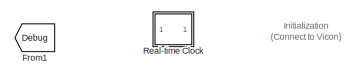
[diagram: root canvas - part 1/3, top center region]
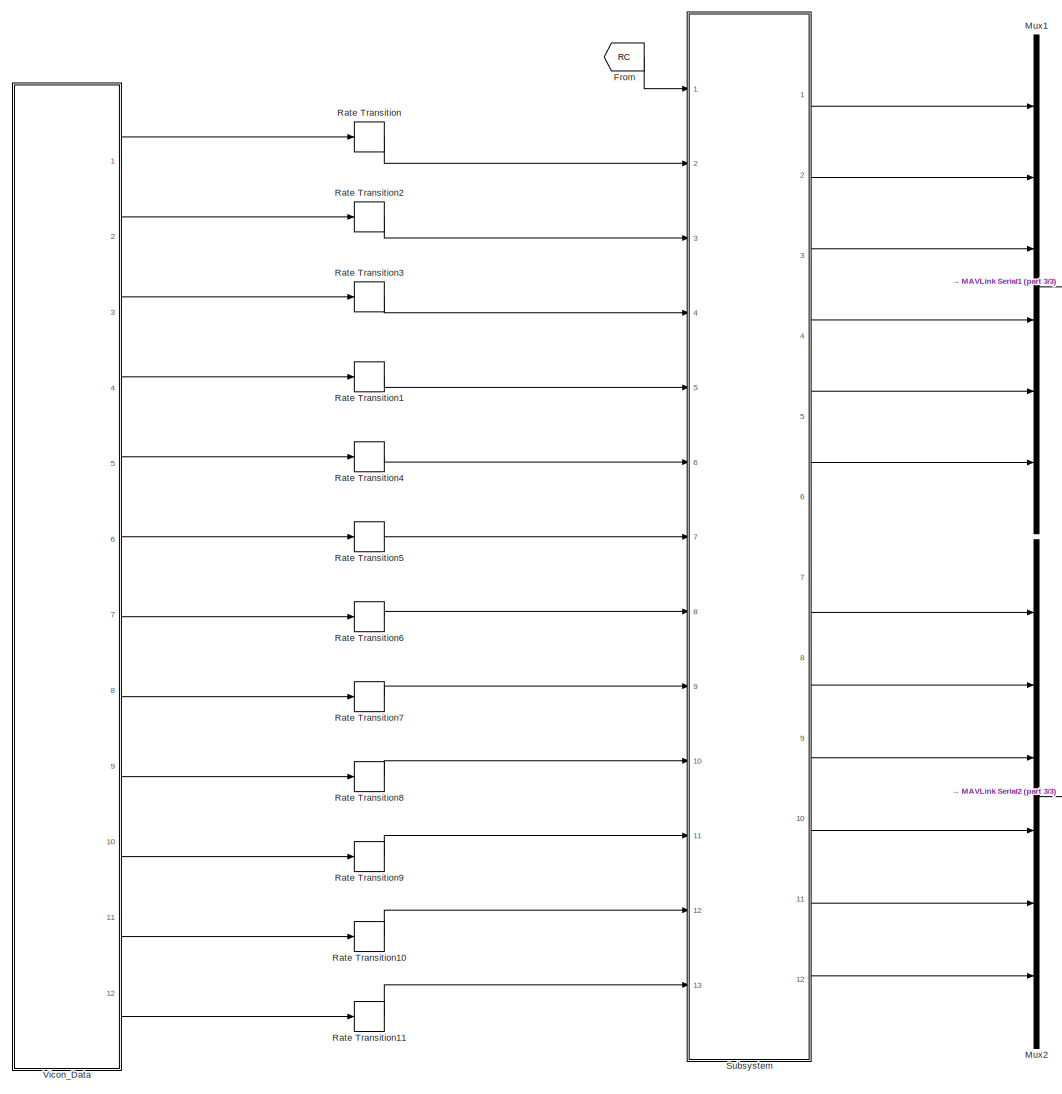
[diagram: root canvas - part 2/3, left side, full height]
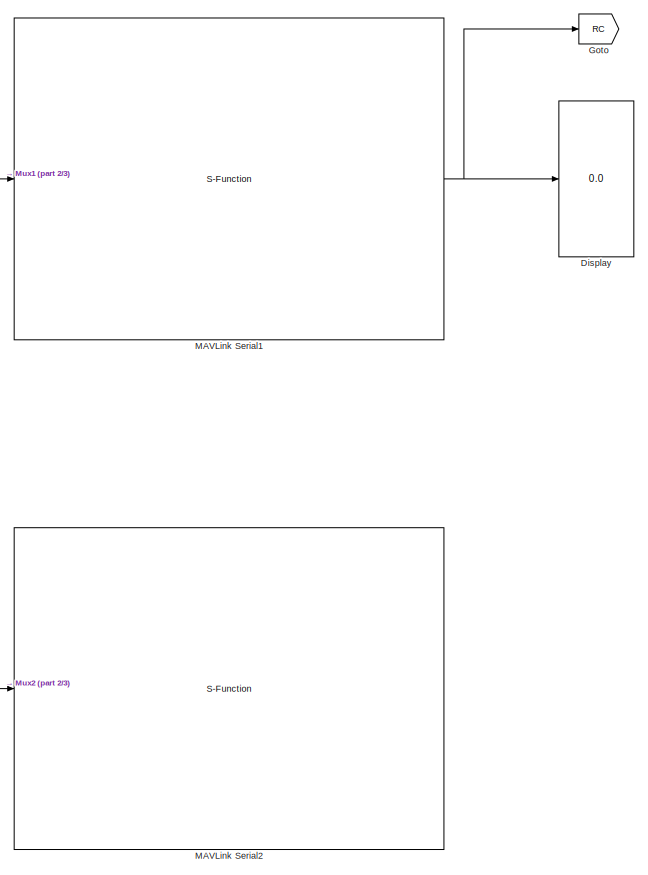
[diagram: root canvas - part 3/3, middle right region]
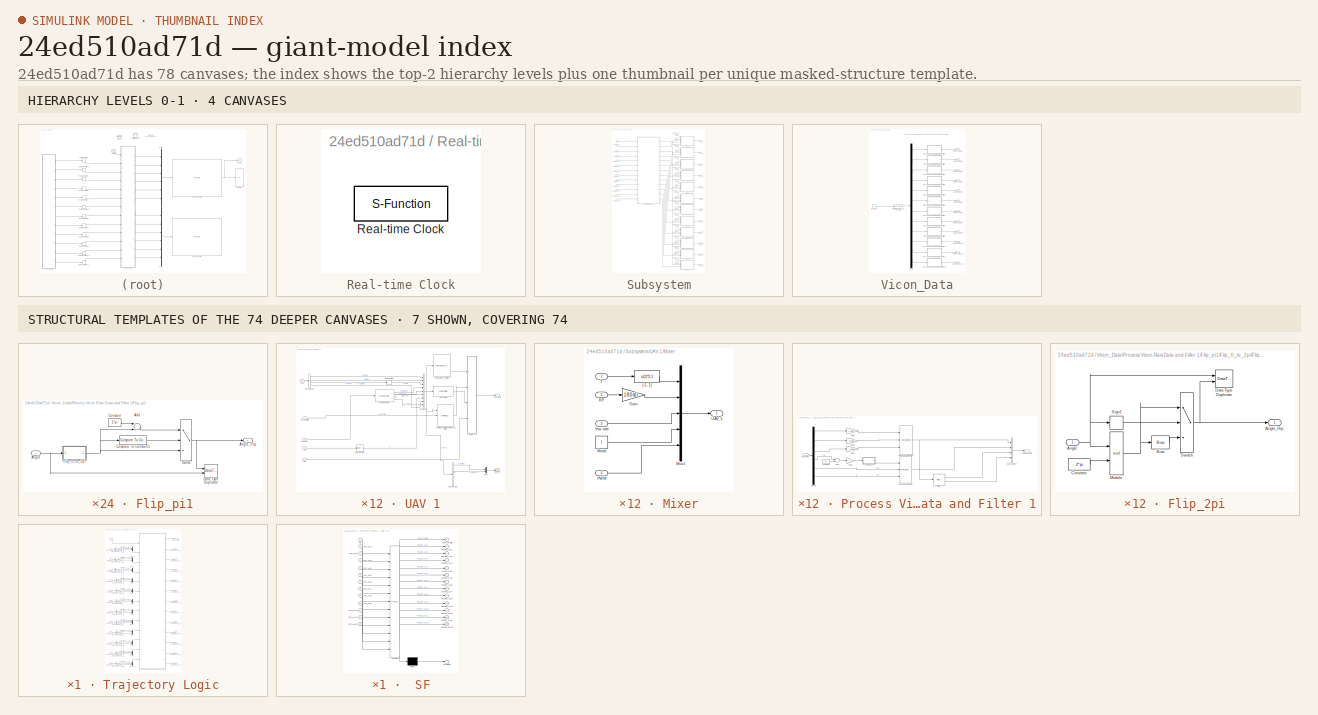
[diagram: thumbnail index - top-2 hierarchy levels (4 canvases) + 7 structural-template representatives of the remaining 74 canvases]
MODEL slx_24ed510ad71d
KIND model
CONFIG InitFcn = sample_time=0.005;%0.004;%0.0025;%0.02;\nsample_time_Vicon = 0.005;\nDeltaT = 0.02;\ng = 9.81;\nH0 = g%0.3165;\nKl = 1;\n\nQ6_mass = 0.8;\n\nQ6_Omega_r = 1.2; %for horizon ref\nQ6_Zeta_r = 0.707; %for horizon ref\nQ6_Omega_r_h = 2;%for vertical ref\nQ6_Zeta_r_h = 0.7; %for vertical ref\n\n\nQ6_Omega = 1.5; %for horizon control\nQ6_Zeta = 0.507; %for horizon control\nQ6_Omega_h= 2 %for vertical control\nQ6_Zeta_h = ...<+535ch>
BLOCK [Display] Display
  Decimation = 1
  Lockdown = off
  Ports = [1]
BLOCK [From] From
  GotoTag = RC
  TagVisibility = global
BLOCK [From] From1
  GotoTag = Debug
BLOCK [Goto] Goto
  GotoTag = RC
  TagVisibility = global
BLOCK [S-Function] MAVLink Serial1
  EnableBusSupport = off
  FunctionName = MAVLink_Interface_Airshow
  Parameters = COM_Port,Baud_Rate,MSG_INPUT,MSG_OUTPUT
  Ports = [1, 1]
BLOCK [S-Function] MAVLink Serial2
  EnableBusSupport = off
  FunctionName = MAVLink_Interface_Airshow
  Parameters = COM_Port,Baud_Rate,MSG_INPUT,MSG_OUTPUT
  Ports = [1, 1]
BLOCK [Mux] Mux1
  DisplayOption = bar
  Inputs = 6
  Ports = [6, 1]
BLOCK [Mux] Mux2
  DisplayOption = bar
  Inputs = 6
  Ports = [6, 1]
BLOCK [RateTransition] Rate Transition
  OutPortSampleTime = 0.02
BLOCK [RateTransition] Rate Transition1
  OutPortSampleTime = 0.02
BLOCK [RateTransition] Rate Transition10
  OutPortSampleTime = 0.02
BLOCK [RateTransition] Rate Transition11
  OutPortSampleTime = 0.02
BLOCK [RateTransition] Rate Transition2
  OutPortSampleTime = 0.02
BLOCK [RateTransition] Rate Transition3
  OutPortSampleTime = 0.02
BLOCK [RateTransition] Rate Transition4
  OutPortSampleTime = 0.02
BLOCK [RateTransition] Rate Transition5
  OutPortSampleTime = 0.02
BLOCK [RateTransition] Rate Transition6
  OutPortSampleTime = 0.02
BLOCK [RateTransition] Rate Transition7
  OutPortSampleTime = 0.02
BLOCK [RateTransition] Rate Transition8
  OutPortSampleTime = 0.02
BLOCK [RateTransition] Rate Transition9
  OutPortSampleTime = 0.02
BLOCK [SubSystem] Real-time Clock
  FunctionWithSeparateData = off
  MaskHideContents = off
  MinAlgLoopOccurrences = off
  Opaque = off
  Ports = []
  PropExecContextOutsideSubsystem = off
  RTWSystemCode = Auto
  RequestExecContextInheritance = off
  ShowPortLabels = none
BLOCK [S-Function] Real-time Clock/Real-time Clock
  EnableBusSupport = off
  FunctionName = rtclock
  Parameters = sample_time, tolerance
  Ports = []
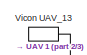
[diagram: Subsystem - part 1/3, top right region]
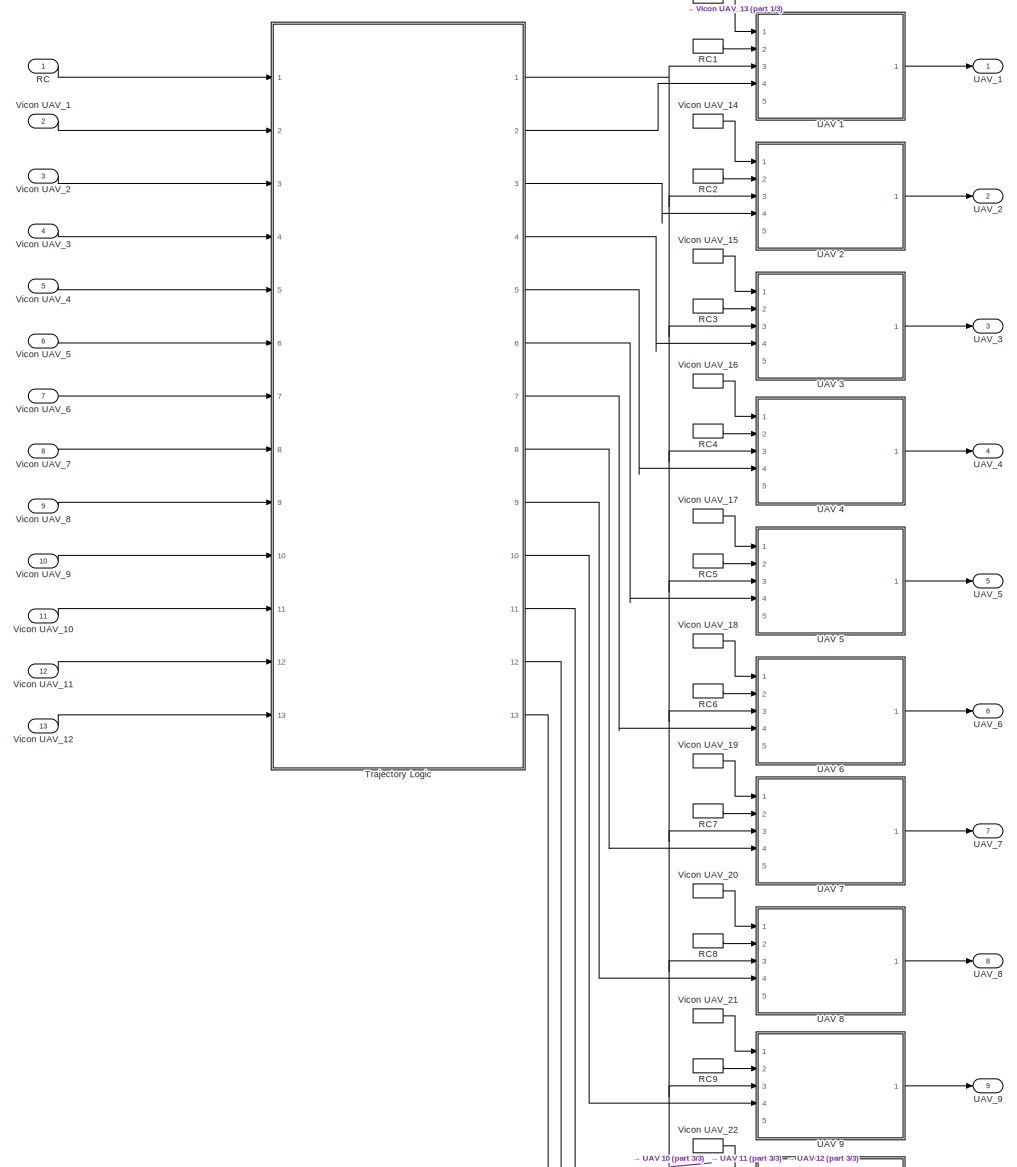
[diagram: Subsystem - part 2/3, most of the canvas]
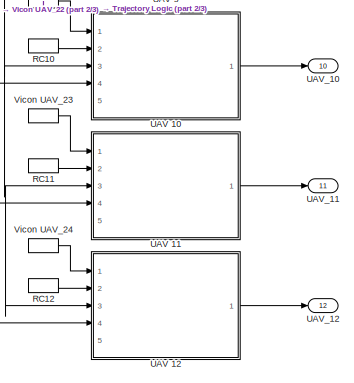
[diagram: Subsystem - part 3/3, bottom right region]
BLOCK [SubSystem] Subsystem
  FunctionWithSeparateData = off
  MaskHideContents = off
  MinAlgLoopOccurrences = off
  Opaque = off
  Ports = [13, 12]
  PropExecContextOutsideSubsystem = off
  RTWSystemCode = Auto
  RequestExecContextInheritance = off
BLOCK [Inport] Subsystem/RC
  IconDisplay = Port number
BLOCK [InportShadow] Subsystem/RC1
  IconDisplay = Port number
  LatchByDelayingOutsideSignal = off
  LatchInputForFeedbackSignals = off
BLOCK [InportShadow] Subsystem/RC10
  IconDisplay = Port number
  LatchByDelayingOutsideSignal = off
  LatchInputForFeedbackSignals = off
BLOCK [InportShadow] Subsystem/RC11
  IconDisplay = Port number
  LatchByDelayingOutsideSignal = off
  LatchInputForFeedbackSignals = off
BLOCK [InportShadow] Subsystem/RC12
  IconDisplay = Port number
  LatchByDelayingOutsideSignal = off
  LatchInputForFeedbackSignals = off
BLOCK [InportShadow] Subsystem/RC2
  IconDisplay = Port number
  LatchByDelayingOutsideSignal = off
  LatchInputForFeedbackSignals = off
BLOCK [InportShadow] Subsystem/RC3
  IconDisplay = Port number
  LatchByDelayingOutsideSignal = off
  LatchInputForFeedbackSignals = off
BLOCK [InportShadow] Subsystem/RC4
  IconDisplay = Port number
  LatchByDelayingOutsideSignal = off
  LatchInputForFeedbackSignals = off
BLOCK [InportShadow] Subsystem/RC5
  IconDisplay = Port number
  LatchByDelayingOutsideSignal = off
  LatchInputForFeedbackSignals = off
BLOCK [InportShadow] Subsystem/RC6
  IconDisplay = Port number
  LatchByDelayingOutsideSignal = off
  LatchInputForFeedbackSignals = off
BLOCK [InportShadow] Subsystem/RC7
  IconDisplay = Port number
  LatchByDelayingOutsideSignal = off
  LatchInputForFeedbackSignals = off
BLOCK [InportShadow] Subsystem/RC8
  IconDisplay = Port number
  LatchByDelayingOutsideSignal = off
  LatchInputForFeedbackSignals = off
BLOCK [InportShadow] Subsystem/RC9
  IconDisplay = Port number
  LatchByDelayingOutsideSignal = off
  LatchInputForFeedbackSignals = off
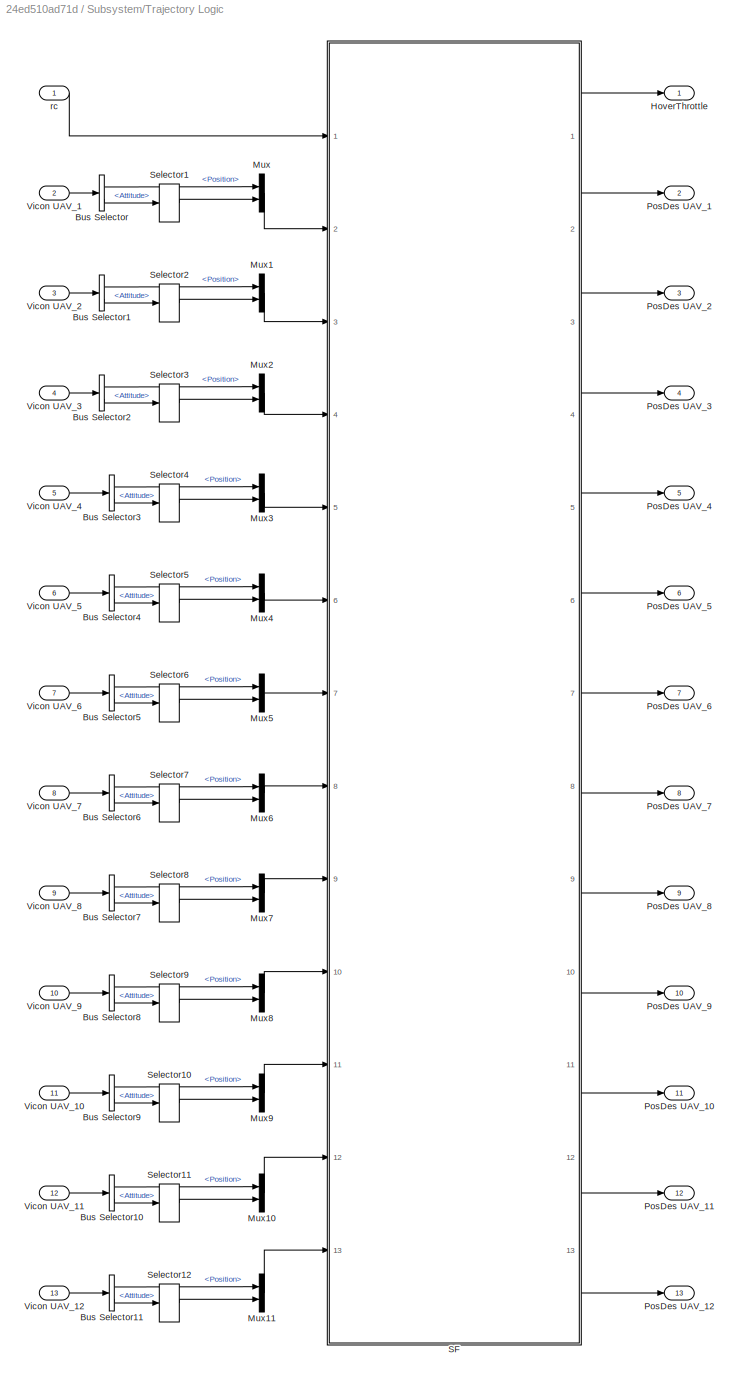
BLOCK [SubSystem] Subsystem/Trajectory Logic
  FunctionWithSeparateData = off
  MaskHideContents = off
  MinAlgLoopOccurrences = off
  Opaque = off
  Ports = [13, 13]
  PropExecContextOutsideSubsystem = off
  RTWSystemCode = Auto
  RequestExecContextInheritance = off
BLOCK [SubSystem] Subsystem/Trajectory Logic/ SF
  ErrorFcn = Stateflow.Translate.translate
  FunctionWithSeparateData = off
  MaskHideContents = off
  MinAlgLoopOccurrences = off
  Opaque = off
  PermitHierarchicalResolution = ExplicitOnly
  Ports = [13, 13]
  PropExecContextOutsideSubsystem = off
  RTWSystemCode = Auto
  RequestExecContextInheritance = off
  SFBlockType = Chart
  TreatAsAtomicUnit = on
BLOCK [Demux] Subsystem/Trajectory Logic/ SF/ Demux 
  Outputs = 1
  Ports = [1, 1]
BLOCK [S-Function] Subsystem/Trajectory Logic/ SF/ SFunction 
  EnableBusSupport = on
  FunctionName = sf_sfun
  Parameters = Circle_R,DeltaT,H0,Kl,MAX_Height,PI,omega_circle,omega_h
  PortCounts = [13 14]
  Ports = [13, 14]
  Tag = Stateflow S-Function Twelve_quad_formation_301114 7
BLOCK [Terminator] Subsystem/Trajectory Logic/ SF/ Terminator 
BLOCK [Outport] Subsystem/Trajectory Logic/ SF/HoverThrottle
  IconDisplay = Port number
BLOCK [Outport] Subsystem/Trajectory Logic/ SF/PosDes_UAV1
  IconDisplay = Port number
  Port = 2
BLOCK [Outport] Subsystem/Trajectory Logic/ SF/PosDes_UAV10
  IconDisplay = Port number
  Port = 11
BLOCK [Outport] Subsystem/Trajectory Logic/ SF/PosDes_UAV11
  IconDisplay = Port number
  Port = 12
BLOCK [Outport] Subsystem/Trajectory Logic/ SF/PosDes_UAV12
  IconDisplay = Port number
  Port = 13
BLOCK [Outport] Subsystem/Trajectory Logic/ SF/PosDes_UAV2
  IconDisplay = Port number
  Port = 3
BLOCK [Outport] Subsystem/Trajectory Logic/ SF/PosDes_UAV3
  IconDisplay = Port number
  Port = 4
BLOCK [Outport] Subsystem/Trajectory Logic/ SF/PosDes_UAV4
  IconDisplay = Port number
  Port = 5
BLOCK [Outport] Subsystem/Trajectory Logic/ SF/PosDes_UAV5
  IconDisplay = Port number
  Port = 6
BLOCK [Outport] Subsystem/Trajectory Logic/ SF/PosDes_UAV6
  IconDisplay = Port number
  Port = 7
BLOCK [Outport] Subsystem/Trajectory Logic/ SF/PosDes_UAV7
  IconDisplay = Port number
  Port = 8
BLOCK [Outport] Subsystem/Trajectory Logic/ SF/PosDes_UAV8
  IconDisplay = Port number
  Port = 9
BLOCK [Outport] Subsystem/Trajectory Logic/ SF/PosDes_UAV9
  IconDisplay = Port number
  Port = 10
BLOCK [Inport] Subsystem/Trajectory Logic/ SF/Pos_UAV1
  IconDisplay = Port number
  Port = 2
BLOCK [Inport] Subsystem/Trajectory Logic/ SF/Pos_UAV10
  IconDisplay = Port number
  Port = 11
BLOCK [Inport] Subsystem/Trajectory Logic/ SF/Pos_UAV11
  IconDisplay = Port number
  Port = 12
BLOCK [Inport] Subsystem/Trajectory Logic/ SF/Pos_UAV12
  IconDisplay = Port number
  Port = 13
BLOCK [Inport] Subsystem/Trajectory Logic/ SF/Pos_UAV2
  IconDisplay = Port number
  Port = 3
BLOCK [Inport] Subsystem/Trajectory Logic/ SF/Pos_UAV3
  IconDisplay = Port number
  Port = 4
BLOCK [Inport] Subsystem/Trajectory Logic/ SF/Pos_UAV4
  IconDisplay = Port number
  Port = 5
BLOCK [Inport] Subsystem/Trajectory Logic/ SF/Pos_UAV5
  IconDisplay = Port number
  Port = 6
BLOCK [Inport] Subsystem/Trajectory Logic/ SF/Pos_UAV6
  IconDisplay = Port number
  Port = 7
BLOCK [Inport] Subsystem/Trajectory Logic/ SF/Pos_UAV7
  IconDisplay = Port number
  Port = 8
BLOCK [Inport] Subsystem/Trajectory Logic/ SF/Pos_UAV8
  IconDisplay = Port number
  Port = 9
BLOCK [Inport] Subsystem/Trajectory Logic/ SF/Pos_UAV9
  IconDisplay = Port number
  Port = 10
BLOCK [Inport] Subsystem/Trajectory Logic/ SF/RC
  IconDisplay = Port number
BLOCK [BusSelector] Subsystem/Trajectory Logic/Bus Selector
  OutputSignals = Position,Attitude
  Ports = [1, 2]
BLOCK [BusSelector] Subsystem/Trajectory Logic/Bus Selector1
  OutputSignals = Position,Attitude
  Ports = [1, 2]
BLOCK [BusSelector] Subsystem/Trajectory Logic/Bus Selector10
  OutputSignals = Position,Attitude
  Ports = [1, 2]
BLOCK [BusSelector] Subsystem/Trajectory Logic/Bus Selector11
  OutputSignals = Position,Attitude
  Ports = [1, 2]
BLOCK [BusSelector] Subsystem/Trajectory Logic/Bus Selector2
  OutputSignals = Position,Attitude
  Ports = [1, 2]
BLOCK [BusSelector] Subsystem/Trajectory Logic/Bus Selector3
  OutputSignals = Position,Attitude
  Ports = [1, 2]
BLOCK [BusSelector] Subsystem/Trajectory Logic/Bus Selector4
  OutputSignals = Position,Attitude
  Ports = [1, 2]
BLOCK [BusSelector] Subsystem/Trajectory Logic/Bus Selector5
  OutputSignals = Position,Attitude
  Ports = [1, 2]
BLOCK [BusSelector] Subsystem/Trajectory Logic/Bus Selector6
  OutputSignals = Position,Attitude
  Ports = [1, 2]
BLOCK [BusSelector] Subsystem/Trajectory Logic/Bus Selector7
  OutputSignals = Position,Attitude
  Ports = [1, 2]
BLOCK [BusSelector] Subsystem/Trajectory Logic/Bus Selector8
  OutputSignals = Position,Attitude
  Ports = [1, 2]
BLOCK [BusSelector] Subsystem/Trajectory Logic/Bus Selector9
  OutputSignals = Position,Attitude
  Ports = [1, 2]
BLOCK [Outport] Subsystem/Trajectory Logic/HoverThrottle
  IconDisplay = Port number
BLOCK [Mux] Subsystem/Trajectory Logic/Mux
  DisplayOption = bar
  Inputs = 2
  Ports = [2, 1]
BLOCK [Mux] Subsystem/Trajectory Logic/Mux1
  DisplayOption = bar
  Inputs = 2
  Ports = [2, 1]
BLOCK [Mux] Subsystem/Trajectory Logic/Mux10
  DisplayOption = bar
  Inputs = 2
  Ports = [2, 1]
BLOCK [Mux] Subsystem/Trajectory Logic/Mux11
  DisplayOption = bar
  Inputs = 2
  Ports = [2, 1]
BLOCK [Mux] Subsystem/Trajectory Logic/Mux2
  DisplayOption = bar
  Inputs = 2
  Ports = [2, 1]
BLOCK [Mux] Subsystem/Trajectory Logic/Mux3
  DisplayOption = bar
  Inputs = 2
  Ports = [2, 1]
BLOCK [Mux] Subsystem/Trajectory Logic/Mux4
  DisplayOption = bar
  Inputs = 2
  Ports = [2, 1]
BLOCK [Mux] Subsystem/Trajectory Logic/Mux5
  DisplayOption = bar
  Inputs = 2
  Ports = [2, 1]
BLOCK [Mux] Subsystem/Trajectory Logic/Mux6
  DisplayOption = bar
  Inputs = 2
  Ports = [2, 1]
BLOCK [Mux] Subsystem/Trajectory Logic/Mux7
  DisplayOption = bar
  Inputs = 2
  Ports = [2, 1]
BLOCK [Mux] Subsystem/Trajectory Logic/Mux8
  DisplayOption = bar
  Inputs = 2
  Ports = [2, 1]
BLOCK [Mux] Subsystem/Trajectory Logic/Mux9
  DisplayOption = bar
  Inputs = 2
  Ports = [2, 1]
BLOCK [Outport] Subsystem/Trajectory Logic/PosDes UAV_1
  IconDisplay = Port number
  Port = 2
BLOCK [Outport] Subsystem/Trajectory Logic/PosDes UAV_10
  IconDisplay = Port number
  Port = 11
BLOCK [Outport] Subsystem/Trajectory Logic/PosDes UAV_11
  IconDisplay = Port number
  Port = 12
BLOCK [Outport] Subsystem/Trajectory Logic/PosDes UAV_12
  IconDisplay = Port number
  Port = 13
BLOCK [Outport] Subsystem/Trajectory Logic/PosDes UAV_2
  IconDisplay = Port number
  Port = 3
BLOCK [Outport] Subsystem/Trajectory Logic/PosDes UAV_3
  IconDisplay = Port number
  Port = 4
BLOCK [Outport] Subsystem/Trajectory Logic/PosDes UAV_4
  IconDisplay = Port number
  Port = 5
BLOCK [Outport] Subsystem/Trajectory Logic/PosDes UAV_5
  IconDisplay = Port number
  Port = 6
BLOCK [Outport] Subsystem/Trajectory Logic/PosDes UAV_6
  IconDisplay = Port number
  Port = 7
BLOCK [Outport] Subsystem/Trajectory Logic/PosDes UAV_7
  IconDisplay = Port number
  Port = 8
BLOCK [Outport] Subsystem/Trajectory Logic/PosDes UAV_8
  IconDisplay = Port number
  Port = 9
BLOCK [Outport] Subsystem/Trajectory Logic/PosDes UAV_9
  IconDisplay = Port number
  Port = 10
BLOCK [Selector] Subsystem/Trajectory Logic/Selector1
  IndexOptions = Index vector (dialog)
  Indices = [3]
  InputPortWidth = 3
  OutputSizes = 1
  Ports = [1, 1]
BLOCK [Selector] Subsystem/Trajectory Logic/Selector10
  IndexOptions = Index vector (dialog)
  Indices = [3]
  InputPortWidth = 3
  OutputSizes = 1
  Ports = [1, 1]
BLOCK [Selector] Subsystem/Trajectory Logic/Selector11
  IndexOptions = Index vector (dialog)
  Indices = [3]
  InputPortWidth = 3
  OutputSizes = 1
  Ports = [1, 1]
BLOCK [Selector] Subsystem/Trajectory Logic/Selector12
  IndexOptions = Index vector (dialog)
  Indices = [3]
  InputPortWidth = 3
  OutputSizes = 1
  Ports = [1, 1]
BLOCK [Selector] Subsystem/Trajectory Logic/Selector2
  IndexOptions = Index vector (dialog)
  Indices = [3]
  InputPortWidth = 3
  OutputSizes = 1
  Ports = [1, 1]
BLOCK [Selector] Subsystem/Trajectory Logic/Selector3
  IndexOptions = Index vector (dialog)
  Indices = [3]
  InputPortWidth = 3
  OutputSizes = 1
  Ports = [1, 1]
BLOCK [Selector] Subsystem/Trajectory Logic/Selector4
  IndexOptions = Index vector (dialog)
  Indices = [3]
  InputPortWidth = 3
  OutputSizes = 1
  Ports = [1, 1]
BLOCK [Selector] Subsystem/Trajectory Logic/Selector5
  IndexOptions = Index vector (dialog)
  Indices = [3]
  InputPortWidth = 3
  OutputSizes = 1
  Ports = [1, 1]
BLOCK [Selector] Subsystem/Trajectory Logic/Selector6
  IndexOptions = Index vector (dialog)
  Indices = [3]
  InputPortWidth = 3
  OutputSizes = 1
  Ports = [1, 1]
BLOCK [Selector] Subsystem/Trajectory Logic/Selector7
  IndexOptions = Index vector (dialog)
  Indices = [3]
  InputPortWidth = 3
  OutputSizes = 1
  Ports = [1, 1]
BLOCK [Selector] Subsystem/Trajectory Logic/Selector8
  IndexOptions = Index vector (dialog)
  Indices = [3]
  InputPortWidth = 3
  OutputSizes = 1
  Ports = [1, 1]
BLOCK [Selector] Subsystem/Trajectory Logic/Selector9
  IndexOptions = Index vector (dialog)
  Indices = [3]
  InputPortWidth = 3
  OutputSizes = 1
  Ports = [1, 1]
BLOCK [Inport] Subsystem/Trajectory Logic/Vicon UAV_1
  IconDisplay = Port number
  Port = 2
BLOCK [Inport] Subsystem/Trajectory Logic/Vicon UAV_10
  IconDisplay = Port number
  Port = 11
BLOCK [Inport] Subsystem/Trajectory Logic/Vicon UAV_11
  IconDisplay = Port number
  Port = 12
BLOCK [Inport] Subsystem/Trajectory Logic/Vicon UAV_12
  IconDisplay = Port number
  Port = 13
BLOCK [Inport] Subsystem/Trajectory Logic/Vicon UAV_2
  IconDisplay = Port number
  Port = 3
BLOCK [Inport] Subsystem/Trajectory Logic/Vicon UAV_3
  IconDisplay = Port number
  Port = 4
BLOCK [Inport] Subsystem/Trajectory Logic/Vicon UAV_4
  IconDisplay = Port number
  Port = 5
BLOCK [Inport] Subsystem/Trajectory Logic/Vicon UAV_5
  IconDisplay = Port number
  Port = 6
BLOCK [Inport] Subsystem/Trajectory Logic/Vicon UAV_6
  IconDisplay = Port number
  Port = 7
BLOCK [Inport] Subsystem/Trajectory Logic/Vicon UAV_7
  IconDisplay = Port number
  Port = 8
BLOCK [Inport] Subsystem/Trajectory Logic/Vicon UAV_8
  IconDisplay = Port number
  Port = 9
BLOCK [Inport] Subsystem/Trajectory Logic/Vicon UAV_9
  IconDisplay = Port number
  Port = 10
BLOCK [Inport] Subsystem/Trajectory Logic/rc
  IconDisplay = Port number
BLOCK [SubSystem] Subsystem/UAV 1
  FunctionWithSeparateData = off
  MaskHideContents = off
  MinAlgLoopOccurrences = off
  Opaque = off
  Ports = [5, 1]
  PropExecContextOutsideSubsystem = off
  RTWSystemCode = Auto
  RequestExecContextInheritance = off
BLOCK [Reference] Subsystem/UAV 1/Axi Vertical Controller AxiMotor + APC Prop  REF=X330_Control/Axi Vertical Controller
AxiMotor + APC Prop
  Omega_h = Q6_Omega_h
  PID_I_h = 1
  Ports = [3, 1]
  SourceBlock = X330_Control/Axi Vertical Controller\nAxiMotor + APC Prop
  SourceType = Unknown
  Zeta_h = Q6_Zeta_h
  mass = Q6_mass
BLOCK [BusCreator] Subsystem/UAV 1/Bus Creator
  DisplayOption = bar
  Inputs = 9
  Ports = [9, 1]
BLOCK [BusSelector] Subsystem/UAV 1/Bus Selector
  OutputSignals = Position,Attitude,Velocity,Acceleration
  Ports = [1, 4]
BLOCK [BusSelector] Subsystem/UAV 1/Bus Selector2
  OutputSignals = Position,Attitude,velocity,position des,attitude des,velocity des,rc,Acc des
  Ports = [1, 8]
BLOCK [Reference] Subsystem/UAV 1/Horizontal Pos controller  REF=X330_Control/Horizontal Pos controller
  Max_RP = 60
  Omega = Q6_Omega
  PID_i = 0.5
  Ports = [1, 1]
  SourceBlock = X330_Control/Horizontal Pos controller
  SourceType = Unknown
  Zeta = Q6_Zeta
BLOCK [Inport] Subsystem/UAV 1/Hover Throttle
  IconDisplay = Port number
  Port = 3
BLOCK [SubSystem] Subsystem/UAV 1/Mixer
  FunctionWithSeparateData = off
  MaskHideContents = off
  MinAlgLoopOccurrences = off
  Opaque = off
  Ports = [4, 1]
  PropExecContextOutsideSubsystem = off
  RTWSystemCode = Auto
  RequestExecContextInheritance = off
BLOCK [Gain] Subsystem/UAV 1/Mixer/Gain
  Gain = 180/pi
  OutDataTypeStr = Inherit: Inherit via internal rule
  ParamDataTypeStr = Inherit: Inherit via internal rule
  SaturateOnIntegerOverflow = off
BLOCK [Constant] Subsystem/UAV 1/Mixer/Mode
  SampleTime = 0.02
BLOCK [Mux] Subsystem/UAV 1/Mixer/Mux1
  DisplayOption = bar
  Inputs = 5
  Ports = [5, 1]
BLOCK [Inport] Subsystem/UAV 1/Mixer/PWM
  IconDisplay = Port number
  Port = 4
BLOCK [Inport] Subsystem/UAV 1/Mixer/RP
  IconDisplay = Port number
BLOCK [Inport] Subsystem/UAV 1/Mixer/T
  IconDisplay = Port number
  Port = 2
BLOCK [Outport] Subsystem/UAV 1/Mixer/UAV_1
  IconDisplay = Port number
BLOCK [Inport] Subsystem/UAV 1/Mixer/Yaw rate
  IconDisplay = Port number
  Port = 3
BLOCK [Fcn] Subsystem/UAV 1/Mixer/[-1, 1]
  Expr = u(1)*2-1
BLOCK [Mux] Subsystem/UAV 1/Mux3
  DisplayOption = bar
  Inputs = 2
  Ports = [2, 1]
BLOCK [Inport] Subsystem/UAV 1/PWM
  IconDisplay = Port number
  Port = 5
BLOCK [Inport] Subsystem/UAV 1/Pos Com
  IconDisplay = Port number
  Port = 4
BLOCK [Reference] Subsystem/UAV 1/PosRefSystem  REF=X330_Control/PosRefSystem
  Acc_Max = Q6_acc_max
  Acc_h_Max = Q6_acc_max_h
  Omega_h_r = Q6_Omega_r_h
  Omega_r = Q6_Omega_r
  Ports = [1, 4]
  SourceBlock = X330_Control/PosRefSystem
  SourceType = Unknown
  Zeta_h_r = Q6_Zeta_r_h
  Zeta_r = Q6_Zeta_r
BLOCK [Inport] Subsystem/UAV 1/RC
  IconDisplay = Port number
  Port = 2
BLOCK [RateTransition] Subsystem/UAV 1/Rate Transition
  OutPortSampleTime = 0.02
BLOCK [RateTransition] Subsystem/UAV 1/Rate Transition1
  OutPortSampleTime = 0.02
BLOCK [Outport] Subsystem/UAV 1/TRPY Cmd
  IconDisplay = Port number
BLOCK [Scope] Subsystem/UAV 1/UAV_1
  DataFormat = StructureWithTime
  Floating = off
  LimitDataPoints = off
  NumInputPorts = 1
  Ports = [1]
  SampleTime = 0
  ShowLegends = off
  TimeRange = 10
  YMax = 2
  YMin = -2.5
BLOCK [Inport] Subsystem/UAV 1/Vicon
  IconDisplay = Port number
BLOCK [Reference] Subsystem/UAV 1/Yaw Controller  REF=X330_Control/Yaw Controller
  Ports = [1, 1]
  SourceBlock = X330_Control/Yaw Controller
  SourceType = SubSystem
BLOCK [SubSystem] Subsystem/UAV 10
  FunctionWithSeparateData = off
  MaskHideContents = off
  MinAlgLoopOccurrences = off
  Opaque = off
  Ports = [5, 1]
  PropExecContextOutsideSubsystem = off
  RTWSystemCode = Auto
  RequestExecContextInheritance = off
BLOCK [Reference] Subsystem/UAV 10/Axi Vertical Controller AxiMotor + APC Prop  REF=X330_Control/Axi Vertical Controller
AxiMotor + APC Prop
  Omega_h = Q6_Omega_h
  PID_I_h = 1
  Ports = [3, 1]
  SourceBlock = X330_Control/Axi Vertical Controller\nAxiMotor + APC Prop
  SourceType = Unknown
  Zeta_h = Q6_Zeta_h
  mass = Q6_mass
BLOCK [BusCreator] Subsystem/UAV 10/Bus Creator
  DisplayOption = bar
  Inputs = 9
  Ports = [9, 1]
BLOCK [BusSelector] Subsystem/UAV 10/Bus Selector
  OutputSignals = Position,Attitude,Velocity,Acceleration
  Ports = [1, 4]
BLOCK [BusSelector] Subsystem/UAV 10/Bus Selector2
  OutputSignals = Position,Attitude,velocity,position des,attitude des,velocity des,rc,Acc des
  Ports = [1, 8]
BLOCK [Reference] Subsystem/UAV 10/Horizontal Pos controller  REF=X330_Control/Horizontal Pos controller
  Max_RP = 60
  Omega = Q6_Omega
  PID_i = 0.5
  Ports = [1, 1]
  SourceBlock = X330_Control/Horizontal Pos controller
  SourceType = Unknown
  Zeta = Q6_Zeta
BLOCK [Inport] Subsystem/UAV 10/Hover Throttle
  IconDisplay = Port number
  Port = 3
BLOCK [SubSystem] Subsystem/UAV 10/Mixer
  FunctionWithSeparateData = off
  MaskHideContents = off
  MinAlgLoopOccurrences = off
  Opaque = off
  Ports = [4, 1]
  PropExecContextOutsideSubsystem = off
  RTWSystemCode = Auto
  RequestExecContextInheritance = off
BLOCK [Gain] Subsystem/UAV 10/Mixer/Gain
  Gain = 180/pi
  OutDataTypeStr = Inherit: Inherit via internal rule
  ParamDataTypeStr = Inherit: Inherit via internal rule
  SaturateOnIntegerOverflow = off
BLOCK [Constant] Subsystem/UAV 10/Mixer/Mode
  SampleTime = 0.02
BLOCK [Mux] Subsystem/UAV 10/Mixer/Mux1
  DisplayOption = bar
  Inputs = 5
  Ports = [5, 1]
BLOCK [Inport] Subsystem/UAV 10/Mixer/PWM
  IconDisplay = Port number
  Port = 4
BLOCK [Inport] Subsystem/UAV 10/Mixer/RP
  IconDisplay = Port number
BLOCK [Inport] Subsystem/UAV 10/Mixer/T
  IconDisplay = Port number
  Port = 2
BLOCK [Outport] Subsystem/UAV 10/Mixer/UAV_1
  IconDisplay = Port number
BLOCK [Inport] Subsystem/UAV 10/Mixer/Yaw rate
  IconDisplay = Port number
  Port = 3
BLOCK [Fcn] Subsystem/UAV 10/Mixer/[-1, 1]
  Expr = u(1)*2-1
BLOCK [Mux] Subsystem/UAV 10/Mux3
  DisplayOption = bar
  Inputs = 2
  Ports = [2, 1]
BLOCK [Inport] Subsystem/UAV 10/PWM
  IconDisplay = Port number
  Port = 5
BLOCK [Inport] Subsystem/UAV 10/Pos Com
  IconDisplay = Port number
  Port = 4
BLOCK [Reference] Subsystem/UAV 10/PosRefSystem  REF=X330_Control/PosRefSystem
  Acc_Max = Q6_acc_max
  Acc_h_Max = Q6_acc_max_h
  Omega_h_r = Q6_Omega_r_h
  Omega_r = Q6_Omega_r
  Ports = [1, 4]
  SourceBlock = X330_Control/PosRefSystem
  SourceType = Unknown
  Zeta_h_r = Q6_Zeta_r_h
  Zeta_r = Q6_Zeta_r
BLOCK [Inport] Subsystem/UAV 10/RC
  IconDisplay = Port number
  Port = 2
BLOCK [RateTransition] Subsystem/UAV 10/Rate Transition
  OutPortSampleTime = 0.02
BLOCK [RateTransition] Subsystem/UAV 10/Rate Transition1
  OutPortSampleTime = 0.02
BLOCK [Outport] Subsystem/UAV 10/TRPY Cmd
  IconDisplay = Port number
BLOCK [Scope] Subsystem/UAV 10/UAV_4
  DataFormat = StructureWithTime
  Floating = off
  LimitDataPoints = off
  NumInputPorts = 1
  Ports = [1]
  SampleTime = 0
  SaveName = ScopeData1
  ShowLegends = off
  TimeRange = 10
  YMax = 2.25
  YMin = -2.75
BLOCK [Inport] Subsystem/UAV 10/Vicon
  IconDisplay = Port number
BLOCK [Reference] Subsystem/UAV 10/Yaw Controller  REF=X330_Control/Yaw Controller
  Ports = [1, 1]
  SourceBlock = X330_Control/Yaw Controller
  SourceType = SubSystem
BLOCK [SubSystem] Subsystem/UAV 11
  FunctionWithSeparateData = off
  MaskHideContents = off
  MinAlgLoopOccurrences = off
  Opaque = off
  Ports = [5, 1]
  PropExecContextOutsideSubsystem = off
  RTWSystemCode = Auto
  RequestExecContextInheritance = off
BLOCK [Reference] Subsystem/UAV 11/Axi Vertical Controller AxiMotor + APC Prop  REF=X330_Control/Axi Vertical Controller
AxiMotor + APC Prop
  Omega_h = Q6_Omega_h
  PID_I_h = 1
  Ports = [3, 1]
  SourceBlock = X330_Control/Axi Vertical Controller\nAxiMotor + APC Prop
  SourceType = Unknown
  Zeta_h = Q6_Zeta_h
  mass = Q6_mass
BLOCK [BusCreator] Subsystem/UAV 11/Bus Creator
  DisplayOption = bar
  Inputs = 9
  Ports = [9, 1]
BLOCK [BusSelector] Subsystem/UAV 11/Bus Selector
  OutputSignals = Position,Attitude,Velocity,Acceleration
  Ports = [1, 4]
BLOCK [BusSelector] Subsystem/UAV 11/Bus Selector2
  OutputSignals = Position,Attitude,velocity,position des,attitude des,velocity des,rc,Acc des
  Ports = [1, 8]
BLOCK [Reference] Subsystem/UAV 11/Horizontal Pos controller  REF=X330_Control/Horizontal Pos controller
  Max_RP = 60
  Omega = Q6_Omega
  PID_i = 0.5
  Ports = [1, 1]
  SourceBlock = X330_Control/Horizontal Pos controller
  SourceType = Unknown
  Zeta = Q6_Zeta
BLOCK [Inport] Subsystem/UAV 11/Hover Throttle
  IconDisplay = Port number
  Port = 3
BLOCK [SubSystem] Subsystem/UAV 11/Mixer
  FunctionWithSeparateData = off
  MaskHideContents = off
  MinAlgLoopOccurrences = off
  Opaque = off
  Ports = [4, 1]
  PropExecContextOutsideSubsystem = off
  RTWSystemCode = Auto
  RequestExecContextInheritance = off
BLOCK [Gain] Subsystem/UAV 11/Mixer/Gain
  Gain = 180/pi
  OutDataTypeStr = Inherit: Inherit via internal rule
  ParamDataTypeStr = Inherit: Inherit via internal rule
  SaturateOnIntegerOverflow = off
BLOCK [Constant] Subsystem/UAV 11/Mixer/Mode
  SampleTime = 0.02
BLOCK [Mux] Subsystem/UAV 11/Mixer/Mux1
  DisplayOption = bar
  Inputs = 5
  Ports = [5, 1]
BLOCK [Inport] Subsystem/UAV 11/Mixer/PWM
  IconDisplay = Port number
  Port = 4
BLOCK [Inport] Subsystem/UAV 11/Mixer/RP
  IconDisplay = Port number
BLOCK [Inport] Subsystem/UAV 11/Mixer/T
  IconDisplay = Port number
  Port = 2
BLOCK [Outport] Subsystem/UAV 11/Mixer/UAV_1
  IconDisplay = Port number
BLOCK [Inport] Subsystem/UAV 11/Mixer/Yaw rate
  IconDisplay = Port number
  Port = 3
BLOCK [Fcn] Subsystem/UAV 11/Mixer/[-1, 1]
  Expr = u(1)*2-1
BLOCK [Mux] Subsystem/UAV 11/Mux3
  DisplayOption = bar
  Inputs = 2
  Ports = [2, 1]
BLOCK [Inport] Subsystem/UAV 11/PWM
  IconDisplay = Port number
  Port = 5
BLOCK [Inport] Subsystem/UAV 11/Pos Com
  IconDisplay = Port number
  Port = 4
BLOCK [Reference] Subsystem/UAV 11/PosRefSystem  REF=X330_Control/PosRefSystem
  Acc_Max = Q6_acc_max
  Acc_h_Max = Q6_acc_max_h
  Omega_h_r = Q6_Omega_r_h
  Omega_r = Q6_Omega_r
  Ports = [1, 4]
  SourceBlock = X330_Control/PosRefSystem
  SourceType = Unknown
  Zeta_h_r = Q6_Zeta_r_h
  Zeta_r = Q6_Zeta_r
BLOCK [Inport] Subsystem/UAV 11/RC
  IconDisplay = Port number
  Port = 2
BLOCK [RateTransition] Subsystem/UAV 11/Rate Transition
  OutPortSampleTime = 0.02
BLOCK [RateTransition] Subsystem/UAV 11/Rate Transition1
  OutPortSampleTime = 0.02
BLOCK [Outport] Subsystem/UAV 11/TRPY Cmd
  IconDisplay = Port number
BLOCK [Scope] Subsystem/UAV 11/UAV_4
  DataFormat = StructureWithTime
  Floating = off
  LimitDataPoints = off
  NumInputPorts = 1
  Ports = [1]
  SampleTime = 0
  SaveName = ScopeData1
  ShowLegends = off
  TimeRange = 10
  YMax = 2.25
  YMin = -2.75
BLOCK [Inport] Subsystem/UAV 11/Vicon
  IconDisplay = Port number
BLOCK [Reference] Subsystem/UAV 11/Yaw Controller  REF=X330_Control/Yaw Controller
  Ports = [1, 1]
  SourceBlock = X330_Control/Yaw Controller
  SourceType = SubSystem
BLOCK [SubSystem] Subsystem/UAV 12
  FunctionWithSeparateData = off
  MaskHideContents = off
  MinAlgLoopOccurrences = off
  Opaque = off
  Ports = [5, 1]
  PropExecContextOutsideSubsystem = off
  RTWSystemCode = Auto
  RequestExecContextInheritance = off
BLOCK [Reference] Subsystem/UAV 12/Axi Vertical Controller AxiMotor + APC Prop  REF=X330_Control/Axi Vertical Controller
AxiMotor + APC Prop
  Omega_h = Q6_Omega_h
  PID_I_h = 1
  Ports = [3, 1]
  SourceBlock = X330_Control/Axi Vertical Controller\nAxiMotor + APC Prop
  SourceType = Unknown
  Zeta_h = Q6_Zeta_h
  mass = Q6_mass
BLOCK [BusCreator] Subsystem/UAV 12/Bus Creator
  DisplayOption = bar
  Inputs = 9
  Ports = [9, 1]
BLOCK [BusSelector] Subsystem/UAV 12/Bus Selector
  OutputSignals = Position,Attitude,Velocity,Acceleration
  Ports = [1, 4]
BLOCK [BusSelector] Subsystem/UAV 12/Bus Selector2
  OutputSignals = Position,Attitude,velocity,position des,attitude des,velocity des,rc,Acc des
  Ports = [1, 8]
BLOCK [Reference] Subsystem/UAV 12/Horizontal Pos controller  REF=X330_Control/Horizontal Pos controller
  Max_RP = 60
  Omega = Q6_Omega
  PID_i = 0.5
  Ports = [1, 1]
  SourceBlock = X330_Control/Horizontal Pos controller
  SourceType = Unknown
  Zeta = Q6_Zeta
BLOCK [Inport] Subsystem/UAV 12/Hover Throttle
  IconDisplay = Port number
  Port = 3
BLOCK [SubSystem] Subsystem/UAV 12/Mixer
  FunctionWithSeparateData = off
  MaskHideContents = off
  MinAlgLoopOccurrences = off
  Opaque = off
  Ports = [4, 1]
  PropExecContextOutsideSubsystem = off
  RTWSystemCode = Auto
  RequestExecContextInheritance = off
BLOCK [Gain] Subsystem/UAV 12/Mixer/Gain
  Gain = 180/pi
  OutDataTypeStr = Inherit: Inherit via internal rule
  ParamDataTypeStr = Inherit: Inherit via internal rule
  SaturateOnIntegerOverflow = off
BLOCK [Constant] Subsystem/UAV 12/Mixer/Mode
  SampleTime = 0.02
BLOCK [Mux] Subsystem/UAV 12/Mixer/Mux1
  DisplayOption = bar
  Inputs = 5
  Ports = [5, 1]
BLOCK [Inport] Subsystem/UAV 12/Mixer/PWM
  IconDisplay = Port number
  Port = 4
BLOCK [Inport] Subsystem/UAV 12/Mixer/RP
  IconDisplay = Port number
BLOCK [Inport] Subsystem/UAV 12/Mixer/T
  IconDisplay = Port number
  Port = 2
BLOCK [Outport] Subsystem/UAV 12/Mixer/UAV_1
  IconDisplay = Port number
BLOCK [Inport] Subsystem/UAV 12/Mixer/Yaw rate
  IconDisplay = Port number
  Port = 3
BLOCK [Fcn] Subsystem/UAV 12/Mixer/[-1, 1]
  Expr = u(1)*2-1
BLOCK [Mux] Subsystem/UAV 12/Mux3
  DisplayOption = bar
  Inputs = 2
  Ports = [2, 1]
BLOCK [Inport] Subsystem/UAV 12/PWM
  IconDisplay = Port number
  Port = 5
BLOCK [Inport] Subsystem/UAV 12/Pos Com
  IconDisplay = Port number
  Port = 4
BLOCK [Reference] Subsystem/UAV 12/PosRefSystem  REF=X330_Control/PosRefSystem
  Acc_Max = Q6_acc_max
  Acc_h_Max = Q6_acc_max_h
  Omega_h_r = Q6_Omega_r_h
  Omega_r = Q6_Omega_r
  Ports = [1, 4]
  SourceBlock = X330_Control/PosRefSystem
  SourceType = Unknown
  Zeta_h_r = Q6_Zeta_r_h
  Zeta_r = Q6_Zeta_r
BLOCK [Inport] Subsystem/UAV 12/RC
  IconDisplay = Port number
  Port = 2
BLOCK [RateTransition] Subsystem/UAV 12/Rate Transition
  OutPortSampleTime = 0.02
BLOCK [RateTransition] Subsystem/UAV 12/Rate Transition1
  OutPortSampleTime = 0.02
BLOCK [Outport] Subsystem/UAV 12/TRPY Cmd
  IconDisplay = Port number
BLOCK [Scope] Subsystem/UAV 12/UAV_4
  DataFormat = StructureWithTime
  Floating = off
  LimitDataPoints = off
  NumInputPorts = 1
  Ports = [1]
  SampleTime = 0
  SaveName = ScopeData1
  ShowLegends = off
  TimeRange = 10
  YMax = 2.25
  YMin = -2.75
BLOCK [Inport] Subsystem/UAV 12/Vicon
  IconDisplay = Port number
BLOCK [Reference] Subsystem/UAV 12/Yaw Controller  REF=X330_Control/Yaw Controller
  Ports = [1, 1]
  SourceBlock = X330_Control/Yaw Controller
  SourceType = SubSystem
BLOCK [SubSystem] Subsystem/UAV 2
  FunctionWithSeparateData = off
  MaskHideContents = off
  MinAlgLoopOccurrences = off
  Opaque = off
  Ports = [5, 1]
  PropExecContextOutsideSubsystem = off
  RTWSystemCode = Auto
  RequestExecContextInheritance = off
BLOCK [Reference] Subsystem/UAV 2/Axi Vertical Controller AxiMotor + APC Prop  REF=X330_Control/Axi Vertical Controller
AxiMotor + APC Prop
  Omega_h = Q6_Omega_h
  PID_I_h = 1
  Ports = [3, 1]
  SourceBlock = X330_Control/Axi Vertical Controller\nAxiMotor + APC Prop
  SourceType = Unknown
  Zeta_h = Q6_Zeta_h
  mass = Q6_mass
BLOCK [BusCreator] Subsystem/UAV 2/Bus Creator
  DisplayOption = bar
  Inputs = 9
  Ports = [9, 1]
BLOCK [BusSelector] Subsystem/UAV 2/Bus Selector
  OutputSignals = Position,Attitude,Velocity,Acceleration
  Ports = [1, 4]
BLOCK [BusSelector] Subsystem/UAV 2/Bus Selector2
  OutputSignals = Position,Attitude,velocity,position des,attitude des,velocity des,rc,Acc des
  Ports = [1, 8]
BLOCK [Reference] Subsystem/UAV 2/Horizontal Pos controller  REF=X330_Control/Horizontal Pos controller
  Max_RP = 60
  Omega = Q6_Omega
  PID_i = 0.5
  Ports = [1, 1]
  SourceBlock = X330_Control/Horizontal Pos controller
  SourceType = Unknown
  Zeta = Q6_Zeta
BLOCK [Inport] Subsystem/UAV 2/Hover Throttle
  IconDisplay = Port number
  Port = 3
BLOCK [SubSystem] Subsystem/UAV 2/Mixer
  FunctionWithSeparateData = off
  MaskHideContents = off
  MinAlgLoopOccurrences = off
  Opaque = off
  Ports = [4, 1]
  PropExecContextOutsideSubsystem = off
  RTWSystemCode = Auto
  RequestExecContextInheritance = off
BLOCK [Gain] Subsystem/UAV 2/Mixer/Gain
  Gain = 180/pi
  OutDataTypeStr = Inherit: Inherit via internal rule
  ParamDataTypeStr = Inherit: Inherit via internal rule
  SaturateOnIntegerOverflow = off
BLOCK [Constant] Subsystem/UAV 2/Mixer/Mode
  SampleTime = 0.02
BLOCK [Mux] Subsystem/UAV 2/Mixer/Mux1
  DisplayOption = bar
  Inputs = 5
  Ports = [5, 1]
BLOCK [Inport] Subsystem/UAV 2/Mixer/PWM
  IconDisplay = Port number
  Port = 4
BLOCK [Inport] Subsystem/UAV 2/Mixer/RP
  IconDisplay = Port number
BLOCK [Inport] Subsystem/UAV 2/Mixer/T
  IconDisplay = Port number
  Port = 2
BLOCK [Outport] Subsystem/UAV 2/Mixer/UAV_1
  IconDisplay = Port number
BLOCK [Inport] Subsystem/UAV 2/Mixer/Yaw rate
  IconDisplay = Port number
  Port = 3
BLOCK [Fcn] Subsystem/UAV 2/Mixer/[-1, 1]
  Expr = u(1)*2-1
BLOCK [Mux] Subsystem/UAV 2/Mux3
  DisplayOption = bar
  Inputs = 2
  Ports = [2, 1]
BLOCK [Inport] Subsystem/UAV 2/PWM
  IconDisplay = Port number
  Port = 5
BLOCK [Inport] Subsystem/UAV 2/Pos Com
  IconDisplay = Port number
  Port = 4
BLOCK [Reference] Subsystem/UAV 2/PosRefSystem  REF=X330_Control/PosRefSystem
  Acc_Max = Q6_acc_max
  Acc_h_Max = Q6_acc_max_h
  Omega_h_r = Q6_Omega_r_h
  Omega_r = Q6_Omega_r
  Ports = [1, 4]
  SourceBlock = X330_Control/PosRefSystem
  SourceType = Unknown
  Zeta_h_r = Q6_Zeta_r_h
  Zeta_r = Q6_Zeta_r
BLOCK [Inport] Subsystem/UAV 2/RC
  IconDisplay = Port number
  Port = 2
BLOCK [RateTransition] Subsystem/UAV 2/Rate Transition
  OutPortSampleTime = 0.02
BLOCK [RateTransition] Subsystem/UAV 2/Rate Transition1
  OutPortSampleTime = 0.02
BLOCK [Outport] Subsystem/UAV 2/TRPY Cmd
  IconDisplay = Port number
BLOCK [Scope] Subsystem/UAV 2/UAV_2
  DataFormat = StructureWithTime
  Floating = off
  LimitDataPoints = off
  NumInputPorts = 1
  Ports = [1]
  SampleTime = 0
  SaveName = ScopeData2
  ShowLegends = off
  TimeRange = 10
  YMax = 0.1
  YMin = -0.55
BLOCK [Inport] Subsystem/UAV 2/Vicon
  IconDisplay = Port number
BLOCK [Reference] Subsystem/UAV 2/Yaw Controller  REF=X330_Control/Yaw Controller
  Ports = [1, 1]
  SourceBlock = X330_Control/Yaw Controller
  SourceType = SubSystem
BLOCK [SubSystem] Subsystem/UAV 3
  FunctionWithSeparateData = off
  MaskHideContents = off
  MinAlgLoopOccurrences = off
  Opaque = off
  Ports = [5, 1]
  PropExecContextOutsideSubsystem = off
  RTWSystemCode = Auto
  RequestExecContextInheritance = off
BLOCK [Reference] Subsystem/UAV 3/Axi Vertical Controller AxiMotor + APC Prop  REF=X330_Control/Axi Vertical Controller
AxiMotor + APC Prop
  Omega_h = Q6_Omega_h
  PID_I_h = 1
  Ports = [3, 1]
  SourceBlock = X330_Control/Axi Vertical Controller\nAxiMotor + APC Prop
  SourceType = Unknown
  Zeta_h = Q6_Zeta_h
  mass = Q6_mass
BLOCK [BusCreator] Subsystem/UAV 3/Bus Creator
  DisplayOption = bar
  Inputs = 9
  Ports = [9, 1]
BLOCK [BusSelector] Subsystem/UAV 3/Bus Selector
  OutputSignals = Position,Attitude,Velocity,Acceleration
  Ports = [1, 4]
BLOCK [BusSelector] Subsystem/UAV 3/Bus Selector2
  OutputSignals = Position,Attitude,velocity,position des,attitude des,velocity des,rc,Acc des
  Ports = [1, 8]
BLOCK [Reference] Subsystem/UAV 3/Horizontal Pos controller  REF=X330_Control/Horizontal Pos controller
  Max_RP = 60
  Omega = Q6_Omega
  PID_i = 0.5
  Ports = [1, 1]
  SourceBlock = X330_Control/Horizontal Pos controller
  SourceType = Unknown
  Zeta = Q6_Zeta
BLOCK [Inport] Subsystem/UAV 3/Hover Throttle
  IconDisplay = Port number
  Port = 3
BLOCK [SubSystem] Subsystem/UAV 3/Mixer
  FunctionWithSeparateData = off
  MaskHideContents = off
  MinAlgLoopOccurrences = off
  Opaque = off
  Ports = [4, 1]
  PropExecContextOutsideSubsystem = off
  RTWSystemCode = Auto
  RequestExecContextInheritance = off
BLOCK [Gain] Subsystem/UAV 3/Mixer/Gain
  Gain = 180/pi
  OutDataTypeStr = Inherit: Inherit via internal rule
  ParamDataTypeStr = Inherit: Inherit via internal rule
  SaturateOnIntegerOverflow = off
BLOCK [Constant] Subsystem/UAV 3/Mixer/Mode
  SampleTime = 0.02
BLOCK [Mux] Subsystem/UAV 3/Mixer/Mux1
  DisplayOption = bar
  Inputs = 5
  Ports = [5, 1]
BLOCK [Inport] Subsystem/UAV 3/Mixer/PWM
  IconDisplay = Port number
  Port = 4
BLOCK [Inport] Subsystem/UAV 3/Mixer/RP
  IconDisplay = Port number
BLOCK [Inport] Subsystem/UAV 3/Mixer/T
  IconDisplay = Port number
  Port = 2
BLOCK [Outport] Subsystem/UAV 3/Mixer/UAV_1
  IconDisplay = Port number
BLOCK [Inport] Subsystem/UAV 3/Mixer/Yaw rate
  IconDisplay = Port number
  Port = 3
BLOCK [Fcn] Subsystem/UAV 3/Mixer/[-1, 1]
  Expr = u(1)*2-1
BLOCK [Mux] Subsystem/UAV 3/Mux3
  DisplayOption = bar
  Inputs = 2
  Ports = [2, 1]
BLOCK [Inport] Subsystem/UAV 3/PWM
  IconDisplay = Port number
  Port = 5
BLOCK [Inport] Subsystem/UAV 3/Pos Com
  IconDisplay = Port number
  Port = 4
BLOCK [Reference] Subsystem/UAV 3/PosRefSystem  REF=X330_Control/PosRefSystem
  Acc_Max = Q6_acc_max
  Acc_h_Max = Q6_acc_max_h
  Omega_h_r = Q6_Omega_r_h
  Omega_r = Q6_Omega_r
  Ports = [1, 4]
  SourceBlock = X330_Control/PosRefSystem
  SourceType = Unknown
  Zeta_h_r = Q6_Zeta_r_h
  Zeta_r = Q6_Zeta_r
BLOCK [Inport] Subsystem/UAV 3/RC
  IconDisplay = Port number
  Port = 2
BLOCK [RateTransition] Subsystem/UAV 3/Rate Transition
  OutPortSampleTime = 0.02
BLOCK [RateTransition] Subsystem/UAV 3/Rate Transition1
  OutPortSampleTime = 0.02
BLOCK [Outport] Subsystem/UAV 3/TRPY Cmd
  IconDisplay = Port number
BLOCK [Scope] Subsystem/UAV 3/UAV_3
  DataFormat = StructureWithTime
  Floating = off
  LimitDataPoints = off
  NumInputPorts = 1
  Ports = [1]
  SampleTime = 0
  SaveName = ScopeData1
  ShowLegends = off
  TimeRange = 10
  YMax = 0
  YMin = -1.7
BLOCK [Inport] Subsystem/UAV 3/Vicon
  IconDisplay = Port number
BLOCK [Reference] Subsystem/UAV 3/Yaw Controller  REF=X330_Control/Yaw Controller
  Ports = [1, 1]
  SourceBlock = X330_Control/Yaw Controller
  SourceType = SubSystem
BLOCK [SubSystem] Subsystem/UAV 4
  FunctionWithSeparateData = off
  MaskHideContents = off
  MinAlgLoopOccurrences = off
  Opaque = off
  Ports = [5, 1]
  PropExecContextOutsideSubsystem = off
  RTWSystemCode = Auto
  RequestExecContextInheritance = off
BLOCK [Reference] Subsystem/UAV 4/Axi Vertical Controller AxiMotor + APC Prop  REF=X330_Control/Axi Vertical Controller
AxiMotor + APC Prop
  Omega_h = Q6_Omega_h
  PID_I_h = 1
  Ports = [3, 1]
  SourceBlock = X330_Control/Axi Vertical Controller\nAxiMotor + APC Prop
  SourceType = Unknown
  Zeta_h = Q6_Zeta_h
  mass = Q6_mass
BLOCK [BusCreator] Subsystem/UAV 4/Bus Creator
  DisplayOption = bar
  Inputs = 9
  Ports = [9, 1]
BLOCK [BusSelector] Subsystem/UAV 4/Bus Selector
  OutputSignals = Position,Attitude,Velocity,Acceleration
  Ports = [1, 4]
BLOCK [BusSelector] Subsystem/UAV 4/Bus Selector2
  OutputSignals = Position,Attitude,velocity,position des,attitude des,velocity des,rc,Acc des
  Ports = [1, 8]
BLOCK [Reference] Subsystem/UAV 4/Horizontal Pos controller  REF=X330_Control/Horizontal Pos controller
  Max_RP = 60
  Omega = Q6_Omega
  PID_i = 0.5
  Ports = [1, 1]
  SourceBlock = X330_Control/Horizontal Pos controller
  SourceType = Unknown
  Zeta = Q6_Zeta
BLOCK [Inport] Subsystem/UAV 4/Hover Throttle
  IconDisplay = Port number
  Port = 3
BLOCK [SubSystem] Subsystem/UAV 4/Mixer
  FunctionWithSeparateData = off
  MaskHideContents = off
  MinAlgLoopOccurrences = off
  Opaque = off
  Ports = [4, 1]
  PropExecContextOutsideSubsystem = off
  RTWSystemCode = Auto
  RequestExecContextInheritance = off
BLOCK [Gain] Subsystem/UAV 4/Mixer/Gain
  Gain = 180/pi
  OutDataTypeStr = Inherit: Inherit via internal rule
  ParamDataTypeStr = Inherit: Inherit via internal rule
  SaturateOnIntegerOverflow = off
BLOCK [Constant] Subsystem/UAV 4/Mixer/Mode
  SampleTime = 0.02
BLOCK [Mux] Subsystem/UAV 4/Mixer/Mux1
  DisplayOption = bar
  Inputs = 5
  Ports = [5, 1]
BLOCK [Inport] Subsystem/UAV 4/Mixer/PWM
  IconDisplay = Port number
  Port = 4
BLOCK [Inport] Subsystem/UAV 4/Mixer/RP
  IconDisplay = Port number
BLOCK [Inport] Subsystem/UAV 4/Mixer/T
  IconDisplay = Port number
  Port = 2
BLOCK [Outport] Subsystem/UAV 4/Mixer/UAV_1
  IconDisplay = Port number
BLOCK [Inport] Subsystem/UAV 4/Mixer/Yaw rate
  IconDisplay = Port number
  Port = 3
BLOCK [Fcn] Subsystem/UAV 4/Mixer/[-1, 1]
  Expr = u(1)*2-1
BLOCK [Mux] Subsystem/UAV 4/Mux3
  DisplayOption = bar
  Inputs = 2
  Ports = [2, 1]
BLOCK [Inport] Subsystem/UAV 4/PWM
  IconDisplay = Port number
  Port = 5
BLOCK [Inport] Subsystem/UAV 4/Pos Com
  IconDisplay = Port number
  Port = 4
BLOCK [Reference] Subsystem/UAV 4/PosRefSystem  REF=X330_Control/PosRefSystem
  Acc_Max = Q6_acc_max
  Acc_h_Max = Q6_acc_max_h
  Omega_h_r = Q6_Omega_r_h
  Omega_r = Q6_Omega_r
  Ports = [1, 4]
  SourceBlock = X330_Control/PosRefSystem
  SourceType = Unknown
  Zeta_h_r = Q6_Zeta_r_h
  Zeta_r = Q6_Zeta_r
BLOCK [Inport] Subsystem/UAV 4/RC
  IconDisplay = Port number
  Port = 2
BLOCK [RateTransition] Subsystem/UAV 4/Rate Transition
  OutPortSampleTime = 0.02
BLOCK [RateTransition] Subsystem/UAV 4/Rate Transition1
  OutPortSampleTime = 0.02
BLOCK [Outport] Subsystem/UAV 4/TRPY Cmd
  IconDisplay = Port number
BLOCK [Scope] Subsystem/UAV 4/UAV_4
  DataFormat = StructureWithTime
  Floating = off
  LimitDataPoints = off
  NumInputPorts = 1
  Ports = [1]
  SampleTime = 0
  SaveName = ScopeData1
  ShowLegends = off
  TimeRange = 10
  YMax = 2.25
  YMin = -2.75
BLOCK [Inport] Subsystem/UAV 4/Vicon
  IconDisplay = Port number
BLOCK [Reference] Subsystem/UAV 4/Yaw Controller  REF=X330_Control/Yaw Controller
  Ports = [1, 1]
  SourceBlock = X330_Control/Yaw Controller
  SourceType = SubSystem
BLOCK [SubSystem] Subsystem/UAV 5
  FunctionWithSeparateData = off
  MaskHideContents = off
  MinAlgLoopOccurrences = off
  Opaque = off
  Ports = [5, 1]
  PropExecContextOutsideSubsystem = off
  RTWSystemCode = Auto
  RequestExecContextInheritance = off
BLOCK [Reference] Subsystem/UAV 5/Axi Vertical Controller AxiMotor + APC Prop  REF=X330_Control/Axi Vertical Controller
AxiMotor + APC Prop
  Omega_h = Q6_Omega_h
  PID_I_h = 1
  Ports = [3, 1]
  SourceBlock = X330_Control/Axi Vertical Controller\nAxiMotor + APC Prop
  SourceType = Unknown
  Zeta_h = Q6_Zeta_h
  mass = Q6_mass
BLOCK [BusCreator] Subsystem/UAV 5/Bus Creator
  DisplayOption = bar
  Inputs = 9
  Ports = [9, 1]
BLOCK [BusSelector] Subsystem/UAV 5/Bus Selector
  OutputSignals = Position,Attitude,Velocity,Acceleration
  Ports = [1, 4]
BLOCK [BusSelector] Subsystem/UAV 5/Bus Selector2
  OutputSignals = Position,Attitude,velocity,position des,attitude des,velocity des,rc,Acc des
  Ports = [1, 8]
BLOCK [Reference] Subsystem/UAV 5/Horizontal Pos controller  REF=X330_Control/Horizontal Pos controller
  Max_RP = 60
  Omega = Q6_Omega
  PID_i = 0.5
  Ports = [1, 1]
  SourceBlock = X330_Control/Horizontal Pos controller
  SourceType = Unknown
  Zeta = Q6_Zeta
BLOCK [Inport] Subsystem/UAV 5/Hover Throttle
  IconDisplay = Port number
  Port = 3
BLOCK [SubSystem] Subsystem/UAV 5/Mixer
  FunctionWithSeparateData = off
  MaskHideContents = off
  MinAlgLoopOccurrences = off
  Opaque = off
  Ports = [4, 1]
  PropExecContextOutsideSubsystem = off
  RTWSystemCode = Auto
  RequestExecContextInheritance = off
BLOCK [Gain] Subsystem/UAV 5/Mixer/Gain
  Gain = 180/pi
  OutDataTypeStr = Inherit: Inherit via internal rule
  ParamDataTypeStr = Inherit: Inherit via internal rule
  SaturateOnIntegerOverflow = off
BLOCK [Constant] Subsystem/UAV 5/Mixer/Mode
  SampleTime = 0.02
BLOCK [Mux] Subsystem/UAV 5/Mixer/Mux1
  DisplayOption = bar
  Inputs = 5
  Ports = [5, 1]
BLOCK [Inport] Subsystem/UAV 5/Mixer/PWM
  IconDisplay = Port number
  Port = 4
BLOCK [Inport] Subsystem/UAV 5/Mixer/RP
  IconDisplay = Port number
BLOCK [Inport] Subsystem/UAV 5/Mixer/T
  IconDisplay = Port number
  Port = 2
BLOCK [Outport] Subsystem/UAV 5/Mixer/UAV_1
  IconDisplay = Port number
BLOCK [Inport] Subsystem/UAV 5/Mixer/Yaw rate
  IconDisplay = Port number
  Port = 3
BLOCK [Fcn] Subsystem/UAV 5/Mixer/[-1, 1]
  Expr = u(1)*2-1
BLOCK [Mux] Subsystem/UAV 5/Mux3
  DisplayOption = bar
  Inputs = 2
  Ports = [2, 1]
BLOCK [Inport] Subsystem/UAV 5/PWM
  IconDisplay = Port number
  Port = 5
BLOCK [Inport] Subsystem/UAV 5/Pos Com
  IconDisplay = Port number
  Port = 4
BLOCK [Reference] Subsystem/UAV 5/PosRefSystem  REF=X330_Control/PosRefSystem
  Acc_Max = Q6_acc_max
  Acc_h_Max = Q6_acc_max_h
  Omega_h_r = Q6_Omega_r_h
  Omega_r = Q6_Omega_r
  Ports = [1, 4]
  SourceBlock = X330_Control/PosRefSystem
  SourceType = Unknown
  Zeta_h_r = Q6_Zeta_r_h
  Zeta_r = Q6_Zeta_r
BLOCK [Inport] Subsystem/UAV 5/RC
  IconDisplay = Port number
  Port = 2
BLOCK [RateTransition] Subsystem/UAV 5/Rate Transition
  OutPortSampleTime = 0.02
BLOCK [RateTransition] Subsystem/UAV 5/Rate Transition1
  OutPortSampleTime = 0.02
BLOCK [Outport] Subsystem/UAV 5/TRPY Cmd
  IconDisplay = Port number
BLOCK [Scope] Subsystem/UAV 5/UAV_4
  DataFormat = StructureWithTime
  Floating = off
  LimitDataPoints = off
  NumInputPorts = 1
  Ports = [1]
  SampleTime = 0
  SaveName = ScopeData1
  ShowLegends = off
  TimeRange = 10
  YMax = 2.25
  YMin = -2.75
BLOCK [Inport] Subsystem/UAV 5/Vicon
  IconDisplay = Port number
BLOCK [Reference] Subsystem/UAV 5/Yaw Controller  REF=X330_Control/Yaw Controller
  Ports = [1, 1]
  SourceBlock = X330_Control/Yaw Controller
  SourceType = SubSystem
BLOCK [SubSystem] Subsystem/UAV 6
  FunctionWithSeparateData = off
  MaskHideContents = off
  MinAlgLoopOccurrences = off
  Opaque = off
  Ports = [5, 1]
  PropExecContextOutsideSubsystem = off
  RTWSystemCode = Auto
  RequestExecContextInheritance = off
BLOCK [Reference] Subsystem/UAV 6/Axi Vertical Controller AxiMotor + APC Prop  REF=X330_Control/Axi Vertical Controller
AxiMotor + APC Prop
  Omega_h = Q6_Omega_h
  PID_I_h = 1
  Ports = [3, 1]
  SourceBlock = X330_Control/Axi Vertical Controller\nAxiMotor + APC Prop
  SourceType = Unknown
  Zeta_h = Q6_Zeta_h
  mass = Q6_mass
BLOCK [BusCreator] Subsystem/UAV 6/Bus Creator
  DisplayOption = bar
  Inputs = 9
  Ports = [9, 1]
BLOCK [BusSelector] Subsystem/UAV 6/Bus Selector
  OutputSignals = Position,Attitude,Velocity,Acceleration
  Ports = [1, 4]
BLOCK [BusSelector] Subsystem/UAV 6/Bus Selector2
  OutputSignals = Position,Attitude,velocity,position des,attitude des,velocity des,rc,Acc des
  Ports = [1, 8]
BLOCK [Reference] Subsystem/UAV 6/Horizontal Pos controller  REF=X330_Control/Horizontal Pos controller
  Max_RP = 60
  Omega = Q6_Omega
  PID_i = 0.5
  Ports = [1, 1]
  SourceBlock = X330_Control/Horizontal Pos controller
  SourceType = Unknown
  Zeta = Q6_Zeta
BLOCK [Inport] Subsystem/UAV 6/Hover Throttle
  IconDisplay = Port number
  Port = 3
BLOCK [SubSystem] Subsystem/UAV 6/Mixer
  FunctionWithSeparateData = off
  MaskHideContents = off
  MinAlgLoopOccurrences = off
  Opaque = off
  Ports = [4, 1]
  PropExecContextOutsideSubsystem = off
  RTWSystemCode = Auto
  RequestExecContextInheritance = off
BLOCK [Gain] Subsystem/UAV 6/Mixer/Gain
  Gain = 180/pi
  OutDataTypeStr = Inherit: Inherit via internal rule
  ParamDataTypeStr = Inherit: Inherit via internal rule
  SaturateOnIntegerOverflow = off
BLOCK [Constant] Subsystem/UAV 6/Mixer/Mode
  SampleTime = 0.02
BLOCK [Mux] Subsystem/UAV 6/Mixer/Mux1
  DisplayOption = bar
  Inputs = 5
  Ports = [5, 1]
BLOCK [Inport] Subsystem/UAV 6/Mixer/PWM
  IconDisplay = Port number
  Port = 4
BLOCK [Inport] Subsystem/UAV 6/Mixer/RP
  IconDisplay = Port number
BLOCK [Inport] Subsystem/UAV 6/Mixer/T
  IconDisplay = Port number
  Port = 2
BLOCK [Outport] Subsystem/UAV 6/Mixer/UAV_1
  IconDisplay = Port number
BLOCK [Inport] Subsystem/UAV 6/Mixer/Yaw rate
  IconDisplay = Port number
  Port = 3
BLOCK [Fcn] Subsystem/UAV 6/Mixer/[-1, 1]
  Expr = u(1)*2-1
BLOCK [Mux] Subsystem/UAV 6/Mux3
  DisplayOption = bar
  Inputs = 2
  Ports = [2, 1]
BLOCK [Inport] Subsystem/UAV 6/PWM
  IconDisplay = Port number
  Port = 5
BLOCK [Inport] Subsystem/UAV 6/Pos Com
  IconDisplay = Port number
  Port = 4
BLOCK [Reference] Subsystem/UAV 6/PosRefSystem  REF=X330_Control/PosRefSystem
  Acc_Max = Q6_acc_max
  Acc_h_Max = Q6_acc_max_h
  Omega_h_r = Q6_Omega_r_h
  Omega_r = Q6_Omega_r
  Ports = [1, 4]
  SourceBlock = X330_Control/PosRefSystem
  SourceType = Unknown
  Zeta_h_r = Q6_Zeta_r_h
  Zeta_r = Q6_Zeta_r
BLOCK [Inport] Subsystem/UAV 6/RC
  IconDisplay = Port number
  Port = 2
BLOCK [RateTransition] Subsystem/UAV 6/Rate Transition
  OutPortSampleTime = 0.02
BLOCK [RateTransition] Subsystem/UAV 6/Rate Transition1
  OutPortSampleTime = 0.02
BLOCK [Outport] Subsystem/UAV 6/TRPY Cmd
  IconDisplay = Port number
BLOCK [Scope] Subsystem/UAV 6/UAV_4
  DataFormat = StructureWithTime
  Floating = off
  LimitDataPoints = off
  NumInputPorts = 1
  Ports = [1]
  SampleTime = 0
  SaveName = ScopeData1
  ShowLegends = off
  TimeRange = 10
  YMax = 2.25
  YMin = -2.75
BLOCK [Inport] Subsystem/UAV 6/Vicon
  IconDisplay = Port number
BLOCK [Reference] Subsystem/UAV 6/Yaw Controller  REF=X330_Control/Yaw Controller
  Ports = [1, 1]
  SourceBlock = X330_Control/Yaw Controller
  SourceType = SubSystem
BLOCK [SubSystem] Subsystem/UAV 7
  FunctionWithSeparateData = off
  MaskHideContents = off
  MinAlgLoopOccurrences = off
  Opaque = off
  Ports = [5, 1]
  PropExecContextOutsideSubsystem = off
  RTWSystemCode = Auto
  RequestExecContextInheritance = off
BLOCK [Reference] Subsystem/UAV 7/Axi Vertical Controller AxiMotor + APC Prop  REF=X330_Control/Axi Vertical Controller
AxiMotor + APC Prop
  Omega_h = Q6_Omega_h
  PID_I_h = 1
  Ports = [3, 1]
  SourceBlock = X330_Control/Axi Vertical Controller\nAxiMotor + APC Prop
  SourceType = Unknown
  Zeta_h = Q6_Zeta_h
  mass = Q6_mass
BLOCK [BusCreator] Subsystem/UAV 7/Bus Creator
  DisplayOption = bar
  Inputs = 9
  Ports = [9, 1]
BLOCK [BusSelector] Subsystem/UAV 7/Bus Selector
  OutputSignals = Position,Attitude,Velocity,Acceleration
  Ports = [1, 4]
BLOCK [BusSelector] Subsystem/UAV 7/Bus Selector2
  OutputSignals = Position,Attitude,velocity,position des,attitude des,velocity des,rc,Acc des
  Ports = [1, 8]
BLOCK [Reference] Subsystem/UAV 7/Horizontal Pos controller  REF=X330_Control/Horizontal Pos controller
  Max_RP = 60
  Omega = Q6_Omega
  PID_i = 0.5
  Ports = [1, 1]
  SourceBlock = X330_Control/Horizontal Pos controller
  SourceType = Unknown
  Zeta = Q6_Zeta
BLOCK [Inport] Subsystem/UAV 7/Hover Throttle
  IconDisplay = Port number
  Port = 3
BLOCK [SubSystem] Subsystem/UAV 7/Mixer
  FunctionWithSeparateData = off
  MaskHideContents = off
  MinAlgLoopOccurrences = off
  Opaque = off
  Ports = [4, 1]
  PropExecContextOutsideSubsystem = off
  RTWSystemCode = Auto
  RequestExecContextInheritance = off
BLOCK [Gain] Subsystem/UAV 7/Mixer/Gain
  Gain = 180/pi
  OutDataTypeStr = Inherit: Inherit via internal rule
  ParamDataTypeStr = Inherit: Inherit via internal rule
  SaturateOnIntegerOverflow = off
BLOCK [Constant] Subsystem/UAV 7/Mixer/Mode
  SampleTime = 0.02
BLOCK [Mux] Subsystem/UAV 7/Mixer/Mux1
  DisplayOption = bar
  Inputs = 5
  Ports = [5, 1]
BLOCK [Inport] Subsystem/UAV 7/Mixer/PWM
  IconDisplay = Port number
  Port = 4
BLOCK [Inport] Subsystem/UAV 7/Mixer/RP
  IconDisplay = Port number
BLOCK [Inport] Subsystem/UAV 7/Mixer/T
  IconDisplay = Port number
  Port = 2
BLOCK [Outport] Subsystem/UAV 7/Mixer/UAV_1
  IconDisplay = Port number
BLOCK [Inport] Subsystem/UAV 7/Mixer/Yaw rate
  IconDisplay = Port number
  Port = 3
BLOCK [Fcn] Subsystem/UAV 7/Mixer/[-1, 1]
  Expr = u(1)*2-1
BLOCK [Mux] Subsystem/UAV 7/Mux3
  DisplayOption = bar
  Inputs = 2
  Ports = [2, 1]
BLOCK [Inport] Subsystem/UAV 7/PWM
  IconDisplay = Port number
  Port = 5
BLOCK [Inport] Subsystem/UAV 7/Pos Com
  IconDisplay = Port number
  Port = 4
BLOCK [Reference] Subsystem/UAV 7/PosRefSystem  REF=X330_Control/PosRefSystem
  Acc_Max = Q6_acc_max
  Acc_h_Max = Q6_acc_max_h
  Omega_h_r = Q6_Omega_r_h
  Omega_r = Q6_Omega_r
  Ports = [1, 4]
  SourceBlock = X330_Control/PosRefSystem
  SourceType = Unknown
  Zeta_h_r = Q6_Zeta_r_h
  Zeta_r = Q6_Zeta_r
BLOCK [Inport] Subsystem/UAV 7/RC
  IconDisplay = Port number
  Port = 2
BLOCK [RateTransition] Subsystem/UAV 7/Rate Transition
  OutPortSampleTime = 0.02
BLOCK [RateTransition] Subsystem/UAV 7/Rate Transition1
  OutPortSampleTime = 0.02
BLOCK [Outport] Subsystem/UAV 7/TRPY Cmd
  IconDisplay = Port number
BLOCK [Scope] Subsystem/UAV 7/UAV_1
  DataFormat = StructureWithTime
  Floating = off
  LimitDataPoints = off
  NumInputPorts = 1
  Ports = [1]
  SampleTime = 0
  ShowLegends = off
  TimeRange = 10
  YMax = 2
  YMin = -2.5
BLOCK [Inport] Subsystem/UAV 7/Vicon
  IconDisplay = Port number
BLOCK [Reference] Subsystem/UAV 7/Yaw Controller  REF=X330_Control/Yaw Controller
  Ports = [1, 1]
  SourceBlock = X330_Control/Yaw Controller
  SourceType = SubSystem
BLOCK [SubSystem] Subsystem/UAV 8
  FunctionWithSeparateData = off
  MaskHideContents = off
  MinAlgLoopOccurrences = off
  Opaque = off
  Ports = [5, 1]
  PropExecContextOutsideSubsystem = off
  RTWSystemCode = Auto
  RequestExecContextInheritance = off
BLOCK [Reference] Subsystem/UAV 8/Axi Vertical Controller AxiMotor + APC Prop  REF=X330_Control/Axi Vertical Controller
AxiMotor + APC Prop
  Omega_h = Q6_Omega_h
  PID_I_h = 1
  Ports = [3, 1]
  SourceBlock = X330_Control/Axi Vertical Controller\nAxiMotor + APC Prop
  SourceType = Unknown
  Zeta_h = Q6_Zeta_h
  mass = Q6_mass
BLOCK [BusCreator] Subsystem/UAV 8/Bus Creator
  DisplayOption = bar
  Inputs = 9
  Ports = [9, 1]
BLOCK [BusSelector] Subsystem/UAV 8/Bus Selector
  OutputSignals = Position,Attitude,Velocity,Acceleration
  Ports = [1, 4]
BLOCK [BusSelector] Subsystem/UAV 8/Bus Selector2
  OutputSignals = Position,Attitude,velocity,position des,attitude des,velocity des,rc,Acc des
  Ports = [1, 8]
BLOCK [Reference] Subsystem/UAV 8/Horizontal Pos controller  REF=X330_Control/Horizontal Pos controller
  Max_RP = 60
  Omega = Q6_Omega
  PID_i = 0.5
  Ports = [1, 1]
  SourceBlock = X330_Control/Horizontal Pos controller
  SourceType = Unknown
  Zeta = Q6_Zeta
BLOCK [Inport] Subsystem/UAV 8/Hover Throttle
  IconDisplay = Port number
  Port = 3
BLOCK [SubSystem] Subsystem/UAV 8/Mixer
  FunctionWithSeparateData = off
  MaskHideContents = off
  MinAlgLoopOccurrences = off
  Opaque = off
  Ports = [4, 1]
  PropExecContextOutsideSubsystem = off
  RTWSystemCode = Auto
  RequestExecContextInheritance = off
BLOCK [Gain] Subsystem/UAV 8/Mixer/Gain
  Gain = 180/pi
  OutDataTypeStr = Inherit: Inherit via internal rule
  ParamDataTypeStr = Inherit: Inherit via internal rule
  SaturateOnIntegerOverflow = off
BLOCK [Constant] Subsystem/UAV 8/Mixer/Mode
  SampleTime = 0.02
BLOCK [Mux] Subsystem/UAV 8/Mixer/Mux1
  DisplayOption = bar
  Inputs = 5
  Ports = [5, 1]
BLOCK [Inport] Subsystem/UAV 8/Mixer/PWM
  IconDisplay = Port number
  Port = 4
BLOCK [Inport] Subsystem/UAV 8/Mixer/RP
  IconDisplay = Port number
BLOCK [Inport] Subsystem/UAV 8/Mixer/T
  IconDisplay = Port number
  Port = 2
BLOCK [Outport] Subsystem/UAV 8/Mixer/UAV_1
  IconDisplay = Port number
BLOCK [Inport] Subsystem/UAV 8/Mixer/Yaw rate
  IconDisplay = Port number
  Port = 3
BLOCK [Fcn] Subsystem/UAV 8/Mixer/[-1, 1]
  Expr = u(1)*2-1
BLOCK [Mux] Subsystem/UAV 8/Mux3
  DisplayOption = bar
  Inputs = 2
  Ports = [2, 1]
BLOCK [Inport] Subsystem/UAV 8/PWM
  IconDisplay = Port number
  Port = 5
BLOCK [Inport] Subsystem/UAV 8/Pos Com
  IconDisplay = Port number
  Port = 4
BLOCK [Reference] Subsystem/UAV 8/PosRefSystem  REF=X330_Control/PosRefSystem
  Acc_Max = Q6_acc_max
  Acc_h_Max = Q6_acc_max_h
  Omega_h_r = Q6_Omega_r_h
  Omega_r = Q6_Omega_r
  Ports = [1, 4]
  SourceBlock = X330_Control/PosRefSystem
  SourceType = Unknown
  Zeta_h_r = Q6_Zeta_r_h
  Zeta_r = Q6_Zeta_r
BLOCK [Inport] Subsystem/UAV 8/RC
  IconDisplay = Port number
  Port = 2
BLOCK [RateTransition] Subsystem/UAV 8/Rate Transition
  OutPortSampleTime = 0.02
BLOCK [RateTransition] Subsystem/UAV 8/Rate Transition1
  OutPortSampleTime = 0.02
BLOCK [Outport] Subsystem/UAV 8/TRPY Cmd
  IconDisplay = Port number
BLOCK [Scope] Subsystem/UAV 8/UAV_2
  DataFormat = StructureWithTime
  Floating = off
  LimitDataPoints = off
  NumInputPorts = 1
  Ports = [1]
  SampleTime = 0
  SaveName = ScopeData2
  ShowLegends = off
  TimeRange = 10
  YMax = 0.1
  YMin = -0.55
BLOCK [Inport] Subsystem/UAV 8/Vicon
  IconDisplay = Port number
BLOCK [Reference] Subsystem/UAV 8/Yaw Controller  REF=X330_Control/Yaw Controller
  Ports = [1, 1]
  SourceBlock = X330_Control/Yaw Controller
  SourceType = SubSystem
BLOCK [SubSystem] Subsystem/UAV 9
  FunctionWithSeparateData = off
  MaskHideContents = off
  MinAlgLoopOccurrences = off
  Opaque = off
  Ports = [5, 1]
  PropExecContextOutsideSubsystem = off
  RTWSystemCode = Auto
  RequestExecContextInheritance = off
BLOCK [Reference] Subsystem/UAV 9/Axi Vertical Controller AxiMotor + APC Prop  REF=X330_Control/Axi Vertical Controller
AxiMotor + APC Prop
  Omega_h = Q6_Omega_h
  PID_I_h = 1
  Ports = [3, 1]
  SourceBlock = X330_Control/Axi Vertical Controller\nAxiMotor + APC Prop
  SourceType = Unknown
  Zeta_h = Q6_Zeta_h
  mass = Q6_mass
BLOCK [BusCreator] Subsystem/UAV 9/Bus Creator
  DisplayOption = bar
  Inputs = 9
  Ports = [9, 1]
BLOCK [BusSelector] Subsystem/UAV 9/Bus Selector
  OutputSignals = Position,Attitude,Velocity,Acceleration
  Ports = [1, 4]
BLOCK [BusSelector] Subsystem/UAV 9/Bus Selector2
  OutputSignals = Position,Attitude,velocity,position des,attitude des,velocity des,rc,Acc des
  Ports = [1, 8]
BLOCK [Reference] Subsystem/UAV 9/Horizontal Pos controller  REF=X330_Control/Horizontal Pos controller
  Max_RP = 60
  Omega = Q6_Omega
  PID_i = 0.5
  Ports = [1, 1]
  SourceBlock = X330_Control/Horizontal Pos controller
  SourceType = Unknown
  Zeta = Q6_Zeta
BLOCK [Inport] Subsystem/UAV 9/Hover Throttle
  IconDisplay = Port number
  Port = 3
BLOCK [SubSystem] Subsystem/UAV 9/Mixer
  FunctionWithSeparateData = off
  MaskHideContents = off
  MinAlgLoopOccurrences = off
  Opaque = off
  Ports = [4, 1]
  PropExecContextOutsideSubsystem = off
  RTWSystemCode = Auto
  RequestExecContextInheritance = off
BLOCK [Gain] Subsystem/UAV 9/Mixer/Gain
  Gain = 180/pi
  OutDataTypeStr = Inherit: Inherit via internal rule
  ParamDataTypeStr = Inherit: Inherit via internal rule
  SaturateOnIntegerOverflow = off
BLOCK [Constant] Subsystem/UAV 9/Mixer/Mode
  SampleTime = 0.02
BLOCK [Mux] Subsystem/UAV 9/Mixer/Mux1
  DisplayOption = bar
  Inputs = 5
  Ports = [5, 1]
BLOCK [Inport] Subsystem/UAV 9/Mixer/PWM
  IconDisplay = Port number
  Port = 4
BLOCK [Inport] Subsystem/UAV 9/Mixer/RP
  IconDisplay = Port number
BLOCK [Inport] Subsystem/UAV 9/Mixer/T
  IconDisplay = Port number
  Port = 2
BLOCK [Outport] Subsystem/UAV 9/Mixer/UAV_1
  IconDisplay = Port number
BLOCK [Inport] Subsystem/UAV 9/Mixer/Yaw rate
  IconDisplay = Port number
  Port = 3
BLOCK [Fcn] Subsystem/UAV 9/Mixer/[-1, 1]
  Expr = u(1)*2-1
BLOCK [Mux] Subsystem/UAV 9/Mux3
  DisplayOption = bar
  Inputs = 2
  Ports = [2, 1]
BLOCK [Inport] Subsystem/UAV 9/PWM
  IconDisplay = Port number
  Port = 5
BLOCK [Inport] Subsystem/UAV 9/Pos Com
  IconDisplay = Port number
  Port = 4
BLOCK [Reference] Subsystem/UAV 9/PosRefSystem  REF=X330_Control/PosRefSystem
  Acc_Max = Q6_acc_max
  Acc_h_Max = Q6_acc_max_h
  Omega_h_r = Q6_Omega_r_h
  Omega_r = Q6_Omega_r
  Ports = [1, 4]
  SourceBlock = X330_Control/PosRefSystem
  SourceType = Unknown
  Zeta_h_r = Q6_Zeta_r_h
  Zeta_r = Q6_Zeta_r
BLOCK [Inport] Subsystem/UAV 9/RC
  IconDisplay = Port number
  Port = 2
BLOCK [RateTransition] Subsystem/UAV 9/Rate Transition
  OutPortSampleTime = 0.02
BLOCK [RateTransition] Subsystem/UAV 9/Rate Transition1
  OutPortSampleTime = 0.02
BLOCK [Outport] Subsystem/UAV 9/TRPY Cmd
  IconDisplay = Port number
BLOCK [Scope] Subsystem/UAV 9/UAV_3
  DataFormat = StructureWithTime
  Floating = off
  LimitDataPoints = off
  NumInputPorts = 1
  Ports = [1]
  SampleTime = 0
  SaveName = ScopeData1
  ShowLegends = off
  TimeRange = 10
  YMax = 0
  YMin = -1.7
BLOCK [Inport] Subsystem/UAV 9/Vicon
  IconDisplay = Port number
BLOCK [Reference] Subsystem/UAV 9/Yaw Controller  REF=X330_Control/Yaw Controller
  Ports = [1, 1]
  SourceBlock = X330_Control/Yaw Controller
  SourceType = SubSystem
BLOCK [Outport] Subsystem/UAV_1
  IconDisplay = Port number
BLOCK [Outport] Subsystem/UAV_10
  IconDisplay = Port number
  Port = 10
BLOCK [Outport] Subsystem/UAV_11
  IconDisplay = Port number
  Port = 11
BLOCK [Outport] Subsystem/UAV_12
  IconDisplay = Port number
  Port = 12
BLOCK [Outport] Subsystem/UAV_2
  IconDisplay = Port number
  Port = 2
BLOCK [Outport] Subsystem/UAV_3
  IconDisplay = Port number
  Port = 3
BLOCK [Outport] Subsystem/UAV_4
  IconDisplay = Port number
  Port = 4
BLOCK [Outport] Subsystem/UAV_5
  IconDisplay = Port number
  Port = 5
BLOCK [Outport] Subsystem/UAV_6
  IconDisplay = Port number
  Port = 6
BLOCK [Outport] Subsystem/UAV_7
  IconDisplay = Port number
  Port = 7
BLOCK [Outport] Subsystem/UAV_8
  IconDisplay = Port number
  Port = 8
BLOCK [Outport] Subsystem/UAV_9
  IconDisplay = Port number
  Port = 9
BLOCK [Inport] Subsystem/Vicon UAV_1
  IconDisplay = Port number
  Port = 2
BLOCK [Inport] Subsystem/Vicon UAV_10
  IconDisplay = Port number
  Port = 11
BLOCK [Inport] Subsystem/Vicon UAV_11
  IconDisplay = Port number
  Port = 12
BLOCK [Inport] Subsystem/Vicon UAV_12
  IconDisplay = Port number
  Port = 13
BLOCK [InportShadow] Subsystem/Vicon UAV_13
  IconDisplay = Port number
  LatchByDelayingOutsideSignal = off
  LatchInputForFeedbackSignals = off
  Port = 2
BLOCK [InportShadow] Subsystem/Vicon UAV_14
  IconDisplay = Port number
  LatchByDelayingOutsideSignal = off
  LatchInputForFeedbackSignals = off
  Port = 3
BLOCK [InportShadow] Subsystem/Vicon UAV_15
  IconDisplay = Port number
  LatchByDelayingOutsideSignal = off
  LatchInputForFeedbackSignals = off
  Port = 4
BLOCK [InportShadow] Subsystem/Vicon UAV_16
  IconDisplay = Port number
  LatchByDelayingOutsideSignal = off
  LatchInputForFeedbackSignals = off
  Port = 5
BLOCK [InportShadow] Subsystem/Vicon UAV_17
  IconDisplay = Port number
  LatchByDelayingOutsideSignal = off
  LatchInputForFeedbackSignals = off
  Port = 6
BLOCK [InportShadow] Subsystem/Vicon UAV_18
  IconDisplay = Port number
  LatchByDelayingOutsideSignal = off
  LatchInputForFeedbackSignals = off
  Port = 7
BLOCK [InportShadow] Subsystem/Vicon UAV_19
  IconDisplay = Port number
  LatchByDelayingOutsideSignal = off
  LatchInputForFeedbackSignals = off
  Port = 8
BLOCK [Inport] Subsystem/Vicon UAV_2
  IconDisplay = Port number
  Port = 3
BLOCK [InportShadow] Subsystem/Vicon UAV_20
  IconDisplay = Port number
  LatchByDelayingOutsideSignal = off
  LatchInputForFeedbackSignals = off
  Port = 9
BLOCK [InportShadow] Subsystem/Vicon UAV_21
  IconDisplay = Port number
  LatchByDelayingOutsideSignal = off
  LatchInputForFeedbackSignals = off
  Port = 10
BLOCK [InportShadow] Subsystem/Vicon UAV_22
  IconDisplay = Port number
  LatchByDelayingOutsideSignal = off
  LatchInputForFeedbackSignals = off
  Port = 11
BLOCK [InportShadow] Subsystem/Vicon UAV_23
  IconDisplay = Port number
  LatchByDelayingOutsideSignal = off
  LatchInputForFeedbackSignals = off
  Port = 12
BLOCK [InportShadow] Subsystem/Vicon UAV_24
  IconDisplay = Port number
  LatchByDelayingOutsideSignal = off
  LatchInputForFeedbackSignals = off
  Port = 13
BLOCK [Inport] Subsystem/Vicon UAV_3
  IconDisplay = Port number
  Port = 4
BLOCK [Inport] Subsystem/Vicon UAV_4
  IconDisplay = Port number
  Port = 5
BLOCK [Inport] Subsystem/Vicon UAV_5
  IconDisplay = Port number
  Port = 6
BLOCK [Inport] Subsystem/Vicon UAV_6
  IconDisplay = Port number
  Port = 7
BLOCK [Inport] Subsystem/Vicon UAV_7
  IconDisplay = Port number
  Port = 8
BLOCK [Inport] Subsystem/Vicon UAV_8
  IconDisplay = Port number
  Port = 9
BLOCK [Inport] Subsystem/Vicon UAV_9
  IconDisplay = Port number
  Port = 10
BLOCK [SubSystem] Vicon_Data
  FunctionWithSeparateData = off
  MaskHideContents = off
  MinAlgLoopOccurrences = off
  Opaque = off
  Ports = [0, 12]
  PropExecContextOutsideSubsystem = off
  RTWSystemCode = Auto
  RequestExecContextInheritance = off
BLOCK [Constant] Vicon_Data/Constant
  SampleTime = sample_time
BLOCK [Demux] Vicon_Data/Demux
  DisplayOption = bar
  Outputs = 12
  Ports = [1, 12]
BLOCK [MATLABFcn] Vicon_Data/Interpreted MATLAB Function
  MATLABFcn = GetViconPose_AS_4Quad2
  Ports = [1, 1]
BLOCK [SubSystem] Vicon_Data/Process Vicon Raw Data and Filter 1
  FunctionWithSeparateData = off
  MaskHideContents = off
  MinAlgLoopOccurrences = off
  Opaque = off
  Ports = [1, 1]
  PropExecContextOutsideSubsystem = off
  RTWSystemCode = Auto
  RequestExecContextInheritance = off
BLOCK [Outport] Vicon_Data/Process Vicon Raw Data and Filter 1/1st Quadcopter
  IconDisplay = Port number
BLOCK [Sum] Vicon_Data/Process Vicon Raw Data and Filter 1/Add1
  InputSameDT = off
  Inputs = -+
  OutDataTypeStr = Inherit: Inherit via internal rule
  Ports = [2, 1]
  SaturateOnIntegerOverflow = off
BLOCK [BusCreator] Vicon_Data/Process Vicon Raw Data and Filter 1/Bus Creator7
  DisplayOption = bar
  Ports = [4, 1]
BLOCK [Constant] Vicon_Data/Process Vicon Raw Data and Filter 1/Constant1
  OutDataTypeStr = double
  Value = pi
BLOCK [Demux] Vicon_Data/Process Vicon Raw Data and Filter 1/Demux
  DisplayOption = bar
  Outputs = 6
  Ports = [1, 6]
BLOCK [Reference] Vicon_Data/Process Vicon Raw Data and Filter 1/Filter7  REF=X330_Control/Vicon Filter/Filter7
  Ports = [1, 2]
  SourceBlock = X330_Control/Vicon Filter/Filter7
  SourceType = SubSystem
BLOCK [SubSystem] Vicon_Data/Process Vicon Raw Data and Filter 1/Flip_pi1
  FunctionWithSeparateData = off
  MaskHideContents = off
  MinAlgLoopOccurrences = off
  Opaque = off
  Ports = [1, 1]
  PropExecContextOutsideSubsystem = off
  RTWSystemCode = Auto
  RequestExecContextInheritance = off
BLOCK [Sum] Vicon_Data/Process Vicon Raw Data and Filter 1/Flip_pi1/Add
  InputSameDT = off
  Inputs = -+
  OutDataTypeStr = Inherit: Inherit via internal rule
  Ports = [2, 1]
  SaturateOnIntegerOverflow = off
BLOCK [Inport] Vicon_Data/Process Vicon Raw Data and Filter 1/Flip_pi1/Angle
  IconDisplay = Port number
BLOCK [Outport] Vicon_Data/Process Vicon Raw Data and Filter 1/Flip_pi1/Angle_Flip
  IconDisplay = Port number
BLOCK [Reference] Vicon_Data/Process Vicon Raw Data and Filter 1/Flip_pi1/Compare To Constant1  REF=simulink/Logic and Bit
Operations/Compare
To Constant
  OutDataTypeStr = uint8
  Ports = [1, 1]
  SourceBlock = simulink/Logic and Bit\nOperations/Compare\nTo Constant
  SourceType = Compare To Constant
  ZeroCross = off
  const = pi
  relop = >
BLOCK [Constant] Vicon_Data/Process Vicon Raw Data and Filter 1/Flip_pi1/Constant
  Value = 2*pi
BLOCK [DataTypeDuplicate] Vicon_Data/Process Vicon Raw Data and Filter 1/Flip_pi1/Data Type Duplicate
  Ports = [2]
BLOCK [SubSystem] Vicon_Data/Process Vicon Raw Data and Filter 1/Flip_pi1/Flip_0_to_2pi
  FunctionWithSeparateData = off
  MaskHideContents = off
  MinAlgLoopOccurrences = off
  Opaque = off
  Ports = [1, 1]
  PropExecContextOutsideSubsystem = off
  RTWSystemCode = Auto
  RequestExecContextInheritance = off
BLOCK [Sum] Vicon_Data/Process Vicon Raw Data and Filter 1/Flip_pi1/Flip_0_to_2pi/Add
  InputSameDT = off
  OutDataTypeStr = Inherit: Inherit via internal rule
  Ports = [2, 1]
  SaturateOnIntegerOverflow = off
BLOCK [Inport] Vicon_Data/Process Vicon Raw Data and Filter 1/Flip_pi1/Flip_0_to_2pi/Angle
  IconDisplay = Port number
BLOCK [Outport] Vicon_Data/Process Vicon Raw Data and Filter 1/Flip_pi1/Flip_0_to_2pi/Angle_Flip
  IconDisplay = Port number
BLOCK [Reference] Vicon_Data/Process Vicon Raw Data and Filter 1/Flip_pi1/Flip_0_to_2pi/Compare To Constant1  REF=simulink/Logic and Bit
Operations/Compare
To Constant
  OutDataTypeStr = uint8
  Ports = [1, 1]
  SourceBlock = simulink/Logic and Bit\nOperations/Compare\nTo Constant
  SourceType = Compare To Constant
  ZeroCross = off
  const = 0
  relop = <
BLOCK [Constant] Vicon_Data/Process Vicon Raw Data and Filter 1/Flip_pi1/Flip_0_to_2pi/Constant
  Value = 2*pi
BLOCK [DataTypeDuplicate] Vicon_Data/Process Vicon Raw Data and Filter 1/Flip_pi1/Flip_0_to_2pi/Data Type Duplicate
  Ports = [2]
BLOCK [SubSystem] Vicon_Data/Process Vicon Raw Data and Filter 1/Flip_pi1/Flip_0_to_2pi/Flip_2pi
  FunctionWithSeparateData = off
  MaskHideContents = off
  MinAlgLoopOccurrences = off
  Opaque = off
  Ports = [1, 1]
  PropExecContextOutsideSubsystem = off
  RTWSystemCode = Auto
  RequestExecContextInheritance = off
BLOCK [Inport] Vicon_Data/Process Vicon Raw Data and Filter 1/Flip_pi1/Flip_0_to_2pi/Flip_2pi/Angle
  IconDisplay = Port number
BLOCK [Outport] Vicon_Data/Process Vicon Raw Data and Filter 1/Flip_pi1/Flip_0_to_2pi/Flip_2pi/Angle_Flip
  IconDisplay = Port number
BLOCK [Bias] Vicon_Data/Process Vicon Raw Data and Filter 1/Flip_pi1/Flip_0_to_2pi/Flip_2pi/Bias
  Bias = -2*pi
  SaturateOnIntegerOverflow = off
BLOCK [Constant] Vicon_Data/Process Vicon Raw Data and Filter 1/Flip_pi1/Flip_0_to_2pi/Flip_2pi/Constant
  Value = 2*pi
BLOCK [DataTypeDuplicate] Vicon_Data/Process Vicon Raw Data and Filter 1/Flip_pi1/Flip_0_to_2pi/Flip_2pi/Data Type Duplicate
  Ports = [2]
BLOCK [Math] Vicon_Data/Process Vicon Raw Data and Filter 1/Flip_pi1/Flip_0_to_2pi/Flip_2pi/Modulo
  Operator = mod
  Ports = [2, 1]
BLOCK [Signum] Vicon_Data/Process Vicon Raw Data and Filter 1/Flip_pi1/Flip_0_to_2pi/Flip_2pi/Sign1
BLOCK [Switch] Vicon_Data/Process Vicon Raw Data and Filter 1/Flip_pi1/Flip_0_to_2pi/Flip_2pi/Switch
  InputSameDT = off
  SaturateOnIntegerOverflow = off
BLOCK [Switch] Vicon_Data/Process Vicon Raw Data and Filter 1/Flip_pi1/Flip_0_to_2pi/Switch
  Criteria = u2 ~= 0
  InputSameDT = off
  SaturateOnIntegerOverflow = off
BLOCK [Switch] Vicon_Data/Process Vicon Raw Data and Filter 1/Flip_pi1/Switch
  Criteria = u2 ~= 0
  InputSameDT = off
  SaturateOnIntegerOverflow = off
BLOCK [Gain] Vicon_Data/Process Vicon Raw Data and Filter 1/Gain1
  Gain = 0.001
  OutDataTypeStr = Inherit: Inherit via internal rule
  ParamDataTypeStr = Inherit: Inherit via internal rule
  SaturateOnIntegerOverflow = off
BLOCK [Gain] Vicon_Data/Process Vicon Raw Data and Filter 1/Gain3
  Gain = -1
  OutDataTypeStr = Inherit: Inherit via internal rule
  ParamDataTypeStr = Inherit: Inherit via internal rule
  SaturateOnIntegerOverflow = off
BLOCK [Gain] Vicon_Data/Process Vicon Raw Data and Filter 1/Gain6
  Gain = -0.001
  OutDataTypeStr = Inherit: Inherit via internal rule
  ParamDataTypeStr = Inherit: Inherit via internal rule
  SaturateOnIntegerOverflow = off
BLOCK [Gain] Vicon_Data/Process Vicon Raw Data and Filter 1/Gain7
  Gain = -0.001
  OutDataTypeStr = Inherit: Inherit via internal rule
  ParamDataTypeStr = Inherit: Inherit via internal rule
  SaturateOnIntegerOverflow = off
BLOCK [Concatenate] Vicon_Data/Process Vicon Raw Data and Filter 1/Matrix Concatenate1
  Mode = Multidimensional array
  NumInputs = 3
  Ports = [3, 1]
BLOCK [Concatenate] Vicon_Data/Process Vicon Raw Data and Filter 1/Matrix Concatenate13
  Mode = Multidimensional array
  NumInputs = 3
  Ports = [3, 1]
BLOCK [Inport] Vicon_Data/Process Vicon Raw Data and Filter 1/Vicon Raw
  IconDisplay = Port number
BLOCK [SubSystem] Vicon_Data/Process Vicon Raw Data and Filter 10
  FunctionWithSeparateData = off
  MaskHideContents = off
  MinAlgLoopOccurrences = off
  Opaque = off
  Ports = [1, 1]
  PropExecContextOutsideSubsystem = off
  RTWSystemCode = Auto
  RequestExecContextInheritance = off
BLOCK [Outport] Vicon_Data/Process Vicon Raw Data and Filter 10/1st Quadcopter
  IconDisplay = Port number
BLOCK [Sum] Vicon_Data/Process Vicon Raw Data and Filter 10/Add1
  InputSameDT = off
  Inputs = -+
  OutDataTypeStr = Inherit: Inherit via internal rule
  Ports = [2, 1]
  SaturateOnIntegerOverflow = off
BLOCK [BusCreator] Vicon_Data/Process Vicon Raw Data and Filter 10/Bus Creator7
  DisplayOption = bar
  Ports = [4, 1]
BLOCK [Constant] Vicon_Data/Process Vicon Raw Data and Filter 10/Constant1
  OutDataTypeStr = double
  Value = pi
BLOCK [Demux] Vicon_Data/Process Vicon Raw Data and Filter 10/Demux
  DisplayOption = bar
  Outputs = 6
  Ports = [1, 6]
BLOCK [Reference] Vicon_Data/Process Vicon Raw Data and Filter 10/Filter7  REF=X330_Control/Vicon Filter/Filter7
  Ports = [1, 2]
  SourceBlock = X330_Control/Vicon Filter/Filter7
  SourceType = SubSystem
BLOCK [SubSystem] Vicon_Data/Process Vicon Raw Data and Filter 10/Flip_pi1
  FunctionWithSeparateData = off
  MaskHideContents = off
  MinAlgLoopOccurrences = off
  Opaque = off
  Ports = [1, 1]
  PropExecContextOutsideSubsystem = off
  RTWSystemCode = Auto
  RequestExecContextInheritance = off
BLOCK [Sum] Vicon_Data/Process Vicon Raw Data and Filter 10/Flip_pi1/Add
  InputSameDT = off
  Inputs = -+
  OutDataTypeStr = Inherit: Inherit via internal rule
  Ports = [2, 1]
  SaturateOnIntegerOverflow = off
BLOCK [Inport] Vicon_Data/Process Vicon Raw Data and Filter 10/Flip_pi1/Angle
  IconDisplay = Port number
BLOCK [Outport] Vicon_Data/Process Vicon Raw Data and Filter 10/Flip_pi1/Angle_Flip
  IconDisplay = Port number
BLOCK [Reference] Vicon_Data/Process Vicon Raw Data and Filter 10/Flip_pi1/Compare To Constant1  REF=simulink/Logic and Bit
Operations/Compare
To Constant
  OutDataTypeStr = uint8
  Ports = [1, 1]
  SourceBlock = simulink/Logic and Bit\nOperations/Compare\nTo Constant
  SourceType = Compare To Constant
  ZeroCross = off
  const = pi
  relop = >
BLOCK [Constant] Vicon_Data/Process Vicon Raw Data and Filter 10/Flip_pi1/Constant
  Value = 2*pi
BLOCK [DataTypeDuplicate] Vicon_Data/Process Vicon Raw Data and Filter 10/Flip_pi1/Data Type Duplicate
  Ports = [2]
BLOCK [SubSystem] Vicon_Data/Process Vicon Raw Data and Filter 10/Flip_pi1/Flip_0_to_2pi
  FunctionWithSeparateData = off
  MaskHideContents = off
  MinAlgLoopOccurrences = off
  Opaque = off
  Ports = [1, 1]
  PropExecContextOutsideSubsystem = off
  RTWSystemCode = Auto
  RequestExecContextInheritance = off
BLOCK [Sum] Vicon_Data/Process Vicon Raw Data and Filter 10/Flip_pi1/Flip_0_to_2pi/Add
  InputSameDT = off
  OutDataTypeStr = Inherit: Inherit via internal rule
  Ports = [2, 1]
  SaturateOnIntegerOverflow = off
BLOCK [Inport] Vicon_Data/Process Vicon Raw Data and Filter 10/Flip_pi1/Flip_0_to_2pi/Angle
  IconDisplay = Port number
BLOCK [Outport] Vicon_Data/Process Vicon Raw Data and Filter 10/Flip_pi1/Flip_0_to_2pi/Angle_Flip
  IconDisplay = Port number
BLOCK [Reference] Vicon_Data/Process Vicon Raw Data and Filter 10/Flip_pi1/Flip_0_to_2pi/Compare To Constant1  REF=simulink/Logic and Bit
Operations/Compare
To Constant
  OutDataTypeStr = uint8
  Ports = [1, 1]
  SourceBlock = simulink/Logic and Bit\nOperations/Compare\nTo Constant
  SourceType = Compare To Constant
  ZeroCross = off
  const = 0
  relop = <
BLOCK [Constant] Vicon_Data/Process Vicon Raw Data and Filter 10/Flip_pi1/Flip_0_to_2pi/Constant
  Value = 2*pi
BLOCK [DataTypeDuplicate] Vicon_Data/Process Vicon Raw Data and Filter 10/Flip_pi1/Flip_0_to_2pi/Data Type Duplicate
  Ports = [2]
BLOCK [SubSystem] Vicon_Data/Process Vicon Raw Data and Filter 10/Flip_pi1/Flip_0_to_2pi/Flip_2pi
  FunctionWithSeparateData = off
  MaskHideContents = off
  MinAlgLoopOccurrences = off
  Opaque = off
  Ports = [1, 1]
  PropExecContextOutsideSubsystem = off
  RTWSystemCode = Auto
  RequestExecContextInheritance = off
BLOCK [Inport] Vicon_Data/Process Vicon Raw Data and Filter 10/Flip_pi1/Flip_0_to_2pi/Flip_2pi/Angle
  IconDisplay = Port number
BLOCK [Outport] Vicon_Data/Process Vicon Raw Data and Filter 10/Flip_pi1/Flip_0_to_2pi/Flip_2pi/Angle_Flip
  IconDisplay = Port number
BLOCK [Bias] Vicon_Data/Process Vicon Raw Data and Filter 10/Flip_pi1/Flip_0_to_2pi/Flip_2pi/Bias
  Bias = -2*pi
  SaturateOnIntegerOverflow = off
BLOCK [Constant] Vicon_Data/Process Vicon Raw Data and Filter 10/Flip_pi1/Flip_0_to_2pi/Flip_2pi/Constant
  Value = 2*pi
BLOCK [DataTypeDuplicate] Vicon_Data/Process Vicon Raw Data and Filter 10/Flip_pi1/Flip_0_to_2pi/Flip_2pi/Data Type Duplicate
  Ports = [2]
BLOCK [Math] Vicon_Data/Process Vicon Raw Data and Filter 10/Flip_pi1/Flip_0_to_2pi/Flip_2pi/Modulo
  Operator = mod
  Ports = [2, 1]
BLOCK [Signum] Vicon_Data/Process Vicon Raw Data and Filter 10/Flip_pi1/Flip_0_to_2pi/Flip_2pi/Sign1
BLOCK [Switch] Vicon_Data/Process Vicon Raw Data and Filter 10/Flip_pi1/Flip_0_to_2pi/Flip_2pi/Switch
  InputSameDT = off
  SaturateOnIntegerOverflow = off
BLOCK [Switch] Vicon_Data/Process Vicon Raw Data and Filter 10/Flip_pi1/Flip_0_to_2pi/Switch
  Criteria = u2 ~= 0
  InputSameDT = off
  SaturateOnIntegerOverflow = off
BLOCK [Switch] Vicon_Data/Process Vicon Raw Data and Filter 10/Flip_pi1/Switch
  Criteria = u2 ~= 0
  InputSameDT = off
  SaturateOnIntegerOverflow = off
BLOCK [Gain] Vicon_Data/Process Vicon Raw Data and Filter 10/Gain1
  Gain = 0.001
  OutDataTypeStr = Inherit: Inherit via internal rule
  ParamDataTypeStr = Inherit: Inherit via internal rule
  SaturateOnIntegerOverflow = off
BLOCK [Gain] Vicon_Data/Process Vicon Raw Data and Filter 10/Gain3
  Gain = -1
  OutDataTypeStr = Inherit: Inherit via internal rule
  ParamDataTypeStr = Inherit: Inherit via internal rule
  SaturateOnIntegerOverflow = off
BLOCK [Gain] Vicon_Data/Process Vicon Raw Data and Filter 10/Gain6
  Gain = -0.001
  OutDataTypeStr = Inherit: Inherit via internal rule
  ParamDataTypeStr = Inherit: Inherit via internal rule
  SaturateOnIntegerOverflow = off
BLOCK [Gain] Vicon_Data/Process Vicon Raw Data and Filter 10/Gain7
  Gain = -0.001
  OutDataTypeStr = Inherit: Inherit via internal rule
  ParamDataTypeStr = Inherit: Inherit via internal rule
  SaturateOnIntegerOverflow = off
BLOCK [Concatenate] Vicon_Data/Process Vicon Raw Data and Filter 10/Matrix Concatenate1
  Mode = Multidimensional array
  NumInputs = 3
  Ports = [3, 1]
BLOCK [Concatenate] Vicon_Data/Process Vicon Raw Data and Filter 10/Matrix Concatenate13
  Mode = Multidimensional array
  NumInputs = 3
  Ports = [3, 1]
BLOCK [Inport] Vicon_Data/Process Vicon Raw Data and Filter 10/Vicon Raw
  IconDisplay = Port number
BLOCK [SubSystem] Vicon_Data/Process Vicon Raw Data and Filter 11
  FunctionWithSeparateData = off
  MaskHideContents = off
  MinAlgLoopOccurrences = off
  Opaque = off
  Ports = [1, 1]
  PropExecContextOutsideSubsystem = off
  RTWSystemCode = Auto
  RequestExecContextInheritance = off
BLOCK [Outport] Vicon_Data/Process Vicon Raw Data and Filter 11/1st Quadcopter
  IconDisplay = Port number
BLOCK [Sum] Vicon_Data/Process Vicon Raw Data and Filter 11/Add1
  InputSameDT = off
  Inputs = -+
  OutDataTypeStr = Inherit: Inherit via internal rule
  Ports = [2, 1]
  SaturateOnIntegerOverflow = off
BLOCK [BusCreator] Vicon_Data/Process Vicon Raw Data and Filter 11/Bus Creator7
  DisplayOption = bar
  Ports = [4, 1]
BLOCK [Constant] Vicon_Data/Process Vicon Raw Data and Filter 11/Constant1
  OutDataTypeStr = double
  Value = pi
BLOCK [Demux] Vicon_Data/Process Vicon Raw Data and Filter 11/Demux
  DisplayOption = bar
  Outputs = 6
  Ports = [1, 6]
BLOCK [Reference] Vicon_Data/Process Vicon Raw Data and Filter 11/Filter7  REF=X330_Control/Vicon Filter/Filter7
  Ports = [1, 2]
  SourceBlock = X330_Control/Vicon Filter/Filter7
  SourceType = SubSystem
BLOCK [SubSystem] Vicon_Data/Process Vicon Raw Data and Filter 11/Flip_pi1
  FunctionWithSeparateData = off
  MaskHideContents = off
  MinAlgLoopOccurrences = off
  Opaque = off
  Ports = [1, 1]
  PropExecContextOutsideSubsystem = off
  RTWSystemCode = Auto
  RequestExecContextInheritance = off
BLOCK [Sum] Vicon_Data/Process Vicon Raw Data and Filter 11/Flip_pi1/Add
  InputSameDT = off
  Inputs = -+
  OutDataTypeStr = Inherit: Inherit via internal rule
  Ports = [2, 1]
  SaturateOnIntegerOverflow = off
BLOCK [Inport] Vicon_Data/Process Vicon Raw Data and Filter 11/Flip_pi1/Angle
  IconDisplay = Port number
BLOCK [Outport] Vicon_Data/Process Vicon Raw Data and Filter 11/Flip_pi1/Angle_Flip
  IconDisplay = Port number
BLOCK [Reference] Vicon_Data/Process Vicon Raw Data and Filter 11/Flip_pi1/Compare To Constant1  REF=simulink/Logic and Bit
Operations/Compare
To Constant
  OutDataTypeStr = uint8
  Ports = [1, 1]
  SourceBlock = simulink/Logic and Bit\nOperations/Compare\nTo Constant
  SourceType = Compare To Constant
  ZeroCross = off
  const = pi
  relop = >
BLOCK [Constant] Vicon_Data/Process Vicon Raw Data and Filter 11/Flip_pi1/Constant
  Value = 2*pi
BLOCK [DataTypeDuplicate] Vicon_Data/Process Vicon Raw Data and Filter 11/Flip_pi1/Data Type Duplicate
  Ports = [2]
BLOCK [SubSystem] Vicon_Data/Process Vicon Raw Data and Filter 11/Flip_pi1/Flip_0_to_2pi
  FunctionWithSeparateData = off
  MaskHideContents = off
  MinAlgLoopOccurrences = off
  Opaque = off
  Ports = [1, 1]
  PropExecContextOutsideSubsystem = off
  RTWSystemCode = Auto
  RequestExecContextInheritance = off
BLOCK [Sum] Vicon_Data/Process Vicon Raw Data and Filter 11/Flip_pi1/Flip_0_to_2pi/Add
  InputSameDT = off
  OutDataTypeStr = Inherit: Inherit via internal rule
  Ports = [2, 1]
  SaturateOnIntegerOverflow = off
BLOCK [Inport] Vicon_Data/Process Vicon Raw Data and Filter 11/Flip_pi1/Flip_0_to_2pi/Angle
  IconDisplay = Port number
BLOCK [Outport] Vicon_Data/Process Vicon Raw Data and Filter 11/Flip_pi1/Flip_0_to_2pi/Angle_Flip
  IconDisplay = Port number
BLOCK [Reference] Vicon_Data/Process Vicon Raw Data and Filter 11/Flip_pi1/Flip_0_to_2pi/Compare To Constant1  REF=simulink/Logic and Bit
Operations/Compare
To Constant
  OutDataTypeStr = uint8
  Ports = [1, 1]
  SourceBlock = simulink/Logic and Bit\nOperations/Compare\nTo Constant
  SourceType = Compare To Constant
  ZeroCross = off
  const = 0
  relop = <
BLOCK [Constant] Vicon_Data/Process Vicon Raw Data and Filter 11/Flip_pi1/Flip_0_to_2pi/Constant
  Value = 2*pi
BLOCK [DataTypeDuplicate] Vicon_Data/Process Vicon Raw Data and Filter 11/Flip_pi1/Flip_0_to_2pi/Data Type Duplicate
  Ports = [2]
BLOCK [SubSystem] Vicon_Data/Process Vicon Raw Data and Filter 11/Flip_pi1/Flip_0_to_2pi/Flip_2pi
  FunctionWithSeparateData = off
  MaskHideContents = off
  MinAlgLoopOccurrences = off
  Opaque = off
  Ports = [1, 1]
  PropExecContextOutsideSubsystem = off
  RTWSystemCode = Auto
  RequestExecContextInheritance = off
BLOCK [Inport] Vicon_Data/Process Vicon Raw Data and Filter 11/Flip_pi1/Flip_0_to_2pi/Flip_2pi/Angle
  IconDisplay = Port number
BLOCK [Outport] Vicon_Data/Process Vicon Raw Data and Filter 11/Flip_pi1/Flip_0_to_2pi/Flip_2pi/Angle_Flip
  IconDisplay = Port number
BLOCK [Bias] Vicon_Data/Process Vicon Raw Data and Filter 11/Flip_pi1/Flip_0_to_2pi/Flip_2pi/Bias
  Bias = -2*pi
  SaturateOnIntegerOverflow = off
BLOCK [Constant] Vicon_Data/Process Vicon Raw Data and Filter 11/Flip_pi1/Flip_0_to_2pi/Flip_2pi/Constant
  Value = 2*pi
BLOCK [DataTypeDuplicate] Vicon_Data/Process Vicon Raw Data and Filter 11/Flip_pi1/Flip_0_to_2pi/Flip_2pi/Data Type Duplicate
  Ports = [2]
BLOCK [Math] Vicon_Data/Process Vicon Raw Data and Filter 11/Flip_pi1/Flip_0_to_2pi/Flip_2pi/Modulo
  Operator = mod
  Ports = [2, 1]
BLOCK [Signum] Vicon_Data/Process Vicon Raw Data and Filter 11/Flip_pi1/Flip_0_to_2pi/Flip_2pi/Sign1
BLOCK [Switch] Vicon_Data/Process Vicon Raw Data and Filter 11/Flip_pi1/Flip_0_to_2pi/Flip_2pi/Switch
  InputSameDT = off
  SaturateOnIntegerOverflow = off
BLOCK [Switch] Vicon_Data/Process Vicon Raw Data and Filter 11/Flip_pi1/Flip_0_to_2pi/Switch
  Criteria = u2 ~= 0
  InputSameDT = off
  SaturateOnIntegerOverflow = off
BLOCK [Switch] Vicon_Data/Process Vicon Raw Data and Filter 11/Flip_pi1/Switch
  Criteria = u2 ~= 0
  InputSameDT = off
  SaturateOnIntegerOverflow = off
BLOCK [Gain] Vicon_Data/Process Vicon Raw Data and Filter 11/Gain1
  Gain = 0.001
  OutDataTypeStr = Inherit: Inherit via internal rule
  ParamDataTypeStr = Inherit: Inherit via internal rule
  SaturateOnIntegerOverflow = off
BLOCK [Gain] Vicon_Data/Process Vicon Raw Data and Filter 11/Gain3
  Gain = -1
  OutDataTypeStr = Inherit: Inherit via internal rule
  ParamDataTypeStr = Inherit: Inherit via internal rule
  SaturateOnIntegerOverflow = off
BLOCK [Gain] Vicon_Data/Process Vicon Raw Data and Filter 11/Gain6
  Gain = -0.001
  OutDataTypeStr = Inherit: Inherit via internal rule
  ParamDataTypeStr = Inherit: Inherit via internal rule
  SaturateOnIntegerOverflow = off
BLOCK [Gain] Vicon_Data/Process Vicon Raw Data and Filter 11/Gain7
  Gain = -0.001
  OutDataTypeStr = Inherit: Inherit via internal rule
  ParamDataTypeStr = Inherit: Inherit via internal rule
  SaturateOnIntegerOverflow = off
BLOCK [Concatenate] Vicon_Data/Process Vicon Raw Data and Filter 11/Matrix Concatenate1
  Mode = Multidimensional array
  NumInputs = 3
  Ports = [3, 1]
BLOCK [Concatenate] Vicon_Data/Process Vicon Raw Data and Filter 11/Matrix Concatenate13
  Mode = Multidimensional array
  NumInputs = 3
  Ports = [3, 1]
BLOCK [Inport] Vicon_Data/Process Vicon Raw Data and Filter 11/Vicon Raw
  IconDisplay = Port number
BLOCK [SubSystem] Vicon_Data/Process Vicon Raw Data and Filter 12
  FunctionWithSeparateData = off
  MaskHideContents = off
  MinAlgLoopOccurrences = off
  Opaque = off
  Ports = [1, 1]
  PropExecContextOutsideSubsystem = off
  RTWSystemCode = Auto
  RequestExecContextInheritance = off
BLOCK [Outport] Vicon_Data/Process Vicon Raw Data and Filter 12/1st Quadcopter
  IconDisplay = Port number
BLOCK [Sum] Vicon_Data/Process Vicon Raw Data and Filter 12/Add1
  InputSameDT = off
  Inputs = -+
  OutDataTypeStr = Inherit: Inherit via internal rule
  Ports = [2, 1]
  SaturateOnIntegerOverflow = off
BLOCK [BusCreator] Vicon_Data/Process Vicon Raw Data and Filter 12/Bus Creator7
  DisplayOption = bar
  Ports = [4, 1]
BLOCK [Constant] Vicon_Data/Process Vicon Raw Data and Filter 12/Constant1
  OutDataTypeStr = double
  Value = pi
BLOCK [Demux] Vicon_Data/Process Vicon Raw Data and Filter 12/Demux
  DisplayOption = bar
  Outputs = 6
  Ports = [1, 6]
BLOCK [Reference] Vicon_Data/Process Vicon Raw Data and Filter 12/Filter7  REF=X330_Control/Vicon Filter/Filter7
  Ports = [1, 2]
  SourceBlock = X330_Control/Vicon Filter/Filter7
  SourceType = SubSystem
BLOCK [SubSystem] Vicon_Data/Process Vicon Raw Data and Filter 12/Flip_pi1
  FunctionWithSeparateData = off
  MaskHideContents = off
  MinAlgLoopOccurrences = off
  Opaque = off
  Ports = [1, 1]
  PropExecContextOutsideSubsystem = off
  RTWSystemCode = Auto
  RequestExecContextInheritance = off
BLOCK [Sum] Vicon_Data/Process Vicon Raw Data and Filter 12/Flip_pi1/Add
  InputSameDT = off
  Inputs = -+
  OutDataTypeStr = Inherit: Inherit via internal rule
  Ports = [2, 1]
  SaturateOnIntegerOverflow = off
BLOCK [Inport] Vicon_Data/Process Vicon Raw Data and Filter 12/Flip_pi1/Angle
  IconDisplay = Port number
BLOCK [Outport] Vicon_Data/Process Vicon Raw Data and Filter 12/Flip_pi1/Angle_Flip
  IconDisplay = Port number
BLOCK [Reference] Vicon_Data/Process Vicon Raw Data and Filter 12/Flip_pi1/Compare To Constant1  REF=simulink/Logic and Bit
Operations/Compare
To Constant
  OutDataTypeStr = uint8
  Ports = [1, 1]
  SourceBlock = simulink/Logic and Bit\nOperations/Compare\nTo Constant
  SourceType = Compare To Constant
  ZeroCross = off
  const = pi
  relop = >
BLOCK [Constant] Vicon_Data/Process Vicon Raw Data and Filter 12/Flip_pi1/Constant
  Value = 2*pi
BLOCK [DataTypeDuplicate] Vicon_Data/Process Vicon Raw Data and Filter 12/Flip_pi1/Data Type Duplicate
  Ports = [2]
BLOCK [SubSystem] Vicon_Data/Process Vicon Raw Data and Filter 12/Flip_pi1/Flip_0_to_2pi
  FunctionWithSeparateData = off
  MaskHideContents = off
  MinAlgLoopOccurrences = off
  Opaque = off
  Ports = [1, 1]
  PropExecContextOutsideSubsystem = off
  RTWSystemCode = Auto
  RequestExecContextInheritance = off
BLOCK [Sum] Vicon_Data/Process Vicon Raw Data and Filter 12/Flip_pi1/Flip_0_to_2pi/Add
  InputSameDT = off
  OutDataTypeStr = Inherit: Inherit via internal rule
  Ports = [2, 1]
  SaturateOnIntegerOverflow = off
BLOCK [Inport] Vicon_Data/Process Vicon Raw Data and Filter 12/Flip_pi1/Flip_0_to_2pi/Angle
  IconDisplay = Port number
BLOCK [Outport] Vicon_Data/Process Vicon Raw Data and Filter 12/Flip_pi1/Flip_0_to_2pi/Angle_Flip
  IconDisplay = Port number
BLOCK [Reference] Vicon_Data/Process Vicon Raw Data and Filter 12/Flip_pi1/Flip_0_to_2pi/Compare To Constant1  REF=simulink/Logic and Bit
Operations/Compare
To Constant
  OutDataTypeStr = uint8
  Ports = [1, 1]
  SourceBlock = simulink/Logic and Bit\nOperations/Compare\nTo Constant
  SourceType = Compare To Constant
  ZeroCross = off
  const = 0
  relop = <
BLOCK [Constant] Vicon_Data/Process Vicon Raw Data and Filter 12/Flip_pi1/Flip_0_to_2pi/Constant
  Value = 2*pi
BLOCK [DataTypeDuplicate] Vicon_Data/Process Vicon Raw Data and Filter 12/Flip_pi1/Flip_0_to_2pi/Data Type Duplicate
  Ports = [2]
BLOCK [SubSystem] Vicon_Data/Process Vicon Raw Data and Filter 12/Flip_pi1/Flip_0_to_2pi/Flip_2pi
  FunctionWithSeparateData = off
  MaskHideContents = off
  MinAlgLoopOccurrences = off
  Opaque = off
  Ports = [1, 1]
  PropExecContextOutsideSubsystem = off
  RTWSystemCode = Auto
  RequestExecContextInheritance = off
BLOCK [Inport] Vicon_Data/Process Vicon Raw Data and Filter 12/Flip_pi1/Flip_0_to_2pi/Flip_2pi/Angle
  IconDisplay = Port number
BLOCK [Outport] Vicon_Data/Process Vicon Raw Data and Filter 12/Flip_pi1/Flip_0_to_2pi/Flip_2pi/Angle_Flip
  IconDisplay = Port number
BLOCK [Bias] Vicon_Data/Process Vicon Raw Data and Filter 12/Flip_pi1/Flip_0_to_2pi/Flip_2pi/Bias
  Bias = -2*pi
  SaturateOnIntegerOverflow = off
BLOCK [Constant] Vicon_Data/Process Vicon Raw Data and Filter 12/Flip_pi1/Flip_0_to_2pi/Flip_2pi/Constant
  Value = 2*pi
BLOCK [DataTypeDuplicate] Vicon_Data/Process Vicon Raw Data and Filter 12/Flip_pi1/Flip_0_to_2pi/Flip_2pi/Data Type Duplicate
  Ports = [2]
BLOCK [Math] Vicon_Data/Process Vicon Raw Data and Filter 12/Flip_pi1/Flip_0_to_2pi/Flip_2pi/Modulo
  Operator = mod
  Ports = [2, 1]
BLOCK [Signum] Vicon_Data/Process Vicon Raw Data and Filter 12/Flip_pi1/Flip_0_to_2pi/Flip_2pi/Sign1
BLOCK [Switch] Vicon_Data/Process Vicon Raw Data and Filter 12/Flip_pi1/Flip_0_to_2pi/Flip_2pi/Switch
  InputSameDT = off
  SaturateOnIntegerOverflow = off
BLOCK [Switch] Vicon_Data/Process Vicon Raw Data and Filter 12/Flip_pi1/Flip_0_to_2pi/Switch
  Criteria = u2 ~= 0
  InputSameDT = off
  SaturateOnIntegerOverflow = off
BLOCK [Switch] Vicon_Data/Process Vicon Raw Data and Filter 12/Flip_pi1/Switch
  Criteria = u2 ~= 0
  InputSameDT = off
  SaturateOnIntegerOverflow = off
BLOCK [Gain] Vicon_Data/Process Vicon Raw Data and Filter 12/Gain1
  Gain = 0.001
  OutDataTypeStr = Inherit: Inherit via internal rule
  ParamDataTypeStr = Inherit: Inherit via internal rule
  SaturateOnIntegerOverflow = off
BLOCK [Gain] Vicon_Data/Process Vicon Raw Data and Filter 12/Gain3
  Gain = -1
  OutDataTypeStr = Inherit: Inherit via internal rule
  ParamDataTypeStr = Inherit: Inherit via internal rule
  SaturateOnIntegerOverflow = off
BLOCK [Gain] Vicon_Data/Process Vicon Raw Data and Filter 12/Gain6
  Gain = -0.001
  OutDataTypeStr = Inherit: Inherit via internal rule
  ParamDataTypeStr = Inherit: Inherit via internal rule
  SaturateOnIntegerOverflow = off
BLOCK [Gain] Vicon_Data/Process Vicon Raw Data and Filter 12/Gain7
  Gain = -0.001
  OutDataTypeStr = Inherit: Inherit via internal rule
  ParamDataTypeStr = Inherit: Inherit via internal rule
  SaturateOnIntegerOverflow = off
BLOCK [Concatenate] Vicon_Data/Process Vicon Raw Data and Filter 12/Matrix Concatenate1
  Mode = Multidimensional array
  NumInputs = 3
  Ports = [3, 1]
BLOCK [Concatenate] Vicon_Data/Process Vicon Raw Data and Filter 12/Matrix Concatenate13
  Mode = Multidimensional array
  NumInputs = 3
  Ports = [3, 1]
BLOCK [Inport] Vicon_Data/Process Vicon Raw Data and Filter 12/Vicon Raw
  IconDisplay = Port number
BLOCK [SubSystem] Vicon_Data/Process Vicon Raw Data and Filter 2
  FunctionWithSeparateData = off
  MaskHideContents = off
  MinAlgLoopOccurrences = off
  Opaque = off
  Ports = [1, 1]
  PropExecContextOutsideSubsystem = off
  RTWSystemCode = Auto
  RequestExecContextInheritance = off
BLOCK [Outport] Vicon_Data/Process Vicon Raw Data and Filter 2/1st Quadcopter
  IconDisplay = Port number
BLOCK [Sum] Vicon_Data/Process Vicon Raw Data and Filter 2/Add1
  InputSameDT = off
  Inputs = -+
  OutDataTypeStr = Inherit: Inherit via internal rule
  Ports = [2, 1]
  SaturateOnIntegerOverflow = off
BLOCK [BusCreator] Vicon_Data/Process Vicon Raw Data and Filter 2/Bus Creator7
  DisplayOption = bar
  Ports = [4, 1]
BLOCK [Constant] Vicon_Data/Process Vicon Raw Data and Filter 2/Constant1
  OutDataTypeStr = double
  Value = pi
BLOCK [Demux] Vicon_Data/Process Vicon Raw Data and Filter 2/Demux
  DisplayOption = bar
  Outputs = 6
  Ports = [1, 6]
BLOCK [Reference] Vicon_Data/Process Vicon Raw Data and Filter 2/Filter7  REF=X330_Control/Vicon Filter/Filter7
  Ports = [1, 2]
  SourceBlock = X330_Control/Vicon Filter/Filter7
  SourceType = SubSystem
BLOCK [SubSystem] Vicon_Data/Process Vicon Raw Data and Filter 2/Flip_pi1
  FunctionWithSeparateData = off
  MaskHideContents = off
  MinAlgLoopOccurrences = off
  Opaque = off
  Ports = [1, 1]
  PropExecContextOutsideSubsystem = off
  RTWSystemCode = Auto
  RequestExecContextInheritance = off
BLOCK [Sum] Vicon_Data/Process Vicon Raw Data and Filter 2/Flip_pi1/Add
  InputSameDT = off
  Inputs = -+
  OutDataTypeStr = Inherit: Inherit via internal rule
  Ports = [2, 1]
  SaturateOnIntegerOverflow = off
BLOCK [Inport] Vicon_Data/Process Vicon Raw Data and Filter 2/Flip_pi1/Angle
  IconDisplay = Port number
BLOCK [Outport] Vicon_Data/Process Vicon Raw Data and Filter 2/Flip_pi1/Angle_Flip
  IconDisplay = Port number
BLOCK [Reference] Vicon_Data/Process Vicon Raw Data and Filter 2/Flip_pi1/Compare To Constant1  REF=simulink/Logic and Bit
Operations/Compare
To Constant
  OutDataTypeStr = uint8
  Ports = [1, 1]
  SourceBlock = simulink/Logic and Bit\nOperations/Compare\nTo Constant
  SourceType = Compare To Constant
  ZeroCross = off
  const = pi
  relop = >
BLOCK [Constant] Vicon_Data/Process Vicon Raw Data and Filter 2/Flip_pi1/Constant
  Value = 2*pi
BLOCK [DataTypeDuplicate] Vicon_Data/Process Vicon Raw Data and Filter 2/Flip_pi1/Data Type Duplicate
  Ports = [2]
BLOCK [SubSystem] Vicon_Data/Process Vicon Raw Data and Filter 2/Flip_pi1/Flip_0_to_2pi
  FunctionWithSeparateData = off
  MaskHideContents = off
  MinAlgLoopOccurrences = off
  Opaque = off
  Ports = [1, 1]
  PropExecContextOutsideSubsystem = off
  RTWSystemCode = Auto
  RequestExecContextInheritance = off
BLOCK [Sum] Vicon_Data/Process Vicon Raw Data and Filter 2/Flip_pi1/Flip_0_to_2pi/Add
  InputSameDT = off
  OutDataTypeStr = Inherit: Inherit via internal rule
  Ports = [2, 1]
  SaturateOnIntegerOverflow = off
BLOCK [Inport] Vicon_Data/Process Vicon Raw Data and Filter 2/Flip_pi1/Flip_0_to_2pi/Angle
  IconDisplay = Port number
BLOCK [Outport] Vicon_Data/Process Vicon Raw Data and Filter 2/Flip_pi1/Flip_0_to_2pi/Angle_Flip
  IconDisplay = Port number
BLOCK [Reference] Vicon_Data/Process Vicon Raw Data and Filter 2/Flip_pi1/Flip_0_to_2pi/Compare To Constant1  REF=simulink/Logic and Bit
Operations/Compare
To Constant
  OutDataTypeStr = uint8
  Ports = [1, 1]
  SourceBlock = simulink/Logic and Bit\nOperations/Compare\nTo Constant
  SourceType = Compare To Constant
  ZeroCross = off
  const = 0
  relop = <
BLOCK [Constant] Vicon_Data/Process Vicon Raw Data and Filter 2/Flip_pi1/Flip_0_to_2pi/Constant
  Value = 2*pi
BLOCK [DataTypeDuplicate] Vicon_Data/Process Vicon Raw Data and Filter 2/Flip_pi1/Flip_0_to_2pi/Data Type Duplicate
  Ports = [2]
BLOCK [SubSystem] Vicon_Data/Process Vicon Raw Data and Filter 2/Flip_pi1/Flip_0_to_2pi/Flip_2pi
  FunctionWithSeparateData = off
  MaskHideContents = off
  MinAlgLoopOccurrences = off
  Opaque = off
  Ports = [1, 1]
  PropExecContextOutsideSubsystem = off
  RTWSystemCode = Auto
  RequestExecContextInheritance = off
BLOCK [Inport] Vicon_Data/Process Vicon Raw Data and Filter 2/Flip_pi1/Flip_0_to_2pi/Flip_2pi/Angle
  IconDisplay = Port number
BLOCK [Outport] Vicon_Data/Process Vicon Raw Data and Filter 2/Flip_pi1/Flip_0_to_2pi/Flip_2pi/Angle_Flip
  IconDisplay = Port number
BLOCK [Bias] Vicon_Data/Process Vicon Raw Data and Filter 2/Flip_pi1/Flip_0_to_2pi/Flip_2pi/Bias
  Bias = -2*pi
  SaturateOnIntegerOverflow = off
BLOCK [Constant] Vicon_Data/Process Vicon Raw Data and Filter 2/Flip_pi1/Flip_0_to_2pi/Flip_2pi/Constant
  Value = 2*pi
BLOCK [DataTypeDuplicate] Vicon_Data/Process Vicon Raw Data and Filter 2/Flip_pi1/Flip_0_to_2pi/Flip_2pi/Data Type Duplicate
  Ports = [2]
BLOCK [Math] Vicon_Data/Process Vicon Raw Data and Filter 2/Flip_pi1/Flip_0_to_2pi/Flip_2pi/Modulo
  Operator = mod
  Ports = [2, 1]
BLOCK [Signum] Vicon_Data/Process Vicon Raw Data and Filter 2/Flip_pi1/Flip_0_to_2pi/Flip_2pi/Sign1
BLOCK [Switch] Vicon_Data/Process Vicon Raw Data and Filter 2/Flip_pi1/Flip_0_to_2pi/Flip_2pi/Switch
  InputSameDT = off
  SaturateOnIntegerOverflow = off
BLOCK [Switch] Vicon_Data/Process Vicon Raw Data and Filter 2/Flip_pi1/Flip_0_to_2pi/Switch
  Criteria = u2 ~= 0
  InputSameDT = off
  SaturateOnIntegerOverflow = off
BLOCK [Switch] Vicon_Data/Process Vicon Raw Data and Filter 2/Flip_pi1/Switch
  Criteria = u2 ~= 0
  InputSameDT = off
  SaturateOnIntegerOverflow = off
BLOCK [Gain] Vicon_Data/Process Vicon Raw Data and Filter 2/Gain1
  Gain = 0.001
  OutDataTypeStr = Inherit: Inherit via internal rule
  ParamDataTypeStr = Inherit: Inherit via internal rule
  SaturateOnIntegerOverflow = off
BLOCK [Gain] Vicon_Data/Process Vicon Raw Data and Filter 2/Gain3
  Gain = -1
  OutDataTypeStr = Inherit: Inherit via internal rule
  ParamDataTypeStr = Inherit: Inherit via internal rule
  SaturateOnIntegerOverflow = off
BLOCK [Gain] Vicon_Data/Process Vicon Raw Data and Filter 2/Gain6
  Gain = -0.001
  OutDataTypeStr = Inherit: Inherit via internal rule
  ParamDataTypeStr = Inherit: Inherit via internal rule
  SaturateOnIntegerOverflow = off
BLOCK [Gain] Vicon_Data/Process Vicon Raw Data and Filter 2/Gain7
  Gain = -0.001
  OutDataTypeStr = Inherit: Inherit via internal rule
  ParamDataTypeStr = Inherit: Inherit via internal rule
  SaturateOnIntegerOverflow = off
BLOCK [Concatenate] Vicon_Data/Process Vicon Raw Data and Filter 2/Matrix Concatenate1
  Mode = Multidimensional array
  NumInputs = 3
  Ports = [3, 1]
BLOCK [Concatenate] Vicon_Data/Process Vicon Raw Data and Filter 2/Matrix Concatenate13
  Mode = Multidimensional array
  NumInputs = 3
  Ports = [3, 1]
BLOCK [Inport] Vicon_Data/Process Vicon Raw Data and Filter 2/Vicon Raw
  IconDisplay = Port number
BLOCK [SubSystem] Vicon_Data/Process Vicon Raw Data and Filter 3
  FunctionWithSeparateData = off
  MaskHideContents = off
  MinAlgLoopOccurrences = off
  Opaque = off
  Ports = [1, 1]
  PropExecContextOutsideSubsystem = off
  RTWSystemCode = Auto
  RequestExecContextInheritance = off
BLOCK [Outport] Vicon_Data/Process Vicon Raw Data and Filter 3/1st Quadcopter
  IconDisplay = Port number
BLOCK [Sum] Vicon_Data/Process Vicon Raw Data and Filter 3/Add1
  InputSameDT = off
  Inputs = -+
  OutDataTypeStr = Inherit: Inherit via internal rule
  Ports = [2, 1]
  SaturateOnIntegerOverflow = off
BLOCK [BusCreator] Vicon_Data/Process Vicon Raw Data and Filter 3/Bus Creator7
  DisplayOption = bar
  Ports = [4, 1]
BLOCK [Constant] Vicon_Data/Process Vicon Raw Data and Filter 3/Constant1
  OutDataTypeStr = double
  Value = pi
BLOCK [Demux] Vicon_Data/Process Vicon Raw Data and Filter 3/Demux
  DisplayOption = bar
  Outputs = 6
  Ports = [1, 6]
BLOCK [Reference] Vicon_Data/Process Vicon Raw Data and Filter 3/Filter7  REF=X330_Control/Vicon Filter/Filter7
  Ports = [1, 2]
  SourceBlock = X330_Control/Vicon Filter/Filter7
  SourceType = SubSystem
BLOCK [SubSystem] Vicon_Data/Process Vicon Raw Data and Filter 3/Flip_pi1
  FunctionWithSeparateData = off
  MaskHideContents = off
  MinAlgLoopOccurrences = off
  Opaque = off
  Ports = [1, 1]
  PropExecContextOutsideSubsystem = off
  RTWSystemCode = Auto
  RequestExecContextInheritance = off
BLOCK [Sum] Vicon_Data/Process Vicon Raw Data and Filter 3/Flip_pi1/Add
  InputSameDT = off
  Inputs = -+
  OutDataTypeStr = Inherit: Inherit via internal rule
  Ports = [2, 1]
  SaturateOnIntegerOverflow = off
BLOCK [Inport] Vicon_Data/Process Vicon Raw Data and Filter 3/Flip_pi1/Angle
  IconDisplay = Port number
BLOCK [Outport] Vicon_Data/Process Vicon Raw Data and Filter 3/Flip_pi1/Angle_Flip
  IconDisplay = Port number
BLOCK [Reference] Vicon_Data/Process Vicon Raw Data and Filter 3/Flip_pi1/Compare To Constant1  REF=simulink/Logic and Bit
Operations/Compare
To Constant
  OutDataTypeStr = uint8
  Ports = [1, 1]
  SourceBlock = simulink/Logic and Bit\nOperations/Compare\nTo Constant
  SourceType = Compare To Constant
  ZeroCross = off
  const = pi
  relop = >
BLOCK [Constant] Vicon_Data/Process Vicon Raw Data and Filter 3/Flip_pi1/Constant
  Value = 2*pi
BLOCK [DataTypeDuplicate] Vicon_Data/Process Vicon Raw Data and Filter 3/Flip_pi1/Data Type Duplicate
  Ports = [2]
BLOCK [SubSystem] Vicon_Data/Process Vicon Raw Data and Filter 3/Flip_pi1/Flip_0_to_2pi
  FunctionWithSeparateData = off
  MaskHideContents = off
  MinAlgLoopOccurrences = off
  Opaque = off
  Ports = [1, 1]
  PropExecContextOutsideSubsystem = off
  RTWSystemCode = Auto
  RequestExecContextInheritance = off
BLOCK [Sum] Vicon_Data/Process Vicon Raw Data and Filter 3/Flip_pi1/Flip_0_to_2pi/Add
  InputSameDT = off
  OutDataTypeStr = Inherit: Inherit via internal rule
  Ports = [2, 1]
  SaturateOnIntegerOverflow = off
BLOCK [Inport] Vicon_Data/Process Vicon Raw Data and Filter 3/Flip_pi1/Flip_0_to_2pi/Angle
  IconDisplay = Port number
BLOCK [Outport] Vicon_Data/Process Vicon Raw Data and Filter 3/Flip_pi1/Flip_0_to_2pi/Angle_Flip
  IconDisplay = Port number
BLOCK [Reference] Vicon_Data/Process Vicon Raw Data and Filter 3/Flip_pi1/Flip_0_to_2pi/Compare To Constant1  REF=simulink/Logic and Bit
Operations/Compare
To Constant
  OutDataTypeStr = uint8
  Ports = [1, 1]
  SourceBlock = simulink/Logic and Bit\nOperations/Compare\nTo Constant
  SourceType = Compare To Constant
  ZeroCross = off
  const = 0
  relop = <
BLOCK [Constant] Vicon_Data/Process Vicon Raw Data and Filter 3/Flip_pi1/Flip_0_to_2pi/Constant
  Value = 2*pi
BLOCK [DataTypeDuplicate] Vicon_Data/Process Vicon Raw Data and Filter 3/Flip_pi1/Flip_0_to_2pi/Data Type Duplicate
  Ports = [2]
BLOCK [SubSystem] Vicon_Data/Process Vicon Raw Data and Filter 3/Flip_pi1/Flip_0_to_2pi/Flip_2pi
  FunctionWithSeparateData = off
  MaskHideContents = off
  MinAlgLoopOccurrences = off
  Opaque = off
  Ports = [1, 1]
  PropExecContextOutsideSubsystem = off
  RTWSystemCode = Auto
  RequestExecContextInheritance = off
BLOCK [Inport] Vicon_Data/Process Vicon Raw Data and Filter 3/Flip_pi1/Flip_0_to_2pi/Flip_2pi/Angle
  IconDisplay = Port number
BLOCK [Outport] Vicon_Data/Process Vicon Raw Data and Filter 3/Flip_pi1/Flip_0_to_2pi/Flip_2pi/Angle_Flip
  IconDisplay = Port number
BLOCK [Bias] Vicon_Data/Process Vicon Raw Data and Filter 3/Flip_pi1/Flip_0_to_2pi/Flip_2pi/Bias
  Bias = -2*pi
  SaturateOnIntegerOverflow = off
BLOCK [Constant] Vicon_Data/Process Vicon Raw Data and Filter 3/Flip_pi1/Flip_0_to_2pi/Flip_2pi/Constant
  Value = 2*pi
BLOCK [DataTypeDuplicate] Vicon_Data/Process Vicon Raw Data and Filter 3/Flip_pi1/Flip_0_to_2pi/Flip_2pi/Data Type Duplicate
  Ports = [2]
BLOCK [Math] Vicon_Data/Process Vicon Raw Data and Filter 3/Flip_pi1/Flip_0_to_2pi/Flip_2pi/Modulo
  Operator = mod
  Ports = [2, 1]
BLOCK [Signum] Vicon_Data/Process Vicon Raw Data and Filter 3/Flip_pi1/Flip_0_to_2pi/Flip_2pi/Sign1
BLOCK [Switch] Vicon_Data/Process Vicon Raw Data and Filter 3/Flip_pi1/Flip_0_to_2pi/Flip_2pi/Switch
  InputSameDT = off
  SaturateOnIntegerOverflow = off
BLOCK [Switch] Vicon_Data/Process Vicon Raw Data and Filter 3/Flip_pi1/Flip_0_to_2pi/Switch
  Criteria = u2 ~= 0
  InputSameDT = off
  SaturateOnIntegerOverflow = off
BLOCK [Switch] Vicon_Data/Process Vicon Raw Data and Filter 3/Flip_pi1/Switch
  Criteria = u2 ~= 0
  InputSameDT = off
  SaturateOnIntegerOverflow = off
BLOCK [Gain] Vicon_Data/Process Vicon Raw Data and Filter 3/Gain1
  Gain = 0.001
  OutDataTypeStr = Inherit: Inherit via internal rule
  ParamDataTypeStr = Inherit: Inherit via internal rule
  SaturateOnIntegerOverflow = off
BLOCK [Gain] Vicon_Data/Process Vicon Raw Data and Filter 3/Gain3
  Gain = -1
  OutDataTypeStr = Inherit: Inherit via internal rule
  ParamDataTypeStr = Inherit: Inherit via internal rule
  SaturateOnIntegerOverflow = off
BLOCK [Gain] Vicon_Data/Process Vicon Raw Data and Filter 3/Gain6
  Gain = -0.001
  OutDataTypeStr = Inherit: Inherit via internal rule
  ParamDataTypeStr = Inherit: Inherit via internal rule
  SaturateOnIntegerOverflow = off
BLOCK [Gain] Vicon_Data/Process Vicon Raw Data and Filter 3/Gain7
  Gain = -0.001
  OutDataTypeStr = Inherit: Inherit via internal rule
  ParamDataTypeStr = Inherit: Inherit via internal rule
  SaturateOnIntegerOverflow = off
BLOCK [Concatenate] Vicon_Data/Process Vicon Raw Data and Filter 3/Matrix Concatenate1
  Mode = Multidimensional array
  NumInputs = 3
  Ports = [3, 1]
BLOCK [Concatenate] Vicon_Data/Process Vicon Raw Data and Filter 3/Matrix Concatenate13
  Mode = Multidimensional array
  NumInputs = 3
  Ports = [3, 1]
BLOCK [Inport] Vicon_Data/Process Vicon Raw Data and Filter 3/Vicon Raw
  IconDisplay = Port number
BLOCK [SubSystem] Vicon_Data/Process Vicon Raw Data and Filter 4
  FunctionWithSeparateData = off
  MaskHideContents = off
  MinAlgLoopOccurrences = off
  Opaque = off
  Ports = [1, 1]
  PropExecContextOutsideSubsystem = off
  RTWSystemCode = Auto
  RequestExecContextInheritance = off
BLOCK [Outport] Vicon_Data/Process Vicon Raw Data and Filter 4/1st Quadcopter
  IconDisplay = Port number
BLOCK [Sum] Vicon_Data/Process Vicon Raw Data and Filter 4/Add1
  InputSameDT = off
  Inputs = -+
  OutDataTypeStr = Inherit: Inherit via internal rule
  Ports = [2, 1]
  SaturateOnIntegerOverflow = off
BLOCK [BusCreator] Vicon_Data/Process Vicon Raw Data and Filter 4/Bus Creator7
  DisplayOption = bar
  Ports = [4, 1]
BLOCK [Constant] Vicon_Data/Process Vicon Raw Data and Filter 4/Constant1
  OutDataTypeStr = double
  Value = pi
BLOCK [Demux] Vicon_Data/Process Vicon Raw Data and Filter 4/Demux
  DisplayOption = bar
  Outputs = 6
  Ports = [1, 6]
BLOCK [Reference] Vicon_Data/Process Vicon Raw Data and Filter 4/Filter7  REF=X330_Control/Vicon Filter/Filter7
  Ports = [1, 2]
  SourceBlock = X330_Control/Vicon Filter/Filter7
  SourceType = SubSystem
BLOCK [SubSystem] Vicon_Data/Process Vicon Raw Data and Filter 4/Flip_pi1
  FunctionWithSeparateData = off
  MaskHideContents = off
  MinAlgLoopOccurrences = off
  Opaque = off
  Ports = [1, 1]
  PropExecContextOutsideSubsystem = off
  RTWSystemCode = Auto
  RequestExecContextInheritance = off
BLOCK [Sum] Vicon_Data/Process Vicon Raw Data and Filter 4/Flip_pi1/Add
  InputSameDT = off
  Inputs = -+
  OutDataTypeStr = Inherit: Inherit via internal rule
  Ports = [2, 1]
  SaturateOnIntegerOverflow = off
BLOCK [Inport] Vicon_Data/Process Vicon Raw Data and Filter 4/Flip_pi1/Angle
  IconDisplay = Port number
BLOCK [Outport] Vicon_Data/Process Vicon Raw Data and Filter 4/Flip_pi1/Angle_Flip
  IconDisplay = Port number
BLOCK [Reference] Vicon_Data/Process Vicon Raw Data and Filter 4/Flip_pi1/Compare To Constant1  REF=simulink/Logic and Bit
Operations/Compare
To Constant
  OutDataTypeStr = uint8
  Ports = [1, 1]
  SourceBlock = simulink/Logic and Bit\nOperations/Compare\nTo Constant
  SourceType = Compare To Constant
  ZeroCross = off
  const = pi
  relop = >
BLOCK [Constant] Vicon_Data/Process Vicon Raw Data and Filter 4/Flip_pi1/Constant
  Value = 2*pi
BLOCK [DataTypeDuplicate] Vicon_Data/Process Vicon Raw Data and Filter 4/Flip_pi1/Data Type Duplicate
  Ports = [2]
BLOCK [SubSystem] Vicon_Data/Process Vicon Raw Data and Filter 4/Flip_pi1/Flip_0_to_2pi
  FunctionWithSeparateData = off
  MaskHideContents = off
  MinAlgLoopOccurrences = off
  Opaque = off
  Ports = [1, 1]
  PropExecContextOutsideSubsystem = off
  RTWSystemCode = Auto
  RequestExecContextInheritance = off
BLOCK [Sum] Vicon_Data/Process Vicon Raw Data and Filter 4/Flip_pi1/Flip_0_to_2pi/Add
  InputSameDT = off
  OutDataTypeStr = Inherit: Inherit via internal rule
  Ports = [2, 1]
  SaturateOnIntegerOverflow = off
BLOCK [Inport] Vicon_Data/Process Vicon Raw Data and Filter 4/Flip_pi1/Flip_0_to_2pi/Angle
  IconDisplay = Port number
BLOCK [Outport] Vicon_Data/Process Vicon Raw Data and Filter 4/Flip_pi1/Flip_0_to_2pi/Angle_Flip
  IconDisplay = Port number
BLOCK [Reference] Vicon_Data/Process Vicon Raw Data and Filter 4/Flip_pi1/Flip_0_to_2pi/Compare To Constant1  REF=simulink/Logic and Bit
Operations/Compare
To Constant
  OutDataTypeStr = uint8
  Ports = [1, 1]
  SourceBlock = simulink/Logic and Bit\nOperations/Compare\nTo Constant
  SourceType = Compare To Constant
  ZeroCross = off
  const = 0
  relop = <
BLOCK [Constant] Vicon_Data/Process Vicon Raw Data and Filter 4/Flip_pi1/Flip_0_to_2pi/Constant
  Value = 2*pi
BLOCK [DataTypeDuplicate] Vicon_Data/Process Vicon Raw Data and Filter 4/Flip_pi1/Flip_0_to_2pi/Data Type Duplicate
  Ports = [2]
BLOCK [SubSystem] Vicon_Data/Process Vicon Raw Data and Filter 4/Flip_pi1/Flip_0_to_2pi/Flip_2pi
  FunctionWithSeparateData = off
  MaskHideContents = off
  MinAlgLoopOccurrences = off
  Opaque = off
  Ports = [1, 1]
  PropExecContextOutsideSubsystem = off
  RTWSystemCode = Auto
  RequestExecContextInheritance = off
BLOCK [Inport] Vicon_Data/Process Vicon Raw Data and Filter 4/Flip_pi1/Flip_0_to_2pi/Flip_2pi/Angle
  IconDisplay = Port number
BLOCK [Outport] Vicon_Data/Process Vicon Raw Data and Filter 4/Flip_pi1/Flip_0_to_2pi/Flip_2pi/Angle_Flip
  IconDisplay = Port number
BLOCK [Bias] Vicon_Data/Process Vicon Raw Data and Filter 4/Flip_pi1/Flip_0_to_2pi/Flip_2pi/Bias
  Bias = -2*pi
  SaturateOnIntegerOverflow = off
BLOCK [Constant] Vicon_Data/Process Vicon Raw Data and Filter 4/Flip_pi1/Flip_0_to_2pi/Flip_2pi/Constant
  Value = 2*pi
BLOCK [DataTypeDuplicate] Vicon_Data/Process Vicon Raw Data and Filter 4/Flip_pi1/Flip_0_to_2pi/Flip_2pi/Data Type Duplicate
  Ports = [2]
BLOCK [Math] Vicon_Data/Process Vicon Raw Data and Filter 4/Flip_pi1/Flip_0_to_2pi/Flip_2pi/Modulo
  Operator = mod
  Ports = [2, 1]
BLOCK [Signum] Vicon_Data/Process Vicon Raw Data and Filter 4/Flip_pi1/Flip_0_to_2pi/Flip_2pi/Sign1
BLOCK [Switch] Vicon_Data/Process Vicon Raw Data and Filter 4/Flip_pi1/Flip_0_to_2pi/Flip_2pi/Switch
  InputSameDT = off
  SaturateOnIntegerOverflow = off
BLOCK [Switch] Vicon_Data/Process Vicon Raw Data and Filter 4/Flip_pi1/Flip_0_to_2pi/Switch
  Criteria = u2 ~= 0
  InputSameDT = off
  SaturateOnIntegerOverflow = off
BLOCK [Switch] Vicon_Data/Process Vicon Raw Data and Filter 4/Flip_pi1/Switch
  Criteria = u2 ~= 0
  InputSameDT = off
  SaturateOnIntegerOverflow = off
BLOCK [Gain] Vicon_Data/Process Vicon Raw Data and Filter 4/Gain1
  Gain = 0.001
  OutDataTypeStr = Inherit: Inherit via internal rule
  ParamDataTypeStr = Inherit: Inherit via internal rule
  SaturateOnIntegerOverflow = off
BLOCK [Gain] Vicon_Data/Process Vicon Raw Data and Filter 4/Gain3
  Gain = -1
  OutDataTypeStr = Inherit: Inherit via internal rule
  ParamDataTypeStr = Inherit: Inherit via internal rule
  SaturateOnIntegerOverflow = off
BLOCK [Gain] Vicon_Data/Process Vicon Raw Data and Filter 4/Gain6
  Gain = -0.001
  OutDataTypeStr = Inherit: Inherit via internal rule
  ParamDataTypeStr = Inherit: Inherit via internal rule
  SaturateOnIntegerOverflow = off
BLOCK [Gain] Vicon_Data/Process Vicon Raw Data and Filter 4/Gain7
  Gain = -0.001
  OutDataTypeStr = Inherit: Inherit via internal rule
  ParamDataTypeStr = Inherit: Inherit via internal rule
  SaturateOnIntegerOverflow = off
BLOCK [Concatenate] Vicon_Data/Process Vicon Raw Data and Filter 4/Matrix Concatenate1
  Mode = Multidimensional array
  NumInputs = 3
  Ports = [3, 1]
BLOCK [Concatenate] Vicon_Data/Process Vicon Raw Data and Filter 4/Matrix Concatenate13
  Mode = Multidimensional array
  NumInputs = 3
  Ports = [3, 1]
BLOCK [Inport] Vicon_Data/Process Vicon Raw Data and Filter 4/Vicon Raw
  IconDisplay = Port number
BLOCK [SubSystem] Vicon_Data/Process Vicon Raw Data and Filter 5
  FunctionWithSeparateData = off
  MaskHideContents = off
  MinAlgLoopOccurrences = off
  Opaque = off
  Ports = [1, 1]
  PropExecContextOutsideSubsystem = off
  RTWSystemCode = Auto
  RequestExecContextInheritance = off
BLOCK [Outport] Vicon_Data/Process Vicon Raw Data and Filter 5/1st Quadcopter
  IconDisplay = Port number
BLOCK [Sum] Vicon_Data/Process Vicon Raw Data and Filter 5/Add1
  InputSameDT = off
  Inputs = -+
  OutDataTypeStr = Inherit: Inherit via internal rule
  Ports = [2, 1]
  SaturateOnIntegerOverflow = off
BLOCK [BusCreator] Vicon_Data/Process Vicon Raw Data and Filter 5/Bus Creator7
  DisplayOption = bar
  Ports = [4, 1]
BLOCK [Constant] Vicon_Data/Process Vicon Raw Data and Filter 5/Constant1
  OutDataTypeStr = double
  Value = pi
BLOCK [Demux] Vicon_Data/Process Vicon Raw Data and Filter 5/Demux
  DisplayOption = bar
  Outputs = 6
  Ports = [1, 6]
BLOCK [Reference] Vicon_Data/Process Vicon Raw Data and Filter 5/Filter7  REF=X330_Control/Vicon Filter/Filter7
  Ports = [1, 2]
  SourceBlock = X330_Control/Vicon Filter/Filter7
  SourceType = SubSystem
BLOCK [SubSystem] Vicon_Data/Process Vicon Raw Data and Filter 5/Flip_pi1
  FunctionWithSeparateData = off
  MaskHideContents = off
  MinAlgLoopOccurrences = off
  Opaque = off
  Ports = [1, 1]
  PropExecContextOutsideSubsystem = off
  RTWSystemCode = Auto
  RequestExecContextInheritance = off
BLOCK [Sum] Vicon_Data/Process Vicon Raw Data and Filter 5/Flip_pi1/Add
  InputSameDT = off
  Inputs = -+
  OutDataTypeStr = Inherit: Inherit via internal rule
  Ports = [2, 1]
  SaturateOnIntegerOverflow = off
BLOCK [Inport] Vicon_Data/Process Vicon Raw Data and Filter 5/Flip_pi1/Angle
  IconDisplay = Port number
BLOCK [Outport] Vicon_Data/Process Vicon Raw Data and Filter 5/Flip_pi1/Angle_Flip
  IconDisplay = Port number
BLOCK [Reference] Vicon_Data/Process Vicon Raw Data and Filter 5/Flip_pi1/Compare To Constant1  REF=simulink/Logic and Bit
Operations/Compare
To Constant
  OutDataTypeStr = uint8
  Ports = [1, 1]
  SourceBlock = simulink/Logic and Bit\nOperations/Compare\nTo Constant
  SourceType = Compare To Constant
  ZeroCross = off
  const = pi
  relop = >
BLOCK [Constant] Vicon_Data/Process Vicon Raw Data and Filter 5/Flip_pi1/Constant
  Value = 2*pi
BLOCK [DataTypeDuplicate] Vicon_Data/Process Vicon Raw Data and Filter 5/Flip_pi1/Data Type Duplicate
  Ports = [2]
BLOCK [SubSystem] Vicon_Data/Process Vicon Raw Data and Filter 5/Flip_pi1/Flip_0_to_2pi
  FunctionWithSeparateData = off
  MaskHideContents = off
  MinAlgLoopOccurrences = off
  Opaque = off
  Ports = [1, 1]
  PropExecContextOutsideSubsystem = off
  RTWSystemCode = Auto
  RequestExecContextInheritance = off
BLOCK [Sum] Vicon_Data/Process Vicon Raw Data and Filter 5/Flip_pi1/Flip_0_to_2pi/Add
  InputSameDT = off
  OutDataTypeStr = Inherit: Inherit via internal rule
  Ports = [2, 1]
  SaturateOnIntegerOverflow = off
BLOCK [Inport] Vicon_Data/Process Vicon Raw Data and Filter 5/Flip_pi1/Flip_0_to_2pi/Angle
  IconDisplay = Port number
BLOCK [Outport] Vicon_Data/Process Vicon Raw Data and Filter 5/Flip_pi1/Flip_0_to_2pi/Angle_Flip
  IconDisplay = Port number
BLOCK [Reference] Vicon_Data/Process Vicon Raw Data and Filter 5/Flip_pi1/Flip_0_to_2pi/Compare To Constant1  REF=simulink/Logic and Bit
Operations/Compare
To Constant
  OutDataTypeStr = uint8
  Ports = [1, 1]
  SourceBlock = simulink/Logic and Bit\nOperations/Compare\nTo Constant
  SourceType = Compare To Constant
  ZeroCross = off
  const = 0
  relop = <
BLOCK [Constant] Vicon_Data/Process Vicon Raw Data and Filter 5/Flip_pi1/Flip_0_to_2pi/Constant
  Value = 2*pi
BLOCK [DataTypeDuplicate] Vicon_Data/Process Vicon Raw Data and Filter 5/Flip_pi1/Flip_0_to_2pi/Data Type Duplicate
  Ports = [2]
BLOCK [SubSystem] Vicon_Data/Process Vicon Raw Data and Filter 5/Flip_pi1/Flip_0_to_2pi/Flip_2pi
  FunctionWithSeparateData = off
  MaskHideContents = off
  MinAlgLoopOccurrences = off
  Opaque = off
  Ports = [1, 1]
  PropExecContextOutsideSubsystem = off
  RTWSystemCode = Auto
  RequestExecContextInheritance = off
BLOCK [Inport] Vicon_Data/Process Vicon Raw Data and Filter 5/Flip_pi1/Flip_0_to_2pi/Flip_2pi/Angle
  IconDisplay = Port number
BLOCK [Outport] Vicon_Data/Process Vicon Raw Data and Filter 5/Flip_pi1/Flip_0_to_2pi/Flip_2pi/Angle_Flip
  IconDisplay = Port number
BLOCK [Bias] Vicon_Data/Process Vicon Raw Data and Filter 5/Flip_pi1/Flip_0_to_2pi/Flip_2pi/Bias
  Bias = -2*pi
  SaturateOnIntegerOverflow = off
BLOCK [Constant] Vicon_Data/Process Vicon Raw Data and Filter 5/Flip_pi1/Flip_0_to_2pi/Flip_2pi/Constant
  Value = 2*pi
BLOCK [DataTypeDuplicate] Vicon_Data/Process Vicon Raw Data and Filter 5/Flip_pi1/Flip_0_to_2pi/Flip_2pi/Data Type Duplicate
  Ports = [2]
BLOCK [Math] Vicon_Data/Process Vicon Raw Data and Filter 5/Flip_pi1/Flip_0_to_2pi/Flip_2pi/Modulo
  Operator = mod
  Ports = [2, 1]
BLOCK [Signum] Vicon_Data/Process Vicon Raw Data and Filter 5/Flip_pi1/Flip_0_to_2pi/Flip_2pi/Sign1
BLOCK [Switch] Vicon_Data/Process Vicon Raw Data and Filter 5/Flip_pi1/Flip_0_to_2pi/Flip_2pi/Switch
  InputSameDT = off
  SaturateOnIntegerOverflow = off
BLOCK [Switch] Vicon_Data/Process Vicon Raw Data and Filter 5/Flip_pi1/Flip_0_to_2pi/Switch
  Criteria = u2 ~= 0
  InputSameDT = off
  SaturateOnIntegerOverflow = off
BLOCK [Switch] Vicon_Data/Process Vicon Raw Data and Filter 5/Flip_pi1/Switch
  Criteria = u2 ~= 0
  InputSameDT = off
  SaturateOnIntegerOverflow = off
BLOCK [Gain] Vicon_Data/Process Vicon Raw Data and Filter 5/Gain1
  Gain = 0.001
  OutDataTypeStr = Inherit: Inherit via internal rule
  ParamDataTypeStr = Inherit: Inherit via internal rule
  SaturateOnIntegerOverflow = off
BLOCK [Gain] Vicon_Data/Process Vicon Raw Data and Filter 5/Gain3
  Gain = -1
  OutDataTypeStr = Inherit: Inherit via internal rule
  ParamDataTypeStr = Inherit: Inherit via internal rule
  SaturateOnIntegerOverflow = off
BLOCK [Gain] Vicon_Data/Process Vicon Raw Data and Filter 5/Gain6
  Gain = -0.001
  OutDataTypeStr = Inherit: Inherit via internal rule
  ParamDataTypeStr = Inherit: Inherit via internal rule
  SaturateOnIntegerOverflow = off
BLOCK [Gain] Vicon_Data/Process Vicon Raw Data and Filter 5/Gain7
  Gain = -0.001
  OutDataTypeStr = Inherit: Inherit via internal rule
  ParamDataTypeStr = Inherit: Inherit via internal rule
  SaturateOnIntegerOverflow = off
BLOCK [Concatenate] Vicon_Data/Process Vicon Raw Data and Filter 5/Matrix Concatenate1
  Mode = Multidimensional array
  NumInputs = 3
  Ports = [3, 1]
BLOCK [Concatenate] Vicon_Data/Process Vicon Raw Data and Filter 5/Matrix Concatenate13
  Mode = Multidimensional array
  NumInputs = 3
  Ports = [3, 1]
BLOCK [Inport] Vicon_Data/Process Vicon Raw Data and Filter 5/Vicon Raw
  IconDisplay = Port number
BLOCK [SubSystem] Vicon_Data/Process Vicon Raw Data and Filter 6
  FunctionWithSeparateData = off
  MaskHideContents = off
  MinAlgLoopOccurrences = off
  Opaque = off
  Ports = [1, 1]
  PropExecContextOutsideSubsystem = off
  RTWSystemCode = Auto
  RequestExecContextInheritance = off
BLOCK [Outport] Vicon_Data/Process Vicon Raw Data and Filter 6/1st Quadcopter
  IconDisplay = Port number
BLOCK [Sum] Vicon_Data/Process Vicon Raw Data and Filter 6/Add1
  InputSameDT = off
  Inputs = -+
  OutDataTypeStr = Inherit: Inherit via internal rule
  Ports = [2, 1]
  SaturateOnIntegerOverflow = off
BLOCK [BusCreator] Vicon_Data/Process Vicon Raw Data and Filter 6/Bus Creator7
  DisplayOption = bar
  Ports = [4, 1]
BLOCK [Constant] Vicon_Data/Process Vicon Raw Data and Filter 6/Constant1
  OutDataTypeStr = double
  Value = pi
BLOCK [Demux] Vicon_Data/Process Vicon Raw Data and Filter 6/Demux
  DisplayOption = bar
  Outputs = 6
  Ports = [1, 6]
BLOCK [Reference] Vicon_Data/Process Vicon Raw Data and Filter 6/Filter7  REF=X330_Control/Vicon Filter/Filter7
  Ports = [1, 2]
  SourceBlock = X330_Control/Vicon Filter/Filter7
  SourceType = SubSystem
BLOCK [SubSystem] Vicon_Data/Process Vicon Raw Data and Filter 6/Flip_pi1
  FunctionWithSeparateData = off
  MaskHideContents = off
  MinAlgLoopOccurrences = off
  Opaque = off
  Ports = [1, 1]
  PropExecContextOutsideSubsystem = off
  RTWSystemCode = Auto
  RequestExecContextInheritance = off
BLOCK [Sum] Vicon_Data/Process Vicon Raw Data and Filter 6/Flip_pi1/Add
  InputSameDT = off
  Inputs = -+
  OutDataTypeStr = Inherit: Inherit via internal rule
  Ports = [2, 1]
  SaturateOnIntegerOverflow = off
BLOCK [Inport] Vicon_Data/Process Vicon Raw Data and Filter 6/Flip_pi1/Angle
  IconDisplay = Port number
BLOCK [Outport] Vicon_Data/Process Vicon Raw Data and Filter 6/Flip_pi1/Angle_Flip
  IconDisplay = Port number
BLOCK [Reference] Vicon_Data/Process Vicon Raw Data and Filter 6/Flip_pi1/Compare To Constant1  REF=simulink/Logic and Bit
Operations/Compare
To Constant
  OutDataTypeStr = uint8
  Ports = [1, 1]
  SourceBlock = simulink/Logic and Bit\nOperations/Compare\nTo Constant
  SourceType = Compare To Constant
  ZeroCross = off
  const = pi
  relop = >
BLOCK [Constant] Vicon_Data/Process Vicon Raw Data and Filter 6/Flip_pi1/Constant
  Value = 2*pi
BLOCK [DataTypeDuplicate] Vicon_Data/Process Vicon Raw Data and Filter 6/Flip_pi1/Data Type Duplicate
  Ports = [2]
BLOCK [SubSystem] Vicon_Data/Process Vicon Raw Data and Filter 6/Flip_pi1/Flip_0_to_2pi
  FunctionWithSeparateData = off
  MaskHideContents = off
  MinAlgLoopOccurrences = off
  Opaque = off
  Ports = [1, 1]
  PropExecContextOutsideSubsystem = off
  RTWSystemCode = Auto
  RequestExecContextInheritance = off
BLOCK [Sum] Vicon_Data/Process Vicon Raw Data and Filter 6/Flip_pi1/Flip_0_to_2pi/Add
  InputSameDT = off
  OutDataTypeStr = Inherit: Inherit via internal rule
  Ports = [2, 1]
  SaturateOnIntegerOverflow = off
BLOCK [Inport] Vicon_Data/Process Vicon Raw Data and Filter 6/Flip_pi1/Flip_0_to_2pi/Angle
  IconDisplay = Port number
BLOCK [Outport] Vicon_Data/Process Vicon Raw Data and Filter 6/Flip_pi1/Flip_0_to_2pi/Angle_Flip
  IconDisplay = Port number
BLOCK [Reference] Vicon_Data/Process Vicon Raw Data and Filter 6/Flip_pi1/Flip_0_to_2pi/Compare To Constant1  REF=simulink/Logic and Bit
Operations/Compare
To Constant
  OutDataTypeStr = uint8
  Ports = [1, 1]
  SourceBlock = simulink/Logic and Bit\nOperations/Compare\nTo Constant
  SourceType = Compare To Constant
  ZeroCross = off
  const = 0
  relop = <
BLOCK [Constant] Vicon_Data/Process Vicon Raw Data and Filter 6/Flip_pi1/Flip_0_to_2pi/Constant
  Value = 2*pi
BLOCK [DataTypeDuplicate] Vicon_Data/Process Vicon Raw Data and Filter 6/Flip_pi1/Flip_0_to_2pi/Data Type Duplicate
  Ports = [2]
BLOCK [SubSystem] Vicon_Data/Process Vicon Raw Data and Filter 6/Flip_pi1/Flip_0_to_2pi/Flip_2pi
  FunctionWithSeparateData = off
  MaskHideContents = off
  MinAlgLoopOccurrences = off
  Opaque = off
  Ports = [1, 1]
  PropExecContextOutsideSubsystem = off
  RTWSystemCode = Auto
  RequestExecContextInheritance = off
BLOCK [Inport] Vicon_Data/Process Vicon Raw Data and Filter 6/Flip_pi1/Flip_0_to_2pi/Flip_2pi/Angle
  IconDisplay = Port number
BLOCK [Outport] Vicon_Data/Process Vicon Raw Data and Filter 6/Flip_pi1/Flip_0_to_2pi/Flip_2pi/Angle_Flip
  IconDisplay = Port number
BLOCK [Bias] Vicon_Data/Process Vicon Raw Data and Filter 6/Flip_pi1/Flip_0_to_2pi/Flip_2pi/Bias
  Bias = -2*pi
  SaturateOnIntegerOverflow = off
BLOCK [Constant] Vicon_Data/Process Vicon Raw Data and Filter 6/Flip_pi1/Flip_0_to_2pi/Flip_2pi/Constant
  Value = 2*pi
BLOCK [DataTypeDuplicate] Vicon_Data/Process Vicon Raw Data and Filter 6/Flip_pi1/Flip_0_to_2pi/Flip_2pi/Data Type Duplicate
  Ports = [2]
BLOCK [Math] Vicon_Data/Process Vicon Raw Data and Filter 6/Flip_pi1/Flip_0_to_2pi/Flip_2pi/Modulo
  Operator = mod
  Ports = [2, 1]
BLOCK [Signum] Vicon_Data/Process Vicon Raw Data and Filter 6/Flip_pi1/Flip_0_to_2pi/Flip_2pi/Sign1
BLOCK [Switch] Vicon_Data/Process Vicon Raw Data and Filter 6/Flip_pi1/Flip_0_to_2pi/Flip_2pi/Switch
  InputSameDT = off
  SaturateOnIntegerOverflow = off
BLOCK [Switch] Vicon_Data/Process Vicon Raw Data and Filter 6/Flip_pi1/Flip_0_to_2pi/Switch
  Criteria = u2 ~= 0
  InputSameDT = off
  SaturateOnIntegerOverflow = off
BLOCK [Switch] Vicon_Data/Process Vicon Raw Data and Filter 6/Flip_pi1/Switch
  Criteria = u2 ~= 0
  InputSameDT = off
  SaturateOnIntegerOverflow = off
BLOCK [Gain] Vicon_Data/Process Vicon Raw Data and Filter 6/Gain1
  Gain = 0.001
  OutDataTypeStr = Inherit: Inherit via internal rule
  ParamDataTypeStr = Inherit: Inherit via internal rule
  SaturateOnIntegerOverflow = off
BLOCK [Gain] Vicon_Data/Process Vicon Raw Data and Filter 6/Gain3
  Gain = -1
  OutDataTypeStr = Inherit: Inherit via internal rule
  ParamDataTypeStr = Inherit: Inherit via internal rule
  SaturateOnIntegerOverflow = off
BLOCK [Gain] Vicon_Data/Process Vicon Raw Data and Filter 6/Gain6
  Gain = -0.001
  OutDataTypeStr = Inherit: Inherit via internal rule
  ParamDataTypeStr = Inherit: Inherit via internal rule
  SaturateOnIntegerOverflow = off
BLOCK [Gain] Vicon_Data/Process Vicon Raw Data and Filter 6/Gain7
  Gain = -0.001
  OutDataTypeStr = Inherit: Inherit via internal rule
  ParamDataTypeStr = Inherit: Inherit via internal rule
  SaturateOnIntegerOverflow = off
BLOCK [Concatenate] Vicon_Data/Process Vicon Raw Data and Filter 6/Matrix Concatenate1
  Mode = Multidimensional array
  NumInputs = 3
  Ports = [3, 1]
BLOCK [Concatenate] Vicon_Data/Process Vicon Raw Data and Filter 6/Matrix Concatenate13
  Mode = Multidimensional array
  NumInputs = 3
  Ports = [3, 1]
BLOCK [Inport] Vicon_Data/Process Vicon Raw Data and Filter 6/Vicon Raw
  IconDisplay = Port number
BLOCK [SubSystem] Vicon_Data/Process Vicon Raw Data and Filter 7
  FunctionWithSeparateData = off
  MaskHideContents = off
  MinAlgLoopOccurrences = off
  Opaque = off
  Ports = [1, 1]
  PropExecContextOutsideSubsystem = off
  RTWSystemCode = Auto
  RequestExecContextInheritance = off
BLOCK [Outport] Vicon_Data/Process Vicon Raw Data and Filter 7/1st Quadcopter
  IconDisplay = Port number
BLOCK [Sum] Vicon_Data/Process Vicon Raw Data and Filter 7/Add1
  InputSameDT = off
  Inputs = -+
  OutDataTypeStr = Inherit: Inherit via internal rule
  Ports = [2, 1]
  SaturateOnIntegerOverflow = off
BLOCK [BusCreator] Vicon_Data/Process Vicon Raw Data and Filter 7/Bus Creator7
  DisplayOption = bar
  Ports = [4, 1]
BLOCK [Constant] Vicon_Data/Process Vicon Raw Data and Filter 7/Constant1
  OutDataTypeStr = double
  Value = pi
BLOCK [Demux] Vicon_Data/Process Vicon Raw Data and Filter 7/Demux
  DisplayOption = bar
  Outputs = 6
  Ports = [1, 6]
BLOCK [Reference] Vicon_Data/Process Vicon Raw Data and Filter 7/Filter7  REF=X330_Control/Vicon Filter/Filter7
  Ports = [1, 2]
  SourceBlock = X330_Control/Vicon Filter/Filter7
  SourceType = SubSystem
BLOCK [SubSystem] Vicon_Data/Process Vicon Raw Data and Filter 7/Flip_pi1
  FunctionWithSeparateData = off
  MaskHideContents = off
  MinAlgLoopOccurrences = off
  Opaque = off
  Ports = [1, 1]
  PropExecContextOutsideSubsystem = off
  RTWSystemCode = Auto
  RequestExecContextInheritance = off
BLOCK [Sum] Vicon_Data/Process Vicon Raw Data and Filter 7/Flip_pi1/Add
  InputSameDT = off
  Inputs = -+
  OutDataTypeStr = Inherit: Inherit via internal rule
  Ports = [2, 1]
  SaturateOnIntegerOverflow = off
BLOCK [Inport] Vicon_Data/Process Vicon Raw Data and Filter 7/Flip_pi1/Angle
  IconDisplay = Port number
BLOCK [Outport] Vicon_Data/Process Vicon Raw Data and Filter 7/Flip_pi1/Angle_Flip
  IconDisplay = Port number
BLOCK [Reference] Vicon_Data/Process Vicon Raw Data and Filter 7/Flip_pi1/Compare To Constant1  REF=simulink/Logic and Bit
Operations/Compare
To Constant
  OutDataTypeStr = uint8
  Ports = [1, 1]
  SourceBlock = simulink/Logic and Bit\nOperations/Compare\nTo Constant
  SourceType = Compare To Constant
  ZeroCross = off
  const = pi
  relop = >
BLOCK [Constant] Vicon_Data/Process Vicon Raw Data and Filter 7/Flip_pi1/Constant
  Value = 2*pi
BLOCK [DataTypeDuplicate] Vicon_Data/Process Vicon Raw Data and Filter 7/Flip_pi1/Data Type Duplicate
  Ports = [2]
BLOCK [SubSystem] Vicon_Data/Process Vicon Raw Data and Filter 7/Flip_pi1/Flip_0_to_2pi
  FunctionWithSeparateData = off
  MaskHideContents = off
  MinAlgLoopOccurrences = off
  Opaque = off
  Ports = [1, 1]
  PropExecContextOutsideSubsystem = off
  RTWSystemCode = Auto
  RequestExecContextInheritance = off
BLOCK [Sum] Vicon_Data/Process Vicon Raw Data and Filter 7/Flip_pi1/Flip_0_to_2pi/Add
  InputSameDT = off
  OutDataTypeStr = Inherit: Inherit via internal rule
  Ports = [2, 1]
  SaturateOnIntegerOverflow = off
BLOCK [Inport] Vicon_Data/Process Vicon Raw Data and Filter 7/Flip_pi1/Flip_0_to_2pi/Angle
  IconDisplay = Port number
BLOCK [Outport] Vicon_Data/Process Vicon Raw Data and Filter 7/Flip_pi1/Flip_0_to_2pi/Angle_Flip
  IconDisplay = Port number
BLOCK [Reference] Vicon_Data/Process Vicon Raw Data and Filter 7/Flip_pi1/Flip_0_to_2pi/Compare To Constant1  REF=simulink/Logic and Bit
Operations/Compare
To Constant
  OutDataTypeStr = uint8
  Ports = [1, 1]
  SourceBlock = simulink/Logic and Bit\nOperations/Compare\nTo Constant
  SourceType = Compare To Constant
  ZeroCross = off
  const = 0
  relop = <
BLOCK [Constant] Vicon_Data/Process Vicon Raw Data and Filter 7/Flip_pi1/Flip_0_to_2pi/Constant
  Value = 2*pi
BLOCK [DataTypeDuplicate] Vicon_Data/Process Vicon Raw Data and Filter 7/Flip_pi1/Flip_0_to_2pi/Data Type Duplicate
  Ports = [2]
BLOCK [SubSystem] Vicon_Data/Process Vicon Raw Data and Filter 7/Flip_pi1/Flip_0_to_2pi/Flip_2pi
  FunctionWithSeparateData = off
  MaskHideContents = off
  MinAlgLoopOccurrences = off
  Opaque = off
  Ports = [1, 1]
  PropExecContextOutsideSubsystem = off
  RTWSystemCode = Auto
  RequestExecContextInheritance = off
BLOCK [Inport] Vicon_Data/Process Vicon Raw Data and Filter 7/Flip_pi1/Flip_0_to_2pi/Flip_2pi/Angle
  IconDisplay = Port number
BLOCK [Outport] Vicon_Data/Process Vicon Raw Data and Filter 7/Flip_pi1/Flip_0_to_2pi/Flip_2pi/Angle_Flip
  IconDisplay = Port number
BLOCK [Bias] Vicon_Data/Process Vicon Raw Data and Filter 7/Flip_pi1/Flip_0_to_2pi/Flip_2pi/Bias
  Bias = -2*pi
  SaturateOnIntegerOverflow = off
BLOCK [Constant] Vicon_Data/Process Vicon Raw Data and Filter 7/Flip_pi1/Flip_0_to_2pi/Flip_2pi/Constant
  Value = 2*pi
BLOCK [DataTypeDuplicate] Vicon_Data/Process Vicon Raw Data and Filter 7/Flip_pi1/Flip_0_to_2pi/Flip_2pi/Data Type Duplicate
  Ports = [2]
BLOCK [Math] Vicon_Data/Process Vicon Raw Data and Filter 7/Flip_pi1/Flip_0_to_2pi/Flip_2pi/Modulo
  Operator = mod
  Ports = [2, 1]
BLOCK [Signum] Vicon_Data/Process Vicon Raw Data and Filter 7/Flip_pi1/Flip_0_to_2pi/Flip_2pi/Sign1
BLOCK [Switch] Vicon_Data/Process Vicon Raw Data and Filter 7/Flip_pi1/Flip_0_to_2pi/Flip_2pi/Switch
  InputSameDT = off
  SaturateOnIntegerOverflow = off
BLOCK [Switch] Vicon_Data/Process Vicon Raw Data and Filter 7/Flip_pi1/Flip_0_to_2pi/Switch
  Criteria = u2 ~= 0
  InputSameDT = off
  SaturateOnIntegerOverflow = off
BLOCK [Switch] Vicon_Data/Process Vicon Raw Data and Filter 7/Flip_pi1/Switch
  Criteria = u2 ~= 0
  InputSameDT = off
  SaturateOnIntegerOverflow = off
BLOCK [Gain] Vicon_Data/Process Vicon Raw Data and Filter 7/Gain1
  Gain = 0.001
  OutDataTypeStr = Inherit: Inherit via internal rule
  ParamDataTypeStr = Inherit: Inherit via internal rule
  SaturateOnIntegerOverflow = off
BLOCK [Gain] Vicon_Data/Process Vicon Raw Data and Filter 7/Gain3
  Gain = -1
  OutDataTypeStr = Inherit: Inherit via internal rule
  ParamDataTypeStr = Inherit: Inherit via internal rule
  SaturateOnIntegerOverflow = off
BLOCK [Gain] Vicon_Data/Process Vicon Raw Data and Filter 7/Gain6
  Gain = -0.001
  OutDataTypeStr = Inherit: Inherit via internal rule
  ParamDataTypeStr = Inherit: Inherit via internal rule
  SaturateOnIntegerOverflow = off
BLOCK [Gain] Vicon_Data/Process Vicon Raw Data and Filter 7/Gain7
  Gain = -0.001
  OutDataTypeStr = Inherit: Inherit via internal rule
  ParamDataTypeStr = Inherit: Inherit via internal rule
  SaturateOnIntegerOverflow = off
BLOCK [Concatenate] Vicon_Data/Process Vicon Raw Data and Filter 7/Matrix Concatenate1
  Mode = Multidimensional array
  NumInputs = 3
  Ports = [3, 1]
BLOCK [Concatenate] Vicon_Data/Process Vicon Raw Data and Filter 7/Matrix Concatenate13
  Mode = Multidimensional array
  NumInputs = 3
  Ports = [3, 1]
BLOCK [Inport] Vicon_Data/Process Vicon Raw Data and Filter 7/Vicon Raw
  IconDisplay = Port number
BLOCK [SubSystem] Vicon_Data/Process Vicon Raw Data and Filter 8
  FunctionWithSeparateData = off
  MaskHideContents = off
  MinAlgLoopOccurrences = off
  Opaque = off
  Ports = [1, 1]
  PropExecContextOutsideSubsystem = off
  RTWSystemCode = Auto
  RequestExecContextInheritance = off
BLOCK [Outport] Vicon_Data/Process Vicon Raw Data and Filter 8/1st Quadcopter
  IconDisplay = Port number
BLOCK [Sum] Vicon_Data/Process Vicon Raw Data and Filter 8/Add1
  InputSameDT = off
  Inputs = -+
  OutDataTypeStr = Inherit: Inherit via internal rule
  Ports = [2, 1]
  SaturateOnIntegerOverflow = off
BLOCK [BusCreator] Vicon_Data/Process Vicon Raw Data and Filter 8/Bus Creator7
  DisplayOption = bar
  Ports = [4, 1]
BLOCK [Constant] Vicon_Data/Process Vicon Raw Data and Filter 8/Constant1
  OutDataTypeStr = double
  Value = pi
BLOCK [Demux] Vicon_Data/Process Vicon Raw Data and Filter 8/Demux
  DisplayOption = bar
  Outputs = 6
  Ports = [1, 6]
BLOCK [Reference] Vicon_Data/Process Vicon Raw Data and Filter 8/Filter7  REF=X330_Control/Vicon Filter/Filter7
  Ports = [1, 2]
  SourceBlock = X330_Control/Vicon Filter/Filter7
  SourceType = SubSystem
BLOCK [SubSystem] Vicon_Data/Process Vicon Raw Data and Filter 8/Flip_pi1
  FunctionWithSeparateData = off
  MaskHideContents = off
  MinAlgLoopOccurrences = off
  Opaque = off
  Ports = [1, 1]
  PropExecContextOutsideSubsystem = off
  RTWSystemCode = Auto
  RequestExecContextInheritance = off
BLOCK [Sum] Vicon_Data/Process Vicon Raw Data and Filter 8/Flip_pi1/Add
  InputSameDT = off
  Inputs = -+
  OutDataTypeStr = Inherit: Inherit via internal rule
  Ports = [2, 1]
  SaturateOnIntegerOverflow = off
BLOCK [Inport] Vicon_Data/Process Vicon Raw Data and Filter 8/Flip_pi1/Angle
  IconDisplay = Port number
BLOCK [Outport] Vicon_Data/Process Vicon Raw Data and Filter 8/Flip_pi1/Angle_Flip
  IconDisplay = Port number
BLOCK [Reference] Vicon_Data/Process Vicon Raw Data and Filter 8/Flip_pi1/Compare To Constant1  REF=simulink/Logic and Bit
Operations/Compare
To Constant
  OutDataTypeStr = uint8
  Ports = [1, 1]
  SourceBlock = simulink/Logic and Bit\nOperations/Compare\nTo Constant
  SourceType = Compare To Constant
  ZeroCross = off
  const = pi
  relop = >
BLOCK [Constant] Vicon_Data/Process Vicon Raw Data and Filter 8/Flip_pi1/Constant
  Value = 2*pi
BLOCK [DataTypeDuplicate] Vicon_Data/Process Vicon Raw Data and Filter 8/Flip_pi1/Data Type Duplicate
  Ports = [2]
BLOCK [SubSystem] Vicon_Data/Process Vicon Raw Data and Filter 8/Flip_pi1/Flip_0_to_2pi
  FunctionWithSeparateData = off
  MaskHideContents = off
  MinAlgLoopOccurrences = off
  Opaque = off
  Ports = [1, 1]
  PropExecContextOutsideSubsystem = off
  RTWSystemCode = Auto
  RequestExecContextInheritance = off
BLOCK [Sum] Vicon_Data/Process Vicon Raw Data and Filter 8/Flip_pi1/Flip_0_to_2pi/Add
  InputSameDT = off
  OutDataTypeStr = Inherit: Inherit via internal rule
  Ports = [2, 1]
  SaturateOnIntegerOverflow = off
BLOCK [Inport] Vicon_Data/Process Vicon Raw Data and Filter 8/Flip_pi1/Flip_0_to_2pi/Angle
  IconDisplay = Port number
BLOCK [Outport] Vicon_Data/Process Vicon Raw Data and Filter 8/Flip_pi1/Flip_0_to_2pi/Angle_Flip
  IconDisplay = Port number
BLOCK [Reference] Vicon_Data/Process Vicon Raw Data and Filter 8/Flip_pi1/Flip_0_to_2pi/Compare To Constant1  REF=simulink/Logic and Bit
Operations/Compare
To Constant
  OutDataTypeStr = uint8
  Ports = [1, 1]
  SourceBlock = simulink/Logic and Bit\nOperations/Compare\nTo Constant
  SourceType = Compare To Constant
  ZeroCross = off
  const = 0
  relop = <
BLOCK [Constant] Vicon_Data/Process Vicon Raw Data and Filter 8/Flip_pi1/Flip_0_to_2pi/Constant
  Value = 2*pi
BLOCK [DataTypeDuplicate] Vicon_Data/Process Vicon Raw Data and Filter 8/Flip_pi1/Flip_0_to_2pi/Data Type Duplicate
  Ports = [2]
BLOCK [SubSystem] Vicon_Data/Process Vicon Raw Data and Filter 8/Flip_pi1/Flip_0_to_2pi/Flip_2pi
  FunctionWithSeparateData = off
  MaskHideContents = off
  MinAlgLoopOccurrences = off
  Opaque = off
  Ports = [1, 1]
  PropExecContextOutsideSubsystem = off
  RTWSystemCode = Auto
  RequestExecContextInheritance = off
BLOCK [Inport] Vicon_Data/Process Vicon Raw Data and Filter 8/Flip_pi1/Flip_0_to_2pi/Flip_2pi/Angle
  IconDisplay = Port number
BLOCK [Outport] Vicon_Data/Process Vicon Raw Data and Filter 8/Flip_pi1/Flip_0_to_2pi/Flip_2pi/Angle_Flip
  IconDisplay = Port number
BLOCK [Bias] Vicon_Data/Process Vicon Raw Data and Filter 8/Flip_pi1/Flip_0_to_2pi/Flip_2pi/Bias
  Bias = -2*pi
  SaturateOnIntegerOverflow = off
BLOCK [Constant] Vicon_Data/Process Vicon Raw Data and Filter 8/Flip_pi1/Flip_0_to_2pi/Flip_2pi/Constant
  Value = 2*pi
BLOCK [DataTypeDuplicate] Vicon_Data/Process Vicon Raw Data and Filter 8/Flip_pi1/Flip_0_to_2pi/Flip_2pi/Data Type Duplicate
  Ports = [2]
BLOCK [Math] Vicon_Data/Process Vicon Raw Data and Filter 8/Flip_pi1/Flip_0_to_2pi/Flip_2pi/Modulo
  Operator = mod
  Ports = [2, 1]
BLOCK [Signum] Vicon_Data/Process Vicon Raw Data and Filter 8/Flip_pi1/Flip_0_to_2pi/Flip_2pi/Sign1
BLOCK [Switch] Vicon_Data/Process Vicon Raw Data and Filter 8/Flip_pi1/Flip_0_to_2pi/Flip_2pi/Switch
  InputSameDT = off
  SaturateOnIntegerOverflow = off
BLOCK [Switch] Vicon_Data/Process Vicon Raw Data and Filter 8/Flip_pi1/Flip_0_to_2pi/Switch
  Criteria = u2 ~= 0
  InputSameDT = off
  SaturateOnIntegerOverflow = off
BLOCK [Switch] Vicon_Data/Process Vicon Raw Data and Filter 8/Flip_pi1/Switch
  Criteria = u2 ~= 0
  InputSameDT = off
  SaturateOnIntegerOverflow = off
BLOCK [Gain] Vicon_Data/Process Vicon Raw Data and Filter 8/Gain1
  Gain = 0.001
  OutDataTypeStr = Inherit: Inherit via internal rule
  ParamDataTypeStr = Inherit: Inherit via internal rule
  SaturateOnIntegerOverflow = off
BLOCK [Gain] Vicon_Data/Process Vicon Raw Data and Filter 8/Gain3
  Gain = -1
  OutDataTypeStr = Inherit: Inherit via internal rule
  ParamDataTypeStr = Inherit: Inherit via internal rule
  SaturateOnIntegerOverflow = off
BLOCK [Gain] Vicon_Data/Process Vicon Raw Data and Filter 8/Gain6
  Gain = -0.001
  OutDataTypeStr = Inherit: Inherit via internal rule
  ParamDataTypeStr = Inherit: Inherit via internal rule
  SaturateOnIntegerOverflow = off
BLOCK [Gain] Vicon_Data/Process Vicon Raw Data and Filter 8/Gain7
  Gain = -0.001
  OutDataTypeStr = Inherit: Inherit via internal rule
  ParamDataTypeStr = Inherit: Inherit via internal rule
  SaturateOnIntegerOverflow = off
BLOCK [Concatenate] Vicon_Data/Process Vicon Raw Data and Filter 8/Matrix Concatenate1
  Mode = Multidimensional array
  NumInputs = 3
  Ports = [3, 1]
BLOCK [Concatenate] Vicon_Data/Process Vicon Raw Data and Filter 8/Matrix Concatenate13
  Mode = Multidimensional array
  NumInputs = 3
  Ports = [3, 1]
BLOCK [Inport] Vicon_Data/Process Vicon Raw Data and Filter 8/Vicon Raw
  IconDisplay = Port number
BLOCK [SubSystem] Vicon_Data/Process Vicon Raw Data and Filter 9
  FunctionWithSeparateData = off
  MaskHideContents = off
  MinAlgLoopOccurrences = off
  Opaque = off
  Ports = [1, 1]
  PropExecContextOutsideSubsystem = off
  RTWSystemCode = Auto
  RequestExecContextInheritance = off
BLOCK [Outport] Vicon_Data/Process Vicon Raw Data and Filter 9/1st Quadcopter
  IconDisplay = Port number
BLOCK [Sum] Vicon_Data/Process Vicon Raw Data and Filter 9/Add1
  InputSameDT = off
  Inputs = -+
  OutDataTypeStr = Inherit: Inherit via internal rule
  Ports = [2, 1]
  SaturateOnIntegerOverflow = off
BLOCK [BusCreator] Vicon_Data/Process Vicon Raw Data and Filter 9/Bus Creator7
  DisplayOption = bar
  Ports = [4, 1]
BLOCK [Constant] Vicon_Data/Process Vicon Raw Data and Filter 9/Constant1
  OutDataTypeStr = double
  Value = pi
BLOCK [Demux] Vicon_Data/Process Vicon Raw Data and Filter 9/Demux
  DisplayOption = bar
  Outputs = 6
  Ports = [1, 6]
BLOCK [Reference] Vicon_Data/Process Vicon Raw Data and Filter 9/Filter7  REF=X330_Control/Vicon Filter/Filter7
  Ports = [1, 2]
  SourceBlock = X330_Control/Vicon Filter/Filter7
  SourceType = SubSystem
BLOCK [SubSystem] Vicon_Data/Process Vicon Raw Data and Filter 9/Flip_pi1
  FunctionWithSeparateData = off
  MaskHideContents = off
  MinAlgLoopOccurrences = off
  Opaque = off
  Ports = [1, 1]
  PropExecContextOutsideSubsystem = off
  RTWSystemCode = Auto
  RequestExecContextInheritance = off
BLOCK [Sum] Vicon_Data/Process Vicon Raw Data and Filter 9/Flip_pi1/Add
  InputSameDT = off
  Inputs = -+
  OutDataTypeStr = Inherit: Inherit via internal rule
  Ports = [2, 1]
  SaturateOnIntegerOverflow = off
BLOCK [Inport] Vicon_Data/Process Vicon Raw Data and Filter 9/Flip_pi1/Angle
  IconDisplay = Port number
BLOCK [Outport] Vicon_Data/Process Vicon Raw Data and Filter 9/Flip_pi1/Angle_Flip
  IconDisplay = Port number
BLOCK [Reference] Vicon_Data/Process Vicon Raw Data and Filter 9/Flip_pi1/Compare To Constant1  REF=simulink/Logic and Bit
Operations/Compare
To Constant
  OutDataTypeStr = uint8
  Ports = [1, 1]
  SourceBlock = simulink/Logic and Bit\nOperations/Compare\nTo Constant
  SourceType = Compare To Constant
  ZeroCross = off
  const = pi
  relop = >
BLOCK [Constant] Vicon_Data/Process Vicon Raw Data and Filter 9/Flip_pi1/Constant
  Value = 2*pi
BLOCK [DataTypeDuplicate] Vicon_Data/Process Vicon Raw Data and Filter 9/Flip_pi1/Data Type Duplicate
  Ports = [2]
BLOCK [SubSystem] Vicon_Data/Process Vicon Raw Data and Filter 9/Flip_pi1/Flip_0_to_2pi
  FunctionWithSeparateData = off
  MaskHideContents = off
  MinAlgLoopOccurrences = off
  Opaque = off
  Ports = [1, 1]
  PropExecContextOutsideSubsystem = off
  RTWSystemCode = Auto
  RequestExecContextInheritance = off
BLOCK [Sum] Vicon_Data/Process Vicon Raw Data and Filter 9/Flip_pi1/Flip_0_to_2pi/Add
  InputSameDT = off
  OutDataTypeStr = Inherit: Inherit via internal rule
  Ports = [2, 1]
  SaturateOnIntegerOverflow = off
BLOCK [Inport] Vicon_Data/Process Vicon Raw Data and Filter 9/Flip_pi1/Flip_0_to_2pi/Angle
  IconDisplay = Port number
BLOCK [Outport] Vicon_Data/Process Vicon Raw Data and Filter 9/Flip_pi1/Flip_0_to_2pi/Angle_Flip
  IconDisplay = Port number
BLOCK [Reference] Vicon_Data/Process Vicon Raw Data and Filter 9/Flip_pi1/Flip_0_to_2pi/Compare To Constant1  REF=simulink/Logic and Bit
Operations/Compare
To Constant
  OutDataTypeStr = uint8
  Ports = [1, 1]
  SourceBlock = simulink/Logic and Bit\nOperations/Compare\nTo Constant
  SourceType = Compare To Constant
  ZeroCross = off
  const = 0
  relop = <
BLOCK [Constant] Vicon_Data/Process Vicon Raw Data and Filter 9/Flip_pi1/Flip_0_to_2pi/Constant
  Value = 2*pi
BLOCK [DataTypeDuplicate] Vicon_Data/Process Vicon Raw Data and Filter 9/Flip_pi1/Flip_0_to_2pi/Data Type Duplicate
  Ports = [2]
BLOCK [SubSystem] Vicon_Data/Process Vicon Raw Data and Filter 9/Flip_pi1/Flip_0_to_2pi/Flip_2pi
  FunctionWithSeparateData = off
  MaskHideContents = off
  MinAlgLoopOccurrences = off
  Opaque = off
  Ports = [1, 1]
  PropExecContextOutsideSubsystem = off
  RTWSystemCode = Auto
  RequestExecContextInheritance = off
BLOCK [Inport] Vicon_Data/Process Vicon Raw Data and Filter 9/Flip_pi1/Flip_0_to_2pi/Flip_2pi/Angle
  IconDisplay = Port number
BLOCK [Outport] Vicon_Data/Process Vicon Raw Data and Filter 9/Flip_pi1/Flip_0_to_2pi/Flip_2pi/Angle_Flip
  IconDisplay = Port number
BLOCK [Bias] Vicon_Data/Process Vicon Raw Data and Filter 9/Flip_pi1/Flip_0_to_2pi/Flip_2pi/Bias
  Bias = -2*pi
  SaturateOnIntegerOverflow = off
BLOCK [Constant] Vicon_Data/Process Vicon Raw Data and Filter 9/Flip_pi1/Flip_0_to_2pi/Flip_2pi/Constant
  Value = 2*pi
BLOCK [DataTypeDuplicate] Vicon_Data/Process Vicon Raw Data and Filter 9/Flip_pi1/Flip_0_to_2pi/Flip_2pi/Data Type Duplicate
  Ports = [2]
BLOCK [Math] Vicon_Data/Process Vicon Raw Data and Filter 9/Flip_pi1/Flip_0_to_2pi/Flip_2pi/Modulo
  Operator = mod
  Ports = [2, 1]
BLOCK [Signum] Vicon_Data/Process Vicon Raw Data and Filter 9/Flip_pi1/Flip_0_to_2pi/Flip_2pi/Sign1
BLOCK [Switch] Vicon_Data/Process Vicon Raw Data and Filter 9/Flip_pi1/Flip_0_to_2pi/Flip_2pi/Switch
  InputSameDT = off
  SaturateOnIntegerOverflow = off
BLOCK [Switch] Vicon_Data/Process Vicon Raw Data and Filter 9/Flip_pi1/Flip_0_to_2pi/Switch
  Criteria = u2 ~= 0
  InputSameDT = off
  SaturateOnIntegerOverflow = off
BLOCK [Switch] Vicon_Data/Process Vicon Raw Data and Filter 9/Flip_pi1/Switch
  Criteria = u2 ~= 0
  InputSameDT = off
  SaturateOnIntegerOverflow = off
BLOCK [Gain] Vicon_Data/Process Vicon Raw Data and Filter 9/Gain1
  Gain = 0.001
  OutDataTypeStr = Inherit: Inherit via internal rule
  ParamDataTypeStr = Inherit: Inherit via internal rule
  SaturateOnIntegerOverflow = off
BLOCK [Gain] Vicon_Data/Process Vicon Raw Data and Filter 9/Gain3
  Gain = -1
  OutDataTypeStr = Inherit: Inherit via internal rule
  ParamDataTypeStr = Inherit: Inherit via internal rule
  SaturateOnIntegerOverflow = off
BLOCK [Gain] Vicon_Data/Process Vicon Raw Data and Filter 9/Gain6
  Gain = -0.001
  OutDataTypeStr = Inherit: Inherit via internal rule
  ParamDataTypeStr = Inherit: Inherit via internal rule
  SaturateOnIntegerOverflow = off
BLOCK [Gain] Vicon_Data/Process Vicon Raw Data and Filter 9/Gain7
  Gain = -0.001
  OutDataTypeStr = Inherit: Inherit via internal rule
  ParamDataTypeStr = Inherit: Inherit via internal rule
  SaturateOnIntegerOverflow = off
BLOCK [Concatenate] Vicon_Data/Process Vicon Raw Data and Filter 9/Matrix Concatenate1
  Mode = Multidimensional array
  NumInputs = 3
  Ports = [3, 1]
BLOCK [Concatenate] Vicon_Data/Process Vicon Raw Data and Filter 9/Matrix Concatenate13
  Mode = Multidimensional array
  NumInputs = 3
  Ports = [3, 1]
BLOCK [Inport] Vicon_Data/Process Vicon Raw Data and Filter 9/Vicon Raw
  IconDisplay = Port number
BLOCK [Outport] Vicon_Data/Quadcopter_1
  IconDisplay = Port number
BLOCK [Outport] Vicon_Data/Quadcopter_10
  IconDisplay = Port number
  Port = 10
BLOCK [Outport] Vicon_Data/Quadcopter_11
  IconDisplay = Port number
  Port = 11
BLOCK [Outport] Vicon_Data/Quadcopter_12
  IconDisplay = Port number
  Port = 12
BLOCK [Outport] Vicon_Data/Quadcopter_2
  IconDisplay = Port number
  Port = 2
BLOCK [Outport] Vicon_Data/Quadcopter_3
  IconDisplay = Port number
  Port = 3
BLOCK [Outport] Vicon_Data/Quadcopter_4
  IconDisplay = Port number
  Port = 4
BLOCK [Outport] Vicon_Data/Quadcopter_5
  IconDisplay = Port number
  Port = 5
BLOCK [Outport] Vicon_Data/Quadcopter_6
  IconDisplay = Port number
  Port = 6
BLOCK [Outport] Vicon_Data/Quadcopter_7
  IconDisplay = Port number
  Port = 7
BLOCK [Outport] Vicon_Data/Quadcopter_8
  IconDisplay = Port number
  Port = 8
BLOCK [Outport] Vicon_Data/Quadcopter_9
  IconDisplay = Port number
  Port = 9
ANNOTATION (root): Initialization (Connect to Vicon)
ANNOTATION Vicon_Data: Process Vicon Raw Data to take care of signal loss and object local axis flip
ANNOTATION Vicon_Data/Process Vicon Raw Data and Filter 1: X
ANNOTATION Vicon_Data/Process Vicon Raw Data and Filter 1: Y
ANNOTATION Vicon_Data/Process Vicon Raw Data and Filter 1: Z
ANNOTATION Vicon_Data/Process Vicon Raw Data and Filter 10: X
ANNOTATION Vicon_Data/Process Vicon Raw Data and Filter 10: Y
ANNOTATION Vicon_Data/Process Vicon Raw Data and Filter 10: Z
ANNOTATION Vicon_Data/Process Vicon Raw Data and Filter 11: X
ANNOTATION Vicon_Data/Process Vicon Raw Data and Filter 11: Y
ANNOTATION Vicon_Data/Process Vicon Raw Data and Filter 11: Z
ANNOTATION Vicon_Data/Process Vicon Raw Data and Filter 12: X
ANNOTATION Vicon_Data/Process Vicon Raw Data and Filter 12: Y
ANNOTATION Vicon_Data/Process Vicon Raw Data and Filter 12: Z
ANNOTATION Vicon_Data/Process Vicon Raw Data and Filter 2: X
ANNOTATION Vicon_Data/Process Vicon Raw Data and Filter 2: Y
ANNOTATION Vicon_Data/Process Vicon Raw Data and Filter 2: Z
ANNOTATION Vicon_Data/Process Vicon Raw Data and Filter 3: X
ANNOTATION Vicon_Data/Process Vicon Raw Data and Filter 3: Y
ANNOTATION Vicon_Data/Process Vicon Raw Data and Filter 3: Z
ANNOTATION Vicon_Data/Process Vicon Raw Data and Filter 4: X
ANNOTATION Vicon_Data/Process Vicon Raw Data and Filter 4: Y
ANNOTATION Vicon_Data/Process Vicon Raw Data and Filter 4: Z
ANNOTATION Vicon_Data/Process Vicon Raw Data and Filter 5: X
ANNOTATION Vicon_Data/Process Vicon Raw Data and Filter 5: Y
ANNOTATION Vicon_Data/Process Vicon Raw Data and Filter 5: Z
ANNOTATION Vicon_Data/Process Vicon Raw Data and Filter 6: X
ANNOTATION Vicon_Data/Process Vicon Raw Data and Filter 6: Y
ANNOTATION Vicon_Data/Process Vicon Raw Data and Filter 6: Z
ANNOTATION Vicon_Data/Process Vicon Raw Data and Filter 7: X
ANNOTATION Vicon_Data/Process Vicon Raw Data and Filter 7: Y
ANNOTATION Vicon_Data/Process Vicon Raw Data and Filter 7: Z
ANNOTATION Vicon_Data/Process Vicon Raw Data and Filter 8: X
ANNOTATION Vicon_Data/Process Vicon Raw Data and Filter 8: Y
ANNOTATION Vicon_Data/Process Vicon Raw Data and Filter 8: Z
ANNOTATION Vicon_Data/Process Vicon Raw Data and Filter 9: X
ANNOTATION Vicon_Data/Process Vicon Raw Data and Filter 9: Y
ANNOTATION Vicon_Data/Process Vicon Raw Data and Filter 9: Z
LINE From:1 -> Subsystem:1
NET MAVLink Serial1:1 -> Display:1, Goto:1
LINE Mux1:1 -> MAVLink Serial1:1
LINE Mux2:1 -> MAVLink Serial2:1
LINE Rate Transition10:1 -> Subsystem:12
LINE Rate Transition11:1 -> Subsystem:13
LINE Rate Transition1:1 -> Subsystem:5
LINE Rate Transition2:1 -> Subsystem:3
LINE Rate Transition3:1 -> Subsystem:4
LINE Rate Transition4:1 -> Subsystem:6
LINE Rate Transition5:1 -> Subsystem:7
LINE Rate Transition6:1 -> Subsystem:8
LINE Rate Transition7:1 -> Subsystem:9
LINE Rate Transition8:1 -> Subsystem:10
LINE Rate Transition9:1 -> Subsystem:11
LINE Rate Transition:1 -> Subsystem:2
LINE Subsystem/RC10:1 -> Subsystem/UAV 10:2
LINE Subsystem/RC11:1 -> Subsystem/UAV 11:2
LINE Subsystem/RC12:1 -> Subsystem/UAV 12:2
LINE Subsystem/RC1:1 -> Subsystem/UAV 1:2
LINE Subsystem/RC2:1 -> Subsystem/UAV 2:2
LINE Subsystem/RC3:1 -> Subsystem/UAV 3:2
LINE Subsystem/RC4:1 -> Subsystem/UAV 4:2
LINE Subsystem/RC5:1 -> Subsystem/UAV 5:2
LINE Subsystem/RC6:1 -> Subsystem/UAV 6:2
LINE Subsystem/RC7:1 -> Subsystem/UAV 7:2
LINE Subsystem/RC8:1 -> Subsystem/UAV 8:2
LINE Subsystem/RC9:1 -> Subsystem/UAV 9:2
LINE Subsystem/RC:1 -> Subsystem/Trajectory Logic:1
LINE Subsystem/Trajectory Logic/ SF:1 -> Subsystem/Trajectory Logic/HoverThrottle:1
LINE Subsystem/Trajectory Logic/ SF:10 -> Subsystem/Trajectory Logic/PosDes UAV_9:1
LINE Subsystem/Trajectory Logic/ SF:11 -> Subsystem/Trajectory Logic/PosDes UAV_10:1
LINE Subsystem/Trajectory Logic/ SF:12 -> Subsystem/Trajectory Logic/PosDes UAV_11:1
LINE Subsystem/Trajectory Logic/ SF:13 -> Subsystem/Trajectory Logic/PosDes UAV_12:1
LINE Subsystem/Trajectory Logic/ SF:2 -> Subsystem/Trajectory Logic/PosDes UAV_1:1
LINE Subsystem/Trajectory Logic/ SF:3 -> Subsystem/Trajectory Logic/PosDes UAV_2:1
LINE Subsystem/Trajectory Logic/ SF:4 -> Subsystem/Trajectory Logic/PosDes UAV_3:1
LINE Subsystem/Trajectory Logic/ SF:5 -> Subsystem/Trajectory Logic/PosDes UAV_4:1
LINE Subsystem/Trajectory Logic/ SF:6 -> Subsystem/Trajectory Logic/PosDes UAV_5:1
LINE Subsystem/Trajectory Logic/ SF:7 -> Subsystem/Trajectory Logic/PosDes UAV_6:1
LINE Subsystem/Trajectory Logic/ SF:8 -> Subsystem/Trajectory Logic/PosDes UAV_7:1
LINE Subsystem/Trajectory Logic/ SF:9 -> Subsystem/Trajectory Logic/PosDes UAV_8:1
LINE Subsystem/Trajectory Logic/Bus Selector10:1 -> Subsystem/Trajectory Logic/Mux10:1
LINE Subsystem/Trajectory Logic/Bus Selector10:2 -> Subsystem/Trajectory Logic/Selector11:1
LINE Subsystem/Trajectory Logic/Bus Selector11:1 -> Subsystem/Trajectory Logic/Mux11:1
LINE Subsystem/Trajectory Logic/Bus Selector11:2 -> Subsystem/Trajectory Logic/Selector12:1
LINE Subsystem/Trajectory Logic/Bus Selector1:1 -> Subsystem/Trajectory Logic/Mux1:1
LINE Subsystem/Trajectory Logic/Bus Selector1:2 -> Subsystem/Trajectory Logic/Selector2:1
LINE Subsystem/Trajectory Logic/Bus Selector2:1 -> Subsystem/Trajectory Logic/Mux2:1
LINE Subsystem/Trajectory Logic/Bus Selector2:2 -> Subsystem/Trajectory Logic/Selector3:1
LINE Subsystem/Trajectory Logic/Bus Selector3:1 -> Subsystem/Trajectory Logic/Mux3:1
LINE Subsystem/Trajectory Logic/Bus Selector3:2 -> Subsystem/Trajectory Logic/Selector4:1
LINE Subsystem/Trajectory Logic/Bus Selector4:1 -> Subsystem/Trajectory Logic/Mux4:1
LINE Subsystem/Trajectory Logic/Bus Selector4:2 -> Subsystem/Trajectory Logic/Selector5:1
LINE Subsystem/Trajectory Logic/Bus Selector5:1 -> Subsystem/Trajectory Logic/Mux5:1
LINE Subsystem/Trajectory Logic/Bus Selector5:2 -> Subsystem/Trajectory Logic/Selector6:1
LINE Subsystem/Trajectory Logic/Bus Selector6:1 -> Subsystem/Trajectory Logic/Mux6:1
LINE Subsystem/Trajectory Logic/Bus Selector6:2 -> Subsystem/Trajectory Logic/Selector7:1
LINE Subsystem/Trajectory Logic/Bus Selector7:1 -> Subsystem/Trajectory Logic/Mux7:1
LINE Subsystem/Trajectory Logic/Bus Selector7:2 -> Subsystem/Trajectory Logic/Selector8:1
LINE Subsystem/Trajectory Logic/Bus Selector8:1 -> Subsystem/Trajectory Logic/Mux8:1
LINE Subsystem/Trajectory Logic/Bus Selector8:2 -> Subsystem/Trajectory Logic/Selector9:1
LINE Subsystem/Trajectory Logic/Bus Selector9:1 -> Subsystem/Trajectory Logic/Mux9:1
LINE Subsystem/Trajectory Logic/Bus Selector9:2 -> Subsystem/Trajectory Logic/Selector10:1
LINE Subsystem/Trajectory Logic/Bus Selector:1 -> Subsystem/Trajectory Logic/Mux:1
LINE Subsystem/Trajectory Logic/Bus Selector:2 -> Subsystem/Trajectory Logic/Selector1:1
LINE Subsystem/Trajectory Logic/Mux10:1 -> Subsystem/Trajectory Logic/ SF:12
LINE Subsystem/Trajectory Logic/Mux11:1 -> Subsystem/Trajectory Logic/ SF:13
LINE Subsystem/Trajectory Logic/Mux1:1 -> Subsystem/Trajectory Logic/ SF:3
LINE Subsystem/Trajectory Logic/Mux2:1 -> Subsystem/Trajectory Logic/ SF:4
LINE Subsystem/Trajectory Logic/Mux3:1 -> Subsystem/Trajectory Logic/ SF:5
LINE Subsystem/Trajectory Logic/Mux4:1 -> Subsystem/Trajectory Logic/ SF:6
LINE Subsystem/Trajectory Logic/Mux5:1 -> Subsystem/Trajectory Logic/ SF:7
LINE Subsystem/Trajectory Logic/Mux6:1 -> Subsystem/Trajectory Logic/ SF:8
LINE Subsystem/Trajectory Logic/Mux7:1 -> Subsystem/Trajectory Logic/ SF:9
LINE Subsystem/Trajectory Logic/Mux8:1 -> Subsystem/Trajectory Logic/ SF:10
LINE Subsystem/Trajectory Logic/Mux9:1 -> Subsystem/Trajectory Logic/ SF:11
LINE Subsystem/Trajectory Logic/Mux:1 -> Subsystem/Trajectory Logic/ SF:2
LINE Subsystem/Trajectory Logic/Selector10:1 -> Subsystem/Trajectory Logic/Mux9:2
LINE Subsystem/Trajectory Logic/Selector11:1 -> Subsystem/Trajectory Logic/Mux10:2
LINE Subsystem/Trajectory Logic/Selector12:1 -> Subsystem/Trajectory Logic/Mux11:2
LINE Subsystem/Trajectory Logic/Selector1:1 -> Subsystem/Trajectory Logic/Mux:2
LINE Subsystem/Trajectory Logic/Selector2:1 -> Subsystem/Trajectory Logic/Mux1:2
LINE Subsystem/Trajectory Logic/Selector3:1 -> Subsystem/Trajectory Logic/Mux2:2
LINE Subsystem/Trajectory Logic/Selector4:1 -> Subsystem/Trajectory Logic/Mux3:2
LINE Subsystem/Trajectory Logic/Selector5:1 -> Subsystem/Trajectory Logic/Mux4:2
LINE Subsystem/Trajectory Logic/Selector6:1 -> Subsystem/Trajectory Logic/Mux5:2
LINE Subsystem/Trajectory Logic/Selector7:1 -> Subsystem/Trajectory Logic/Mux6:2
LINE Subsystem/Trajectory Logic/Selector8:1 -> Subsystem/Trajectory Logic/Mux7:2
LINE Subsystem/Trajectory Logic/Selector9:1 -> Subsystem/Trajectory Logic/Mux8:2
LINE Subsystem/Trajectory Logic/Vicon UAV_10:1 -> Subsystem/Trajectory Logic/Bus Selector9:1
LINE Subsystem/Trajectory Logic/Vicon UAV_11:1 -> Subsystem/Trajectory Logic/Bus Selector10:1
LINE Subsystem/Trajectory Logic/Vicon UAV_12:1 -> Subsystem/Trajectory Logic/Bus Selector11:1
LINE Subsystem/Trajectory Logic/Vicon UAV_1:1 -> Subsystem/Trajectory Logic/Bus Selector:1
LINE Subsystem/Trajectory Logic/Vicon UAV_2:1 -> Subsystem/Trajectory Logic/Bus Selector1:1
LINE Subsystem/Trajectory Logic/Vicon UAV_3:1 -> Subsystem/Trajectory Logic/Bus Selector2:1
LINE Subsystem/Trajectory Logic/Vicon UAV_4:1 -> Subsystem/Trajectory Logic/Bus Selector3:1
LINE Subsystem/Trajectory Logic/Vicon UAV_5:1 -> Subsystem/Trajectory Logic/Bus Selector4:1
LINE Subsystem/Trajectory Logic/Vicon UAV_6:1 -> Subsystem/Trajectory Logic/Bus Selector5:1
LINE Subsystem/Trajectory Logic/Vicon UAV_7:1 -> Subsystem/Trajectory Logic/Bus Selector6:1
LINE Subsystem/Trajectory Logic/Vicon UAV_8:1 -> Subsystem/Trajectory Logic/Bus Selector7:1
LINE Subsystem/Trajectory Logic/Vicon UAV_9:1 -> Subsystem/Trajectory Logic/Bus Selector8:1
LINE Subsystem/Trajectory Logic/rc:1 -> Subsystem/Trajectory Logic/ SF:1
NET Subsystem/Trajectory Logic:1 -> Subsystem/UAV 10:3, Subsystem/UAV 11:3, Subsystem/UAV 12:3, Subsystem/UAV 1:3, Subsystem/UAV 2:3, Subsystem/UAV 3:3, Subsystem/UAV 4:3, Subsystem/UAV 5:3, Subsystem/UAV 6:3, Subsystem/UAV 7:3, Subsystem/UAV 8:3, Subsystem/UAV 9:3
LINE Subsystem/Trajectory Logic:10 -> Subsystem/UAV 9:4
LINE Subsystem/Trajectory Logic:11 -> Subsystem/UAV 10:4
LINE Subsystem/Trajectory Logic:12 -> Subsystem/UAV 11:4
LINE Subsystem/Trajectory Logic:13 -> Subsystem/UAV 12:4
LINE Subsystem/Trajectory Logic:2 -> Subsystem/UAV 1:4
LINE Subsystem/Trajectory Logic:3 -> Subsystem/UAV 2:4
LINE Subsystem/Trajectory Logic:4 -> Subsystem/UAV 3:4
LINE Subsystem/Trajectory Logic:5 -> Subsystem/UAV 4:4
LINE Subsystem/Trajectory Logic:6 -> Subsystem/UAV 5:4
LINE Subsystem/Trajectory Logic:7 -> Subsystem/UAV 6:4
LINE Subsystem/Trajectory Logic:8 -> Subsystem/UAV 7:4
LINE Subsystem/Trajectory Logic:9 -> Subsystem/UAV 8:4
LINE Subsystem/UAV 1/Axi Vertical Controller AxiMotor + APC Prop:1 -> Subsystem/UAV 1/Mixer:2
NET Subsystem/UAV 1/Bus Creator:1 -> Subsystem/UAV 1/Axi Vertical Controller AxiMotor + APC Prop:1, Subsystem/UAV 1/Bus Selector2:1, Subsystem/UAV 1/Horizontal Pos controller:1, Subsystem/UAV 1/Yaw Controller:1
LINE Subsystem/UAV 1/Bus Selector2:1 -> Subsystem/UAV 1/Mux3:1
LINE Subsystem/UAV 1/Bus Selector2:4 -> Subsystem/UAV 1/Mux3:2
LINE Subsystem/UAV 1/Bus Selector:1 -> Subsystem/UAV 1/Bus Creator:1
LINE Subsystem/UAV 1/Bus Selector:2 -> Subsystem/UAV 1/Bus Creator:2
LINE Subsystem/UAV 1/Bus Selector:3 -> Subsystem/UAV 1/Rate Transition:1
LINE Subsystem/UAV 1/Bus Selector:4 -> Subsystem/UAV 1/Bus Creator:8
LINE Subsystem/UAV 1/Horizontal Pos controller:1 -> Subsystem/UAV 1/Mixer:1
LINE Subsystem/UAV 1/Hover Throttle:1 -> Subsystem/UAV 1/Axi Vertical Controller AxiMotor + APC Prop:2
LINE Subsystem/UAV 1/Mixer/Gain:1 -> Subsystem/UAV 1/Mixer/Mux1:2
LINE Subsystem/UAV 1/Mixer/Mode:1 -> Subsystem/UAV 1/Mixer/Mux1:4
LINE Subsystem/UAV 1/Mixer/Mux1:1 -> Subsystem/UAV 1/Mixer/UAV_1:1
LINE Subsystem/UAV 1/Mixer/PWM:1 -> Subsystem/UAV 1/Mixer/Mux1:5
LINE Subsystem/UAV 1/Mixer/RP:1 -> Subsystem/UAV 1/Mixer/Gain:1
LINE Subsystem/UAV 1/Mixer/T:1 -> Subsystem/UAV 1/Mixer/[-1, 1]:1
LINE Subsystem/UAV 1/Mixer/Yaw rate:1 -> Subsystem/UAV 1/Mixer/Mux1:3
LINE Subsystem/UAV 1/Mixer/[-1, 1]:1 -> Subsystem/UAV 1/Mixer/Mux1:1
LINE Subsystem/UAV 1/Mixer:1 -> Subsystem/UAV 1/TRPY Cmd:1
LINE Subsystem/UAV 1/Mux3:1 -> Subsystem/UAV 1/UAV_1:1
LINE Subsystem/UAV 1/PWM:1 -> Subsystem/UAV 1/Mixer:4
LINE Subsystem/UAV 1/Pos Com:1 -> Subsystem/UAV 1/PosRefSystem:1
LINE Subsystem/UAV 1/PosRefSystem:1 -> Subsystem/UAV 1/Bus Creator:4
LINE Subsystem/UAV 1/PosRefSystem:2 -> Subsystem/UAV 1/Bus Creator:5
LINE Subsystem/UAV 1/PosRefSystem:3 -> Subsystem/UAV 1/Bus Creator:6
LINE Subsystem/UAV 1/PosRefSystem:4 -> Subsystem/UAV 1/Bus Creator:9
LINE Subsystem/UAV 1/RC:1 -> Subsystem/UAV 1/Rate Transition1:1
LINE Subsystem/UAV 1/Rate Transition1:1 -> Subsystem/UAV 1/Bus Creator:7
LINE Subsystem/UAV 1/Rate Transition:1 -> Subsystem/UAV 1/Bus Creator:3
LINE Subsystem/UAV 1/Vicon:1 -> Subsystem/UAV 1/Bus Selector:1
LINE Subsystem/UAV 1/Yaw Controller:1 -> Subsystem/UAV 1/Mixer:3
LINE Subsystem/UAV 10/Axi Vertical Controller AxiMotor + APC Prop:1 -> Subsystem/UAV 10/Mixer:2
NET Subsystem/UAV 10/Bus Creator:1 -> Subsystem/UAV 10/Axi Vertical Controller AxiMotor + APC Prop:1, Subsystem/UAV 10/Bus Selector2:1, Subsystem/UAV 10/Horizontal Pos controller:1, Subsystem/UAV 10/Yaw Controller:1
LINE Subsystem/UAV 10/Bus Selector2:1 -> Subsystem/UAV 10/Mux3:1
LINE Subsystem/UAV 10/Bus Selector2:4 -> Subsystem/UAV 10/Mux3:2
LINE Subsystem/UAV 10/Bus Selector:1 -> Subsystem/UAV 10/Bus Creator:1
LINE Subsystem/UAV 10/Bus Selector:2 -> Subsystem/UAV 10/Bus Creator:2
LINE Subsystem/UAV 10/Bus Selector:3 -> Subsystem/UAV 10/Rate Transition:1
LINE Subsystem/UAV 10/Bus Selector:4 -> Subsystem/UAV 10/Bus Creator:8
LINE Subsystem/UAV 10/Horizontal Pos controller:1 -> Subsystem/UAV 10/Mixer:1
LINE Subsystem/UAV 10/Hover Throttle:1 -> Subsystem/UAV 10/Axi Vertical Controller AxiMotor + APC Prop:2
LINE Subsystem/UAV 10/Mixer/Gain:1 -> Subsystem/UAV 10/Mixer/Mux1:2
LINE Subsystem/UAV 10/Mixer/Mode:1 -> Subsystem/UAV 10/Mixer/Mux1:4
LINE Subsystem/UAV 10/Mixer/Mux1:1 -> Subsystem/UAV 10/Mixer/UAV_1:1
LINE Subsystem/UAV 10/Mixer/PWM:1 -> Subsystem/UAV 10/Mixer/Mux1:5
LINE Subsystem/UAV 10/Mixer/RP:1 -> Subsystem/UAV 10/Mixer/Gain:1
LINE Subsystem/UAV 10/Mixer/T:1 -> Subsystem/UAV 10/Mixer/[-1, 1]:1
LINE Subsystem/UAV 10/Mixer/Yaw rate:1 -> Subsystem/UAV 10/Mixer/Mux1:3
LINE Subsystem/UAV 10/Mixer/[-1, 1]:1 -> Subsystem/UAV 10/Mixer/Mux1:1
LINE Subsystem/UAV 10/Mixer:1 -> Subsystem/UAV 10/TRPY Cmd:1
LINE Subsystem/UAV 10/Mux3:1 -> Subsystem/UAV 10/UAV_4:1
LINE Subsystem/UAV 10/PWM:1 -> Subsystem/UAV 10/Mixer:4
LINE Subsystem/UAV 10/Pos Com:1 -> Subsystem/UAV 10/PosRefSystem:1
LINE Subsystem/UAV 10/PosRefSystem:1 -> Subsystem/UAV 10/Bus Creator:4
LINE Subsystem/UAV 10/PosRefSystem:2 -> Subsystem/UAV 10/Bus Creator:5
LINE Subsystem/UAV 10/PosRefSystem:3 -> Subsystem/UAV 10/Bus Creator:6
LINE Subsystem/UAV 10/PosRefSystem:4 -> Subsystem/UAV 10/Bus Creator:9
LINE Subsystem/UAV 10/RC:1 -> Subsystem/UAV 10/Rate Transition1:1
LINE Subsystem/UAV 10/Rate Transition1:1 -> Subsystem/UAV 10/Bus Creator:7
LINE Subsystem/UAV 10/Rate Transition:1 -> Subsystem/UAV 10/Bus Creator:3
LINE Subsystem/UAV 10/Vicon:1 -> Subsystem/UAV 10/Bus Selector:1
LINE Subsystem/UAV 10/Yaw Controller:1 -> Subsystem/UAV 10/Mixer:3
LINE Subsystem/UAV 10:1 -> Subsystem/UAV_10:1
LINE Subsystem/UAV 11/Axi Vertical Controller AxiMotor + APC Prop:1 -> Subsystem/UAV 11/Mixer:2
NET Subsystem/UAV 11/Bus Creator:1 -> Subsystem/UAV 11/Axi Vertical Controller AxiMotor + APC Prop:1, Subsystem/UAV 11/Bus Selector2:1, Subsystem/UAV 11/Horizontal Pos controller:1, Subsystem/UAV 11/Yaw Controller:1
LINE Subsystem/UAV 11/Bus Selector2:1 -> Subsystem/UAV 11/Mux3:1
LINE Subsystem/UAV 11/Bus Selector2:4 -> Subsystem/UAV 11/Mux3:2
LINE Subsystem/UAV 11/Bus Selector:1 -> Subsystem/UAV 11/Bus Creator:1
LINE Subsystem/UAV 11/Bus Selector:2 -> Subsystem/UAV 11/Bus Creator:2
LINE Subsystem/UAV 11/Bus Selector:3 -> Subsystem/UAV 11/Rate Transition:1
LINE Subsystem/UAV 11/Bus Selector:4 -> Subsystem/UAV 11/Bus Creator:8
LINE Subsystem/UAV 11/Horizontal Pos controller:1 -> Subsystem/UAV 11/Mixer:1
LINE Subsystem/UAV 11/Hover Throttle:1 -> Subsystem/UAV 11/Axi Vertical Controller AxiMotor + APC Prop:2
LINE Subsystem/UAV 11/Mixer/Gain:1 -> Subsystem/UAV 11/Mixer/Mux1:2
LINE Subsystem/UAV 11/Mixer/Mode:1 -> Subsystem/UAV 11/Mixer/Mux1:4
LINE Subsystem/UAV 11/Mixer/Mux1:1 -> Subsystem/UAV 11/Mixer/UAV_1:1
LINE Subsystem/UAV 11/Mixer/PWM:1 -> Subsystem/UAV 11/Mixer/Mux1:5
LINE Subsystem/UAV 11/Mixer/RP:1 -> Subsystem/UAV 11/Mixer/Gain:1
LINE Subsystem/UAV 11/Mixer/T:1 -> Subsystem/UAV 11/Mixer/[-1, 1]:1
LINE Subsystem/UAV 11/Mixer/Yaw rate:1 -> Subsystem/UAV 11/Mixer/Mux1:3
LINE Subsystem/UAV 11/Mixer/[-1, 1]:1 -> Subsystem/UAV 11/Mixer/Mux1:1
LINE Subsystem/UAV 11/Mixer:1 -> Subsystem/UAV 11/TRPY Cmd:1
LINE Subsystem/UAV 11/Mux3:1 -> Subsystem/UAV 11/UAV_4:1
LINE Subsystem/UAV 11/PWM:1 -> Subsystem/UAV 11/Mixer:4
LINE Subsystem/UAV 11/Pos Com:1 -> Subsystem/UAV 11/PosRefSystem:1
LINE Subsystem/UAV 11/PosRefSystem:1 -> Subsystem/UAV 11/Bus Creator:4
LINE Subsystem/UAV 11/PosRefSystem:2 -> Subsystem/UAV 11/Bus Creator:5
LINE Subsystem/UAV 11/PosRefSystem:3 -> Subsystem/UAV 11/Bus Creator:6
LINE Subsystem/UAV 11/PosRefSystem:4 -> Subsystem/UAV 11/Bus Creator:9
LINE Subsystem/UAV 11/RC:1 -> Subsystem/UAV 11/Rate Transition1:1
LINE Subsystem/UAV 11/Rate Transition1:1 -> Subsystem/UAV 11/Bus Creator:7
LINE Subsystem/UAV 11/Rate Transition:1 -> Subsystem/UAV 11/Bus Creator:3
LINE Subsystem/UAV 11/Vicon:1 -> Subsystem/UAV 11/Bus Selector:1
LINE Subsystem/UAV 11/Yaw Controller:1 -> Subsystem/UAV 11/Mixer:3
LINE Subsystem/UAV 11:1 -> Subsystem/UAV_11:1
LINE Subsystem/UAV 12/Axi Vertical Controller AxiMotor + APC Prop:1 -> Subsystem/UAV 12/Mixer:2
NET Subsystem/UAV 12/Bus Creator:1 -> Subsystem/UAV 12/Axi Vertical Controller AxiMotor + APC Prop:1, Subsystem/UAV 12/Bus Selector2:1, Subsystem/UAV 12/Horizontal Pos controller:1, Subsystem/UAV 12/Yaw Controller:1
LINE Subsystem/UAV 12/Bus Selector2:1 -> Subsystem/UAV 12/Mux3:1
LINE Subsystem/UAV 12/Bus Selector2:4 -> Subsystem/UAV 12/Mux3:2
LINE Subsystem/UAV 12/Bus Selector:1 -> Subsystem/UAV 12/Bus Creator:1
LINE Subsystem/UAV 12/Bus Selector:2 -> Subsystem/UAV 12/Bus Creator:2
LINE Subsystem/UAV 12/Bus Selector:3 -> Subsystem/UAV 12/Rate Transition:1
LINE Subsystem/UAV 12/Bus Selector:4 -> Subsystem/UAV 12/Bus Creator:8
LINE Subsystem/UAV 12/Horizontal Pos controller:1 -> Subsystem/UAV 12/Mixer:1
LINE Subsystem/UAV 12/Hover Throttle:1 -> Subsystem/UAV 12/Axi Vertical Controller AxiMotor + APC Prop:2
LINE Subsystem/UAV 12/Mixer/Gain:1 -> Subsystem/UAV 12/Mixer/Mux1:2
LINE Subsystem/UAV 12/Mixer/Mode:1 -> Subsystem/UAV 12/Mixer/Mux1:4
LINE Subsystem/UAV 12/Mixer/Mux1:1 -> Subsystem/UAV 12/Mixer/UAV_1:1
LINE Subsystem/UAV 12/Mixer/PWM:1 -> Subsystem/UAV 12/Mixer/Mux1:5
LINE Subsystem/UAV 12/Mixer/RP:1 -> Subsystem/UAV 12/Mixer/Gain:1
LINE Subsystem/UAV 12/Mixer/T:1 -> Subsystem/UAV 12/Mixer/[-1, 1]:1
LINE Subsystem/UAV 12/Mixer/Yaw rate:1 -> Subsystem/UAV 12/Mixer/Mux1:3
LINE Subsystem/UAV 12/Mixer/[-1, 1]:1 -> Subsystem/UAV 12/Mixer/Mux1:1
LINE Subsystem/UAV 12/Mixer:1 -> Subsystem/UAV 12/TRPY Cmd:1
LINE Subsystem/UAV 12/Mux3:1 -> Subsystem/UAV 12/UAV_4:1
LINE Subsystem/UAV 12/PWM:1 -> Subsystem/UAV 12/Mixer:4
LINE Subsystem/UAV 12/Pos Com:1 -> Subsystem/UAV 12/PosRefSystem:1
LINE Subsystem/UAV 12/PosRefSystem:1 -> Subsystem/UAV 12/Bus Creator:4
LINE Subsystem/UAV 12/PosRefSystem:2 -> Subsystem/UAV 12/Bus Creator:5
LINE Subsystem/UAV 12/PosRefSystem:3 -> Subsystem/UAV 12/Bus Creator:6
LINE Subsystem/UAV 12/PosRefSystem:4 -> Subsystem/UAV 12/Bus Creator:9
LINE Subsystem/UAV 12/RC:1 -> Subsystem/UAV 12/Rate Transition1:1
LINE Subsystem/UAV 12/Rate Transition1:1 -> Subsystem/UAV 12/Bus Creator:7
LINE Subsystem/UAV 12/Rate Transition:1 -> Subsystem/UAV 12/Bus Creator:3
LINE Subsystem/UAV 12/Vicon:1 -> Subsystem/UAV 12/Bus Selector:1
LINE Subsystem/UAV 12/Yaw Controller:1 -> Subsystem/UAV 12/Mixer:3
LINE Subsystem/UAV 12:1 -> Subsystem/UAV_12:1
LINE Subsystem/UAV 1:1 -> Subsystem/UAV_1:1
LINE Subsystem/UAV 2/Axi Vertical Controller AxiMotor + APC Prop:1 -> Subsystem/UAV 2/Mixer:2
NET Subsystem/UAV 2/Bus Creator:1 -> Subsystem/UAV 2/Axi Vertical Controller AxiMotor + APC Prop:1, Subsystem/UAV 2/Bus Selector2:1, Subsystem/UAV 2/Horizontal Pos controller:1, Subsystem/UAV 2/Yaw Controller:1
LINE Subsystem/UAV 2/Bus Selector2:1 -> Subsystem/UAV 2/Mux3:1
LINE Subsystem/UAV 2/Bus Selector2:4 -> Subsystem/UAV 2/Mux3:2
LINE Subsystem/UAV 2/Bus Selector:1 -> Subsystem/UAV 2/Bus Creator:1
LINE Subsystem/UAV 2/Bus Selector:2 -> Subsystem/UAV 2/Bus Creator:2
LINE Subsystem/UAV 2/Bus Selector:3 -> Subsystem/UAV 2/Rate Transition:1
LINE Subsystem/UAV 2/Bus Selector:4 -> Subsystem/UAV 2/Bus Creator:8
LINE Subsystem/UAV 2/Horizontal Pos controller:1 -> Subsystem/UAV 2/Mixer:1
LINE Subsystem/UAV 2/Hover Throttle:1 -> Subsystem/UAV 2/Axi Vertical Controller AxiMotor + APC Prop:2
LINE Subsystem/UAV 2/Mixer/Gain:1 -> Subsystem/UAV 2/Mixer/Mux1:2
LINE Subsystem/UAV 2/Mixer/Mode:1 -> Subsystem/UAV 2/Mixer/Mux1:4
LINE Subsystem/UAV 2/Mixer/Mux1:1 -> Subsystem/UAV 2/Mixer/UAV_1:1
LINE Subsystem/UAV 2/Mixer/PWM:1 -> Subsystem/UAV 2/Mixer/Mux1:5
LINE Subsystem/UAV 2/Mixer/RP:1 -> Subsystem/UAV 2/Mixer/Gain:1
LINE Subsystem/UAV 2/Mixer/T:1 -> Subsystem/UAV 2/Mixer/[-1, 1]:1
LINE Subsystem/UAV 2/Mixer/Yaw rate:1 -> Subsystem/UAV 2/Mixer/Mux1:3
LINE Subsystem/UAV 2/Mixer/[-1, 1]:1 -> Subsystem/UAV 2/Mixer/Mux1:1
LINE Subsystem/UAV 2/Mixer:1 -> Subsystem/UAV 2/TRPY Cmd:1
LINE Subsystem/UAV 2/Mux3:1 -> Subsystem/UAV 2/UAV_2:1
LINE Subsystem/UAV 2/PWM:1 -> Subsystem/UAV 2/Mixer:4
LINE Subsystem/UAV 2/Pos Com:1 -> Subsystem/UAV 2/PosRefSystem:1
LINE Subsystem/UAV 2/PosRefSystem:1 -> Subsystem/UAV 2/Bus Creator:4
LINE Subsystem/UAV 2/PosRefSystem:2 -> Subsystem/UAV 2/Bus Creator:5
LINE Subsystem/UAV 2/PosRefSystem:3 -> Subsystem/UAV 2/Bus Creator:6
LINE Subsystem/UAV 2/PosRefSystem:4 -> Subsystem/UAV 2/Bus Creator:9
LINE Subsystem/UAV 2/RC:1 -> Subsystem/UAV 2/Rate Transition1:1
LINE Subsystem/UAV 2/Rate Transition1:1 -> Subsystem/UAV 2/Bus Creator:7
LINE Subsystem/UAV 2/Rate Transition:1 -> Subsystem/UAV 2/Bus Creator:3
LINE Subsystem/UAV 2/Vicon:1 -> Subsystem/UAV 2/Bus Selector:1
LINE Subsystem/UAV 2/Yaw Controller:1 -> Subsystem/UAV 2/Mixer:3
LINE Subsystem/UAV 2:1 -> Subsystem/UAV_2:1
LINE Subsystem/UAV 3/Axi Vertical Controller AxiMotor + APC Prop:1 -> Subsystem/UAV 3/Mixer:2
NET Subsystem/UAV 3/Bus Creator:1 -> Subsystem/UAV 3/Axi Vertical Controller AxiMotor + APC Prop:1, Subsystem/UAV 3/Bus Selector2:1, Subsystem/UAV 3/Horizontal Pos controller:1, Subsystem/UAV 3/Yaw Controller:1
LINE Subsystem/UAV 3/Bus Selector2:1 -> Subsystem/UAV 3/Mux3:1
LINE Subsystem/UAV 3/Bus Selector2:4 -> Subsystem/UAV 3/Mux3:2
LINE Subsystem/UAV 3/Bus Selector:1 -> Subsystem/UAV 3/Bus Creator:1
LINE Subsystem/UAV 3/Bus Selector:2 -> Subsystem/UAV 3/Bus Creator:2
LINE Subsystem/UAV 3/Bus Selector:3 -> Subsystem/UAV 3/Rate Transition:1
LINE Subsystem/UAV 3/Bus Selector:4 -> Subsystem/UAV 3/Bus Creator:8
LINE Subsystem/UAV 3/Horizontal Pos controller:1 -> Subsystem/UAV 3/Mixer:1
LINE Subsystem/UAV 3/Hover Throttle:1 -> Subsystem/UAV 3/Axi Vertical Controller AxiMotor + APC Prop:2
LINE Subsystem/UAV 3/Mixer/Gain:1 -> Subsystem/UAV 3/Mixer/Mux1:2
LINE Subsystem/UAV 3/Mixer/Mode:1 -> Subsystem/UAV 3/Mixer/Mux1:4
LINE Subsystem/UAV 3/Mixer/Mux1:1 -> Subsystem/UAV 3/Mixer/UAV_1:1
LINE Subsystem/UAV 3/Mixer/PWM:1 -> Subsystem/UAV 3/Mixer/Mux1:5
LINE Subsystem/UAV 3/Mixer/RP:1 -> Subsystem/UAV 3/Mixer/Gain:1
LINE Subsystem/UAV 3/Mixer/T:1 -> Subsystem/UAV 3/Mixer/[-1, 1]:1
LINE Subsystem/UAV 3/Mixer/Yaw rate:1 -> Subsystem/UAV 3/Mixer/Mux1:3
LINE Subsystem/UAV 3/Mixer/[-1, 1]:1 -> Subsystem/UAV 3/Mixer/Mux1:1
LINE Subsystem/UAV 3/Mixer:1 -> Subsystem/UAV 3/TRPY Cmd:1
LINE Subsystem/UAV 3/Mux3:1 -> Subsystem/UAV 3/UAV_3:1
LINE Subsystem/UAV 3/PWM:1 -> Subsystem/UAV 3/Mixer:4
LINE Subsystem/UAV 3/Pos Com:1 -> Subsystem/UAV 3/PosRefSystem:1
LINE Subsystem/UAV 3/PosRefSystem:1 -> Subsystem/UAV 3/Bus Creator:4
LINE Subsystem/UAV 3/PosRefSystem:2 -> Subsystem/UAV 3/Bus Creator:5
LINE Subsystem/UAV 3/PosRefSystem:3 -> Subsystem/UAV 3/Bus Creator:6
LINE Subsystem/UAV 3/PosRefSystem:4 -> Subsystem/UAV 3/Bus Creator:9
LINE Subsystem/UAV 3/RC:1 -> Subsystem/UAV 3/Rate Transition1:1
LINE Subsystem/UAV 3/Rate Transition1:1 -> Subsystem/UAV 3/Bus Creator:7
LINE Subsystem/UAV 3/Rate Transition:1 -> Subsystem/UAV 3/Bus Creator:3
LINE Subsystem/UAV 3/Vicon:1 -> Subsystem/UAV 3/Bus Selector:1
LINE Subsystem/UAV 3/Yaw Controller:1 -> Subsystem/UAV 3/Mixer:3
LINE Subsystem/UAV 3:1 -> Subsystem/UAV_3:1
LINE Subsystem/UAV 4/Axi Vertical Controller AxiMotor + APC Prop:1 -> Subsystem/UAV 4/Mixer:2
NET Subsystem/UAV 4/Bus Creator:1 -> Subsystem/UAV 4/Axi Vertical Controller AxiMotor + APC Prop:1, Subsystem/UAV 4/Bus Selector2:1, Subsystem/UAV 4/Horizontal Pos controller:1, Subsystem/UAV 4/Yaw Controller:1
LINE Subsystem/UAV 4/Bus Selector2:1 -> Subsystem/UAV 4/Mux3:1
LINE Subsystem/UAV 4/Bus Selector2:4 -> Subsystem/UAV 4/Mux3:2
LINE Subsystem/UAV 4/Bus Selector:1 -> Subsystem/UAV 4/Bus Creator:1
LINE Subsystem/UAV 4/Bus Selector:2 -> Subsystem/UAV 4/Bus Creator:2
LINE Subsystem/UAV 4/Bus Selector:3 -> Subsystem/UAV 4/Rate Transition:1
LINE Subsystem/UAV 4/Bus Selector:4 -> Subsystem/UAV 4/Bus Creator:8
LINE Subsystem/UAV 4/Horizontal Pos controller:1 -> Subsystem/UAV 4/Mixer:1
LINE Subsystem/UAV 4/Hover Throttle:1 -> Subsystem/UAV 4/Axi Vertical Controller AxiMotor + APC Prop:2
LINE Subsystem/UAV 4/Mixer/Gain:1 -> Subsystem/UAV 4/Mixer/Mux1:2
LINE Subsystem/UAV 4/Mixer/Mode:1 -> Subsystem/UAV 4/Mixer/Mux1:4
LINE Subsystem/UAV 4/Mixer/Mux1:1 -> Subsystem/UAV 4/Mixer/UAV_1:1
LINE Subsystem/UAV 4/Mixer/PWM:1 -> Subsystem/UAV 4/Mixer/Mux1:5
LINE Subsystem/UAV 4/Mixer/RP:1 -> Subsystem/UAV 4/Mixer/Gain:1
LINE Subsystem/UAV 4/Mixer/T:1 -> Subsystem/UAV 4/Mixer/[-1, 1]:1
LINE Subsystem/UAV 4/Mixer/Yaw rate:1 -> Subsystem/UAV 4/Mixer/Mux1:3
LINE Subsystem/UAV 4/Mixer/[-1, 1]:1 -> Subsystem/UAV 4/Mixer/Mux1:1
LINE Subsystem/UAV 4/Mixer:1 -> Subsystem/UAV 4/TRPY Cmd:1
LINE Subsystem/UAV 4/Mux3:1 -> Subsystem/UAV 4/UAV_4:1
LINE Subsystem/UAV 4/PWM:1 -> Subsystem/UAV 4/Mixer:4
LINE Subsystem/UAV 4/Pos Com:1 -> Subsystem/UAV 4/PosRefSystem:1
LINE Subsystem/UAV 4/PosRefSystem:1 -> Subsystem/UAV 4/Bus Creator:4
LINE Subsystem/UAV 4/PosRefSystem:2 -> Subsystem/UAV 4/Bus Creator:5
LINE Subsystem/UAV 4/PosRefSystem:3 -> Subsystem/UAV 4/Bus Creator:6
LINE Subsystem/UAV 4/PosRefSystem:4 -> Subsystem/UAV 4/Bus Creator:9
LINE Subsystem/UAV 4/RC:1 -> Subsystem/UAV 4/Rate Transition1:1
LINE Subsystem/UAV 4/Rate Transition1:1 -> Subsystem/UAV 4/Bus Creator:7
LINE Subsystem/UAV 4/Rate Transition:1 -> Subsystem/UAV 4/Bus Creator:3
LINE Subsystem/UAV 4/Vicon:1 -> Subsystem/UAV 4/Bus Selector:1
LINE Subsystem/UAV 4/Yaw Controller:1 -> Subsystem/UAV 4/Mixer:3
LINE Subsystem/UAV 4:1 -> Subsystem/UAV_4:1
LINE Subsystem/UAV 5/Axi Vertical Controller AxiMotor + APC Prop:1 -> Subsystem/UAV 5/Mixer:2
NET Subsystem/UAV 5/Bus Creator:1 -> Subsystem/UAV 5/Axi Vertical Controller AxiMotor + APC Prop:1, Subsystem/UAV 5/Bus Selector2:1, Subsystem/UAV 5/Horizontal Pos controller:1, Subsystem/UAV 5/Yaw Controller:1
LINE Subsystem/UAV 5/Bus Selector2:1 -> Subsystem/UAV 5/Mux3:1
LINE Subsystem/UAV 5/Bus Selector2:4 -> Subsystem/UAV 5/Mux3:2
LINE Subsystem/UAV 5/Bus Selector:1 -> Subsystem/UAV 5/Bus Creator:1
LINE Subsystem/UAV 5/Bus Selector:2 -> Subsystem/UAV 5/Bus Creator:2
LINE Subsystem/UAV 5/Bus Selector:3 -> Subsystem/UAV 5/Rate Transition:1
LINE Subsystem/UAV 5/Bus Selector:4 -> Subsystem/UAV 5/Bus Creator:8
LINE Subsystem/UAV 5/Horizontal Pos controller:1 -> Subsystem/UAV 5/Mixer:1
LINE Subsystem/UAV 5/Hover Throttle:1 -> Subsystem/UAV 5/Axi Vertical Controller AxiMotor + APC Prop:2
LINE Subsystem/UAV 5/Mixer/Gain:1 -> Subsystem/UAV 5/Mixer/Mux1:2
LINE Subsystem/UAV 5/Mixer/Mode:1 -> Subsystem/UAV 5/Mixer/Mux1:4
LINE Subsystem/UAV 5/Mixer/Mux1:1 -> Subsystem/UAV 5/Mixer/UAV_1:1
LINE Subsystem/UAV 5/Mixer/PWM:1 -> Subsystem/UAV 5/Mixer/Mux1:5
LINE Subsystem/UAV 5/Mixer/RP:1 -> Subsystem/UAV 5/Mixer/Gain:1
LINE Subsystem/UAV 5/Mixer/T:1 -> Subsystem/UAV 5/Mixer/[-1, 1]:1
LINE Subsystem/UAV 5/Mixer/Yaw rate:1 -> Subsystem/UAV 5/Mixer/Mux1:3
LINE Subsystem/UAV 5/Mixer/[-1, 1]:1 -> Subsystem/UAV 5/Mixer/Mux1:1
LINE Subsystem/UAV 5/Mixer:1 -> Subsystem/UAV 5/TRPY Cmd:1
LINE Subsystem/UAV 5/Mux3:1 -> Subsystem/UAV 5/UAV_4:1
LINE Subsystem/UAV 5/PWM:1 -> Subsystem/UAV 5/Mixer:4
LINE Subsystem/UAV 5/Pos Com:1 -> Subsystem/UAV 5/PosRefSystem:1
LINE Subsystem/UAV 5/PosRefSystem:1 -> Subsystem/UAV 5/Bus Creator:4
LINE Subsystem/UAV 5/PosRefSystem:2 -> Subsystem/UAV 5/Bus Creator:5
LINE Subsystem/UAV 5/PosRefSystem:3 -> Subsystem/UAV 5/Bus Creator:6
LINE Subsystem/UAV 5/PosRefSystem:4 -> Subsystem/UAV 5/Bus Creator:9
LINE Subsystem/UAV 5/RC:1 -> Subsystem/UAV 5/Rate Transition1:1
LINE Subsystem/UAV 5/Rate Transition1:1 -> Subsystem/UAV 5/Bus Creator:7
LINE Subsystem/UAV 5/Rate Transition:1 -> Subsystem/UAV 5/Bus Creator:3
LINE Subsystem/UAV 5/Vicon:1 -> Subsystem/UAV 5/Bus Selector:1
LINE Subsystem/UAV 5/Yaw Controller:1 -> Subsystem/UAV 5/Mixer:3
LINE Subsystem/UAV 5:1 -> Subsystem/UAV_5:1
LINE Subsystem/UAV 6/Axi Vertical Controller AxiMotor + APC Prop:1 -> Subsystem/UAV 6/Mixer:2
NET Subsystem/UAV 6/Bus Creator:1 -> Subsystem/UAV 6/Axi Vertical Controller AxiMotor + APC Prop:1, Subsystem/UAV 6/Bus Selector2:1, Subsystem/UAV 6/Horizontal Pos controller:1, Subsystem/UAV 6/Yaw Controller:1
LINE Subsystem/UAV 6/Bus Selector2:1 -> Subsystem/UAV 6/Mux3:1
LINE Subsystem/UAV 6/Bus Selector2:4 -> Subsystem/UAV 6/Mux3:2
LINE Subsystem/UAV 6/Bus Selector:1 -> Subsystem/UAV 6/Bus Creator:1
LINE Subsystem/UAV 6/Bus Selector:2 -> Subsystem/UAV 6/Bus Creator:2
LINE Subsystem/UAV 6/Bus Selector:3 -> Subsystem/UAV 6/Rate Transition:1
LINE Subsystem/UAV 6/Bus Selector:4 -> Subsystem/UAV 6/Bus Creator:8
LINE Subsystem/UAV 6/Horizontal Pos controller:1 -> Subsystem/UAV 6/Mixer:1
LINE Subsystem/UAV 6/Hover Throttle:1 -> Subsystem/UAV 6/Axi Vertical Controller AxiMotor + APC Prop:2
LINE Subsystem/UAV 6/Mixer/Gain:1 -> Subsystem/UAV 6/Mixer/Mux1:2
LINE Subsystem/UAV 6/Mixer/Mode:1 -> Subsystem/UAV 6/Mixer/Mux1:4
LINE Subsystem/UAV 6/Mixer/Mux1:1 -> Subsystem/UAV 6/Mixer/UAV_1:1
LINE Subsystem/UAV 6/Mixer/PWM:1 -> Subsystem/UAV 6/Mixer/Mux1:5
LINE Subsystem/UAV 6/Mixer/RP:1 -> Subsystem/UAV 6/Mixer/Gain:1
LINE Subsystem/UAV 6/Mixer/T:1 -> Subsystem/UAV 6/Mixer/[-1, 1]:1
LINE Subsystem/UAV 6/Mixer/Yaw rate:1 -> Subsystem/UAV 6/Mixer/Mux1:3
LINE Subsystem/UAV 6/Mixer/[-1, 1]:1 -> Subsystem/UAV 6/Mixer/Mux1:1
LINE Subsystem/UAV 6/Mixer:1 -> Subsystem/UAV 6/TRPY Cmd:1
LINE Subsystem/UAV 6/Mux3:1 -> Subsystem/UAV 6/UAV_4:1
LINE Subsystem/UAV 6/PWM:1 -> Subsystem/UAV 6/Mixer:4
LINE Subsystem/UAV 6/Pos Com:1 -> Subsystem/UAV 6/PosRefSystem:1
LINE Subsystem/UAV 6/PosRefSystem:1 -> Subsystem/UAV 6/Bus Creator:4
LINE Subsystem/UAV 6/PosRefSystem:2 -> Subsystem/UAV 6/Bus Creator:5
LINE Subsystem/UAV 6/PosRefSystem:3 -> Subsystem/UAV 6/Bus Creator:6
LINE Subsystem/UAV 6/PosRefSystem:4 -> Subsystem/UAV 6/Bus Creator:9
LINE Subsystem/UAV 6/RC:1 -> Subsystem/UAV 6/Rate Transition1:1
LINE Subsystem/UAV 6/Rate Transition1:1 -> Subsystem/UAV 6/Bus Creator:7
LINE Subsystem/UAV 6/Rate Transition:1 -> Subsystem/UAV 6/Bus Creator:3
LINE Subsystem/UAV 6/Vicon:1 -> Subsystem/UAV 6/Bus Selector:1
LINE Subsystem/UAV 6/Yaw Controller:1 -> Subsystem/UAV 6/Mixer:3
LINE Subsystem/UAV 6:1 -> Subsystem/UAV_6:1
LINE Subsystem/UAV 7/Axi Vertical Controller AxiMotor + APC Prop:1 -> Subsystem/UAV 7/Mixer:2
NET Subsystem/UAV 7/Bus Creator:1 -> Subsystem/UAV 7/Axi Vertical Controller AxiMotor + APC Prop:1, Subsystem/UAV 7/Bus Selector2:1, Subsystem/UAV 7/Horizontal Pos controller:1, Subsystem/UAV 7/Yaw Controller:1
LINE Subsystem/UAV 7/Bus Selector2:1 -> Subsystem/UAV 7/Mux3:1
LINE Subsystem/UAV 7/Bus Selector2:4 -> Subsystem/UAV 7/Mux3:2
LINE Subsystem/UAV 7/Bus Selector:1 -> Subsystem/UAV 7/Bus Creator:1
LINE Subsystem/UAV 7/Bus Selector:2 -> Subsystem/UAV 7/Bus Creator:2
LINE Subsystem/UAV 7/Bus Selector:3 -> Subsystem/UAV 7/Rate Transition:1
LINE Subsystem/UAV 7/Bus Selector:4 -> Subsystem/UAV 7/Bus Creator:8
LINE Subsystem/UAV 7/Horizontal Pos controller:1 -> Subsystem/UAV 7/Mixer:1
LINE Subsystem/UAV 7/Hover Throttle:1 -> Subsystem/UAV 7/Axi Vertical Controller AxiMotor + APC Prop:2
LINE Subsystem/UAV 7/Mixer/Gain:1 -> Subsystem/UAV 7/Mixer/Mux1:2
LINE Subsystem/UAV 7/Mixer/Mode:1 -> Subsystem/UAV 7/Mixer/Mux1:4
LINE Subsystem/UAV 7/Mixer/Mux1:1 -> Subsystem/UAV 7/Mixer/UAV_1:1
LINE Subsystem/UAV 7/Mixer/PWM:1 -> Subsystem/UAV 7/Mixer/Mux1:5
LINE Subsystem/UAV 7/Mixer/RP:1 -> Subsystem/UAV 7/Mixer/Gain:1
LINE Subsystem/UAV 7/Mixer/T:1 -> Subsystem/UAV 7/Mixer/[-1, 1]:1
LINE Subsystem/UAV 7/Mixer/Yaw rate:1 -> Subsystem/UAV 7/Mixer/Mux1:3
LINE Subsystem/UAV 7/Mixer/[-1, 1]:1 -> Subsystem/UAV 7/Mixer/Mux1:1
LINE Subsystem/UAV 7/Mixer:1 -> Subsystem/UAV 7/TRPY Cmd:1
LINE Subsystem/UAV 7/Mux3:1 -> Subsystem/UAV 7/UAV_1:1
LINE Subsystem/UAV 7/PWM:1 -> Subsystem/UAV 7/Mixer:4
LINE Subsystem/UAV 7/Pos Com:1 -> Subsystem/UAV 7/PosRefSystem:1
LINE Subsystem/UAV 7/PosRefSystem:1 -> Subsystem/UAV 7/Bus Creator:4
LINE Subsystem/UAV 7/PosRefSystem:2 -> Subsystem/UAV 7/Bus Creator:5
LINE Subsystem/UAV 7/PosRefSystem:3 -> Subsystem/UAV 7/Bus Creator:6
LINE Subsystem/UAV 7/PosRefSystem:4 -> Subsystem/UAV 7/Bus Creator:9
LINE Subsystem/UAV 7/RC:1 -> Subsystem/UAV 7/Rate Transition1:1
LINE Subsystem/UAV 7/Rate Transition1:1 -> Subsystem/UAV 7/Bus Creator:7
LINE Subsystem/UAV 7/Rate Transition:1 -> Subsystem/UAV 7/Bus Creator:3
LINE Subsystem/UAV 7/Vicon:1 -> Subsystem/UAV 7/Bus Selector:1
LINE Subsystem/UAV 7/Yaw Controller:1 -> Subsystem/UAV 7/Mixer:3
LINE Subsystem/UAV 7:1 -> Subsystem/UAV_7:1
LINE Subsystem/UAV 8/Axi Vertical Controller AxiMotor + APC Prop:1 -> Subsystem/UAV 8/Mixer:2
NET Subsystem/UAV 8/Bus Creator:1 -> Subsystem/UAV 8/Axi Vertical Controller AxiMotor + APC Prop:1, Subsystem/UAV 8/Bus Selector2:1, Subsystem/UAV 8/Horizontal Pos controller:1, Subsystem/UAV 8/Yaw Controller:1
LINE Subsystem/UAV 8/Bus Selector2:1 -> Subsystem/UAV 8/Mux3:1
LINE Subsystem/UAV 8/Bus Selector2:4 -> Subsystem/UAV 8/Mux3:2
LINE Subsystem/UAV 8/Bus Selector:1 -> Subsystem/UAV 8/Bus Creator:1
LINE Subsystem/UAV 8/Bus Selector:2 -> Subsystem/UAV 8/Bus Creator:2
LINE Subsystem/UAV 8/Bus Selector:3 -> Subsystem/UAV 8/Rate Transition:1
LINE Subsystem/UAV 8/Bus Selector:4 -> Subsystem/UAV 8/Bus Creator:8
LINE Subsystem/UAV 8/Horizontal Pos controller:1 -> Subsystem/UAV 8/Mixer:1
LINE Subsystem/UAV 8/Hover Throttle:1 -> Subsystem/UAV 8/Axi Vertical Controller AxiMotor + APC Prop:2
LINE Subsystem/UAV 8/Mixer/Gain:1 -> Subsystem/UAV 8/Mixer/Mux1:2
LINE Subsystem/UAV 8/Mixer/Mode:1 -> Subsystem/UAV 8/Mixer/Mux1:4
LINE Subsystem/UAV 8/Mixer/Mux1:1 -> Subsystem/UAV 8/Mixer/UAV_1:1
LINE Subsystem/UAV 8/Mixer/PWM:1 -> Subsystem/UAV 8/Mixer/Mux1:5
LINE Subsystem/UAV 8/Mixer/RP:1 -> Subsystem/UAV 8/Mixer/Gain:1
LINE Subsystem/UAV 8/Mixer/T:1 -> Subsystem/UAV 8/Mixer/[-1, 1]:1
LINE Subsystem/UAV 8/Mixer/Yaw rate:1 -> Subsystem/UAV 8/Mixer/Mux1:3
LINE Subsystem/UAV 8/Mixer/[-1, 1]:1 -> Subsystem/UAV 8/Mixer/Mux1:1
LINE Subsystem/UAV 8/Mixer:1 -> Subsystem/UAV 8/TRPY Cmd:1
LINE Subsystem/UAV 8/Mux3:1 -> Subsystem/UAV 8/UAV_2:1
LINE Subsystem/UAV 8/PWM:1 -> Subsystem/UAV 8/Mixer:4
LINE Subsystem/UAV 8/Pos Com:1 -> Subsystem/UAV 8/PosRefSystem:1
LINE Subsystem/UAV 8/PosRefSystem:1 -> Subsystem/UAV 8/Bus Creator:4
LINE Subsystem/UAV 8/PosRefSystem:2 -> Subsystem/UAV 8/Bus Creator:5
LINE Subsystem/UAV 8/PosRefSystem:3 -> Subsystem/UAV 8/Bus Creator:6
LINE Subsystem/UAV 8/PosRefSystem:4 -> Subsystem/UAV 8/Bus Creator:9
LINE Subsystem/UAV 8/RC:1 -> Subsystem/UAV 8/Rate Transition1:1
LINE Subsystem/UAV 8/Rate Transition1:1 -> Subsystem/UAV 8/Bus Creator:7
LINE Subsystem/UAV 8/Rate Transition:1 -> Subsystem/UAV 8/Bus Creator:3
LINE Subsystem/UAV 8/Vicon:1 -> Subsystem/UAV 8/Bus Selector:1
LINE Subsystem/UAV 8/Yaw Controller:1 -> Subsystem/UAV 8/Mixer:3
LINE Subsystem/UAV 8:1 -> Subsystem/UAV_8:1
LINE Subsystem/UAV 9/Axi Vertical Controller AxiMotor + APC Prop:1 -> Subsystem/UAV 9/Mixer:2
NET Subsystem/UAV 9/Bus Creator:1 -> Subsystem/UAV 9/Axi Vertical Controller AxiMotor + APC Prop:1, Subsystem/UAV 9/Bus Selector2:1, Subsystem/UAV 9/Horizontal Pos controller:1, Subsystem/UAV 9/Yaw Controller:1
LINE Subsystem/UAV 9/Bus Selector2:1 -> Subsystem/UAV 9/Mux3:1
LINE Subsystem/UAV 9/Bus Selector2:4 -> Subsystem/UAV 9/Mux3:2
LINE Subsystem/UAV 9/Bus Selector:1 -> Subsystem/UAV 9/Bus Creator:1
LINE Subsystem/UAV 9/Bus Selector:2 -> Subsystem/UAV 9/Bus Creator:2
LINE Subsystem/UAV 9/Bus Selector:3 -> Subsystem/UAV 9/Rate Transition:1
LINE Subsystem/UAV 9/Bus Selector:4 -> Subsystem/UAV 9/Bus Creator:8
LINE Subsystem/UAV 9/Horizontal Pos controller:1 -> Subsystem/UAV 9/Mixer:1
LINE Subsystem/UAV 9/Hover Throttle:1 -> Subsystem/UAV 9/Axi Vertical Controller AxiMotor + APC Prop:2
LINE Subsystem/UAV 9/Mixer/Gain:1 -> Subsystem/UAV 9/Mixer/Mux1:2
LINE Subsystem/UAV 9/Mixer/Mode:1 -> Subsystem/UAV 9/Mixer/Mux1:4
LINE Subsystem/UAV 9/Mixer/Mux1:1 -> Subsystem/UAV 9/Mixer/UAV_1:1
LINE Subsystem/UAV 9/Mixer/PWM:1 -> Subsystem/UAV 9/Mixer/Mux1:5
LINE Subsystem/UAV 9/Mixer/RP:1 -> Subsystem/UAV 9/Mixer/Gain:1
LINE Subsystem/UAV 9/Mixer/T:1 -> Subsystem/UAV 9/Mixer/[-1, 1]:1
LINE Subsystem/UAV 9/Mixer/Yaw rate:1 -> Subsystem/UAV 9/Mixer/Mux1:3
LINE Subsystem/UAV 9/Mixer/[-1, 1]:1 -> Subsystem/UAV 9/Mixer/Mux1:1
LINE Subsystem/UAV 9/Mixer:1 -> Subsystem/UAV 9/TRPY Cmd:1
LINE Subsystem/UAV 9/Mux3:1 -> Subsystem/UAV 9/UAV_3:1
LINE Subsystem/UAV 9/PWM:1 -> Subsystem/UAV 9/Mixer:4
LINE Subsystem/UAV 9/Pos Com:1 -> Subsystem/UAV 9/PosRefSystem:1
LINE Subsystem/UAV 9/PosRefSystem:1 -> Subsystem/UAV 9/Bus Creator:4
LINE Subsystem/UAV 9/PosRefSystem:2 -> Subsystem/UAV 9/Bus Creator:5
LINE Subsystem/UAV 9/PosRefSystem:3 -> Subsystem/UAV 9/Bus Creator:6
LINE Subsystem/UAV 9/PosRefSystem:4 -> Subsystem/UAV 9/Bus Creator:9
LINE Subsystem/UAV 9/RC:1 -> Subsystem/UAV 9/Rate Transition1:1
LINE Subsystem/UAV 9/Rate Transition1:1 -> Subsystem/UAV 9/Bus Creator:7
LINE Subsystem/UAV 9/Rate Transition:1 -> Subsystem/UAV 9/Bus Creator:3
LINE Subsystem/UAV 9/Vicon:1 -> Subsystem/UAV 9/Bus Selector:1
LINE Subsystem/UAV 9/Yaw Controller:1 -> Subsystem/UAV 9/Mixer:3
LINE Subsystem/UAV 9:1 -> Subsystem/UAV_9:1
LINE Subsystem/Vicon UAV_10:1 -> Subsystem/Trajectory Logic:11
LINE Subsystem/Vicon UAV_11:1 -> Subsystem/Trajectory Logic:12
LINE Subsystem/Vicon UAV_12:1 -> Subsystem/Trajectory Logic:13
LINE Subsystem/Vicon UAV_13:1 -> Subsystem/UAV 1:1
LINE Subsystem/Vicon UAV_14:1 -> Subsystem/UAV 2:1
LINE Subsystem/Vicon UAV_15:1 -> Subsystem/UAV 3:1
LINE Subsystem/Vicon UAV_16:1 -> Subsystem/UAV 4:1
LINE Subsystem/Vicon UAV_17:1 -> Subsystem/UAV 5:1
LINE Subsystem/Vicon UAV_18:1 -> Subsystem/UAV 6:1
LINE Subsystem/Vicon UAV_19:1 -> Subsystem/UAV 7:1
LINE Subsystem/Vicon UAV_1:1 -> Subsystem/Trajectory Logic:2
LINE Subsystem/Vicon UAV_20:1 -> Subsystem/UAV 8:1
LINE Subsystem/Vicon UAV_21:1 -> Subsystem/UAV 9:1
LINE Subsystem/Vicon UAV_22:1 -> Subsystem/UAV 10:1
LINE Subsystem/Vicon UAV_23:1 -> Subsystem/UAV 11:1
LINE Subsystem/Vicon UAV_24:1 -> Subsystem/UAV 12:1
LINE Subsystem/Vicon UAV_2:1 -> Subsystem/Trajectory Logic:3
LINE Subsystem/Vicon UAV_3:1 -> Subsystem/Trajectory Logic:4
LINE Subsystem/Vicon UAV_4:1 -> Subsystem/Trajectory Logic:5
LINE Subsystem/Vicon UAV_5:1 -> Subsystem/Trajectory Logic:6
LINE Subsystem/Vicon UAV_6:1 -> Subsystem/Trajectory Logic:7
LINE Subsystem/Vicon UAV_7:1 -> Subsystem/Trajectory Logic:8
LINE Subsystem/Vicon UAV_8:1 -> Subsystem/Trajectory Logic:9
LINE Subsystem/Vicon UAV_9:1 -> Subsystem/Trajectory Logic:10
LINE Subsystem:1 -> Mux1:1
LINE Subsystem:10 -> Mux2:4
LINE Subsystem:11 -> Mux2:5
LINE Subsystem:12 -> Mux2:6
LINE Subsystem:2 -> Mux1:2
LINE Subsystem:3 -> Mux1:3
LINE Subsystem:4 -> Mux1:4
LINE Subsystem:5 -> Mux1:5
LINE Subsystem:6 -> Mux1:6
LINE Subsystem:7 -> Mux2:1
LINE Subsystem:8 -> Mux2:2
LINE Subsystem:9 -> Mux2:3
LINE Vicon_Data/Constant:1 -> Vicon_Data/Interpreted MATLAB Function:1
LINE Vicon_Data/Demux:1 -> Vicon_Data/Process Vicon Raw Data and Filter 1:1
LINE Vicon_Data/Demux:10 -> Vicon_Data/Process Vicon Raw Data and Filter 10:1
LINE Vicon_Data/Demux:11 -> Vicon_Data/Process Vicon Raw Data and Filter 11:1
LINE Vicon_Data/Demux:12 -> Vicon_Data/Process Vicon Raw Data and Filter 12:1
LINE Vicon_Data/Demux:2 -> Vicon_Data/Process Vicon Raw Data and Filter 2:1
LINE Vicon_Data/Demux:3 -> Vicon_Data/Process Vicon Raw Data and Filter 3:1
LINE Vicon_Data/Demux:4 -> Vicon_Data/Process Vicon Raw Data and Filter 4:1
LINE Vicon_Data/Demux:5 -> Vicon_Data/Process Vicon Raw Data and Filter 5:1
LINE Vicon_Data/Demux:6 -> Vicon_Data/Process Vicon Raw Data and Filter 6:1
LINE Vicon_Data/Demux:7 -> Vicon_Data/Process Vicon Raw Data and Filter 7:1
LINE Vicon_Data/Demux:8 -> Vicon_Data/Process Vicon Raw Data and Filter 8:1
LINE Vicon_Data/Demux:9 -> Vicon_Data/Process Vicon Raw Data and Filter 9:1
LINE Vicon_Data/Interpreted MATLAB Function:1 -> Vicon_Data/Demux:1
LINE Vicon_Data/Process Vicon Raw Data and Filter 1/Add1:1 -> Vicon_Data/Process Vicon Raw Data and Filter 1/Gain3:1
LINE Vicon_Data/Process Vicon Raw Data and Filter 1/Bus Creator7:1 -> Vicon_Data/Process Vicon Raw Data and Filter 1/1st Quadcopter:1
LINE Vicon_Data/Process Vicon Raw Data and Filter 1/Constant1:1 -> Vicon_Data/Process Vicon Raw Data and Filter 1/Add1:2
LINE Vicon_Data/Process Vicon Raw Data and Filter 1/Demux:1 -> Vicon_Data/Process Vicon Raw Data and Filter 1/Gain1:1
LINE Vicon_Data/Process Vicon Raw Data and Filter 1/Demux:2 -> Vicon_Data/Process Vicon Raw Data and Filter 1/Gain6:1
LINE Vicon_Data/Process Vicon Raw Data and Filter 1/Demux:3 -> Vicon_Data/Process Vicon Raw Data and Filter 1/Gain7:1
LINE Vicon_Data/Process Vicon Raw Data and Filter 1/Demux:4 -> Vicon_Data/Process Vicon Raw Data and Filter 1/Add1:1
LINE Vicon_Data/Process Vicon Raw Data and Filter 1/Demux:5 -> Vicon_Data/Process Vicon Raw Data and Filter 1/Matrix Concatenate1:2
LINE Vicon_Data/Process Vicon Raw Data and Filter 1/Demux:6 -> Vicon_Data/Process Vicon Raw Data and Filter 1/Matrix Concatenate1:3
LINE Vicon_Data/Process Vicon Raw Data and Filter 1/Filter7:1 -> Vicon_Data/Process Vicon Raw Data and Filter 1/Bus Creator7:3
LINE Vicon_Data/Process Vicon Raw Data and Filter 1/Filter7:2 -> Vicon_Data/Process Vicon Raw Data and Filter 1/Bus Creator7:4
LINE Vicon_Data/Process Vicon Raw Data and Filter 1/Flip_pi1/Add:1 -> Vicon_Data/Process Vicon Raw Data and Filter 1/Flip_pi1/Switch:1
NET Vicon_Data/Process Vicon Raw Data and Filter 1/Flip_pi1/Angle:1 -> Vicon_Data/Process Vicon Raw Data and Filter 1/Flip_pi1/Data Type Duplicate:2, Vicon_Data/Process Vicon Raw Data and Filter 1/Flip_pi1/Flip_0_to_2pi:1
LINE Vicon_Data/Process Vicon Raw Data and Filter 1/Flip_pi1/Compare To Constant1:1 -> Vicon_Data/Process Vicon Raw Data and Filter 1/Flip_pi1/Switch:2
LINE Vicon_Data/Process Vicon Raw Data and Filter 1/Flip_pi1/Constant:1 -> Vicon_Data/Process Vicon Raw Data and Filter 1/Flip_pi1/Add:1
LINE Vicon_Data/Process Vicon Raw Data and Filter 1/Flip_pi1/Flip_0_to_2pi/Add:1 -> Vicon_Data/Process Vicon Raw Data and Filter 1/Flip_pi1/Flip_0_to_2pi/Switch:1
NET Vicon_Data/Process Vicon Raw Data and Filter 1/Flip_pi1/Flip_0_to_2pi/Angle:1 -> Vicon_Data/Process Vicon Raw Data and Filter 1/Flip_pi1/Flip_0_to_2pi/Data Type Duplicate:2, Vicon_Data/Process Vicon Raw Data and Filter 1/Flip_pi1/Flip_0_to_2pi/Flip_2pi:1
LINE Vicon_Data/Process Vicon Raw Data and Filter 1/Flip_pi1/Flip_0_to_2pi/Compare To Constant1:1 -> Vicon_Data/Process Vicon Raw Data and Filter 1/Flip_pi1/Flip_0_to_2pi/Switch:2
LINE Vicon_Data/Process Vicon Raw Data and Filter 1/Flip_pi1/Flip_0_to_2pi/Constant:1 -> Vicon_Data/Process Vicon Raw Data and Filter 1/Flip_pi1/Flip_0_to_2pi/Add:1
NET Vicon_Data/Process Vicon Raw Data and Filter 1/Flip_pi1/Flip_0_to_2pi/Flip_2pi/Angle:1 -> Vicon_Data/Process Vicon Raw Data and Filter 1/Flip_pi1/Flip_0_to_2pi/Flip_2pi/Data Type Duplicate:1, Vicon_Data/Process Vicon Raw Data and Filter 1/Flip_pi1/Flip_0_to_2pi/Flip_2pi/Modulo:1, Vicon_Data/Process Vicon Raw Data and Filter 1/Flip_pi1/Flip_0_to_2pi/Flip_2pi/Sign1:1
LINE Vicon_Data/Process Vicon Raw Data and Filter 1/Flip_pi1/Flip_0_to_2pi/Flip_2pi/Bias:1 -> Vicon_Data/Process Vicon Raw Data and Filter 1/Flip_pi1/Flip_0_to_2pi/Flip_2pi/Switch:3
LINE Vicon_Data/Process Vicon Raw Data and Filter 1/Flip_pi1/Flip_0_to_2pi/Flip_2pi/Constant:1 -> Vicon_Data/Process Vicon Raw Data and Filter 1/Flip_pi1/Flip_0_to_2pi/Flip_2pi/Modulo:2
NET Vicon_Data/Process Vicon Raw Data and Filter 1/Flip_pi1/Flip_0_to_2pi/Flip_2pi/Modulo:1 -> Vicon_Data/Process Vicon Raw Data and Filter 1/Flip_pi1/Flip_0_to_2pi/Flip_2pi/Bias:1, Vicon_Data/Process Vicon Raw Data and Filter 1/Flip_pi1/Flip_0_to_2pi/Flip_2pi/Switch:1
LINE Vicon_Data/Process Vicon Raw Data and Filter 1/Flip_pi1/Flip_0_to_2pi/Flip_2pi/Sign1:1 -> Vicon_Data/Process Vicon Raw Data and Filter 1/Flip_pi1/Flip_0_to_2pi/Flip_2pi/Switch:2
NET Vicon_Data/Process Vicon Raw Data and Filter 1/Flip_pi1/Flip_0_to_2pi/Flip_2pi/Switch:1 -> Vicon_Data/Process Vicon Raw Data and Filter 1/Flip_pi1/Flip_0_to_2pi/Flip_2pi/Angle_Flip:1, Vicon_Data/Process Vicon Raw Data and Filter 1/Flip_pi1/Flip_0_to_2pi/Flip_2pi/Data Type Duplicate:2
NET Vicon_Data/Process Vicon Raw Data and Filter 1/Flip_pi1/Flip_0_to_2pi/Flip_2pi:1 -> Vicon_Data/Process Vicon Raw Data and Filter 1/Flip_pi1/Flip_0_to_2pi/Add:2, Vicon_Data/Process Vicon Raw Data and Filter 1/Flip_pi1/Flip_0_to_2pi/Compare To Constant1:1, Vicon_Data/Process Vicon Raw Data and Filter 1/Flip_pi1/Flip_0_to_2pi/Switch:3
NET Vicon_Data/Process Vicon Raw Data and Filter 1/Flip_pi1/Flip_0_to_2pi/Switch:1 -> Vicon_Data/Process Vicon Raw Data and Filter 1/Flip_pi1/Flip_0_to_2pi/Angle_Flip:1, Vicon_Data/Process Vicon Raw Data and Filter 1/Flip_pi1/Flip_0_to_2pi/Data Type Duplicate:1
NET Vicon_Data/Process Vicon Raw Data and Filter 1/Flip_pi1/Flip_0_to_2pi:1 -> Vicon_Data/Process Vicon Raw Data and Filter 1/Flip_pi1/Add:2, Vicon_Data/Process Vicon Raw Data and Filter 1/Flip_pi1/Compare To Constant1:1, Vicon_Data/Process Vicon Raw Data and Filter 1/Flip_pi1/Switch:3
NET Vicon_Data/Process Vicon Raw Data and Filter 1/Flip_pi1/Switch:1 -> Vicon_Data/Process Vicon Raw Data and Filter 1/Flip_pi1/Angle_Flip:1, Vicon_Data/Process Vicon Raw Data and Filter 1/Flip_pi1/Data Type Duplicate:1
LINE Vicon_Data/Process Vicon Raw Data and Filter 1/Flip_pi1:1 -> Vicon_Data/Process Vicon Raw Data and Filter 1/Matrix Concatenate1:1
LINE Vicon_Data/Process Vicon Raw Data and Filter 1/Gain1:1 -> Vicon_Data/Process Vicon Raw Data and Filter 1/Matrix Concatenate13:1
LINE Vicon_Data/Process Vicon Raw Data and Filter 1/Gain3:1 -> Vicon_Data/Process Vicon Raw Data and Filter 1/Flip_pi1:1
LINE Vicon_Data/Process Vicon Raw Data and Filter 1/Gain6:1 -> Vicon_Data/Process Vicon Raw Data and Filter 1/Matrix Concatenate13:2
LINE Vicon_Data/Process Vicon Raw Data and Filter 1/Gain7:1 -> Vicon_Data/Process Vicon Raw Data and Filter 1/Matrix Concatenate13:3
NET Vicon_Data/Process Vicon Raw Data and Filter 1/Matrix Concatenate13:1 -> Vicon_Data/Process Vicon Raw Data and Filter 1/Bus Creator7:1, Vicon_Data/Process Vicon Raw Data and Filter 1/Filter7:1
LINE Vicon_Data/Process Vicon Raw Data and Filter 1/Matrix Concatenate1:1 -> Vicon_Data/Process Vicon Raw Data and Filter 1/Bus Creator7:2
LINE Vicon_Data/Process Vicon Raw Data and Filter 1/Vicon Raw:1 -> Vicon_Data/Process Vicon Raw Data and Filter 1/Demux:1
LINE Vicon_Data/Process Vicon Raw Data and Filter 10/Add1:1 -> Vicon_Data/Process Vicon Raw Data and Filter 10/Gain3:1
LINE Vicon_Data/Process Vicon Raw Data and Filter 10/Bus Creator7:1 -> Vicon_Data/Process Vicon Raw Data and Filter 10/1st Quadcopter:1
LINE Vicon_Data/Process Vicon Raw Data and Filter 10/Constant1:1 -> Vicon_Data/Process Vicon Raw Data and Filter 10/Add1:2
LINE Vicon_Data/Process Vicon Raw Data and Filter 10/Demux:1 -> Vicon_Data/Process Vicon Raw Data and Filter 10/Gain1:1
LINE Vicon_Data/Process Vicon Raw Data and Filter 10/Demux:2 -> Vicon_Data/Process Vicon Raw Data and Filter 10/Gain6:1
LINE Vicon_Data/Process Vicon Raw Data and Filter 10/Demux:3 -> Vicon_Data/Process Vicon Raw Data and Filter 10/Gain7:1
LINE Vicon_Data/Process Vicon Raw Data and Filter 10/Demux:4 -> Vicon_Data/Process Vicon Raw Data and Filter 10/Add1:1
LINE Vicon_Data/Process Vicon Raw Data and Filter 10/Demux:5 -> Vicon_Data/Process Vicon Raw Data and Filter 10/Matrix Concatenate1:2
LINE Vicon_Data/Process Vicon Raw Data and Filter 10/Demux:6 -> Vicon_Data/Process Vicon Raw Data and Filter 10/Matrix Concatenate1:3
LINE Vicon_Data/Process Vicon Raw Data and Filter 10/Filter7:1 -> Vicon_Data/Process Vicon Raw Data and Filter 10/Bus Creator7:3
LINE Vicon_Data/Process Vicon Raw Data and Filter 10/Filter7:2 -> Vicon_Data/Process Vicon Raw Data and Filter 10/Bus Creator7:4
LINE Vicon_Data/Process Vicon Raw Data and Filter 10/Flip_pi1/Add:1 -> Vicon_Data/Process Vicon Raw Data and Filter 10/Flip_pi1/Switch:1
NET Vicon_Data/Process Vicon Raw Data and Filter 10/Flip_pi1/Angle:1 -> Vicon_Data/Process Vicon Raw Data and Filter 10/Flip_pi1/Data Type Duplicate:2, Vicon_Data/Process Vicon Raw Data and Filter 10/Flip_pi1/Flip_0_to_2pi:1
LINE Vicon_Data/Process Vicon Raw Data and Filter 10/Flip_pi1/Compare To Constant1:1 -> Vicon_Data/Process Vicon Raw Data and Filter 10/Flip_pi1/Switch:2
LINE Vicon_Data/Process Vicon Raw Data and Filter 10/Flip_pi1/Constant:1 -> Vicon_Data/Process Vicon Raw Data and Filter 10/Flip_pi1/Add:1
LINE Vicon_Data/Process Vicon Raw Data and Filter 10/Flip_pi1/Flip_0_to_2pi/Add:1 -> Vicon_Data/Process Vicon Raw Data and Filter 10/Flip_pi1/Flip_0_to_2pi/Switch:1
NET Vicon_Data/Process Vicon Raw Data and Filter 10/Flip_pi1/Flip_0_to_2pi/Angle:1 -> Vicon_Data/Process Vicon Raw Data and Filter 10/Flip_pi1/Flip_0_to_2pi/Data Type Duplicate:2, Vicon_Data/Process Vicon Raw Data and Filter 10/Flip_pi1/Flip_0_to_2pi/Flip_2pi:1
LINE Vicon_Data/Process Vicon Raw Data and Filter 10/Flip_pi1/Flip_0_to_2pi/Compare To Constant1:1 -> Vicon_Data/Process Vicon Raw Data and Filter 10/Flip_pi1/Flip_0_to_2pi/Switch:2
LINE Vicon_Data/Process Vicon Raw Data and Filter 10/Flip_pi1/Flip_0_to_2pi/Constant:1 -> Vicon_Data/Process Vicon Raw Data and Filter 10/Flip_pi1/Flip_0_to_2pi/Add:1
NET Vicon_Data/Process Vicon Raw Data and Filter 10/Flip_pi1/Flip_0_to_2pi/Flip_2pi/Angle:1 -> Vicon_Data/Process Vicon Raw Data and Filter 10/Flip_pi1/Flip_0_to_2pi/Flip_2pi/Data Type Duplicate:1, Vicon_Data/Process Vicon Raw Data and Filter 10/Flip_pi1/Flip_0_to_2pi/Flip_2pi/Modulo:1, Vicon_Data/Process Vicon Raw Data and Filter 10/Flip_pi1/Flip_0_to_2pi/Flip_2pi/Sign1:1
LINE Vicon_Data/Process Vicon Raw Data and Filter 10/Flip_pi1/Flip_0_to_2pi/Flip_2pi/Bias:1 -> Vicon_Data/Process Vicon Raw Data and Filter 10/Flip_pi1/Flip_0_to_2pi/Flip_2pi/Switch:3
LINE Vicon_Data/Process Vicon Raw Data and Filter 10/Flip_pi1/Flip_0_to_2pi/Flip_2pi/Constant:1 -> Vicon_Data/Process Vicon Raw Data and Filter 10/Flip_pi1/Flip_0_to_2pi/Flip_2pi/Modulo:2
NET Vicon_Data/Process Vicon Raw Data and Filter 10/Flip_pi1/Flip_0_to_2pi/Flip_2pi/Modulo:1 -> Vicon_Data/Process Vicon Raw Data and Filter 10/Flip_pi1/Flip_0_to_2pi/Flip_2pi/Bias:1, Vicon_Data/Process Vicon Raw Data and Filter 10/Flip_pi1/Flip_0_to_2pi/Flip_2pi/Switch:1
LINE Vicon_Data/Process Vicon Raw Data and Filter 10/Flip_pi1/Flip_0_to_2pi/Flip_2pi/Sign1:1 -> Vicon_Data/Process Vicon Raw Data and Filter 10/Flip_pi1/Flip_0_to_2pi/Flip_2pi/Switch:2
NET Vicon_Data/Process Vicon Raw Data and Filter 10/Flip_pi1/Flip_0_to_2pi/Flip_2pi/Switch:1 -> Vicon_Data/Process Vicon Raw Data and Filter 10/Flip_pi1/Flip_0_to_2pi/Flip_2pi/Angle_Flip:1, Vicon_Data/Process Vicon Raw Data and Filter 10/Flip_pi1/Flip_0_to_2pi/Flip_2pi/Data Type Duplicate:2
NET Vicon_Data/Process Vicon Raw Data and Filter 10/Flip_pi1/Flip_0_to_2pi/Flip_2pi:1 -> Vicon_Data/Process Vicon Raw Data and Filter 10/Flip_pi1/Flip_0_to_2pi/Add:2, Vicon_Data/Process Vicon Raw Data and Filter 10/Flip_pi1/Flip_0_to_2pi/Compare To Constant1:1, Vicon_Data/Process Vicon Raw Data and Filter 10/Flip_pi1/Flip_0_to_2pi/Switch:3
NET Vicon_Data/Process Vicon Raw Data and Filter 10/Flip_pi1/Flip_0_to_2pi/Switch:1 -> Vicon_Data/Process Vicon Raw Data and Filter 10/Flip_pi1/Flip_0_to_2pi/Angle_Flip:1, Vicon_Data/Process Vicon Raw Data and Filter 10/Flip_pi1/Flip_0_to_2pi/Data Type Duplicate:1
NET Vicon_Data/Process Vicon Raw Data and Filter 10/Flip_pi1/Flip_0_to_2pi:1 -> Vicon_Data/Process Vicon Raw Data and Filter 10/Flip_pi1/Add:2, Vicon_Data/Process Vicon Raw Data and Filter 10/Flip_pi1/Compare To Constant1:1, Vicon_Data/Process Vicon Raw Data and Filter 10/Flip_pi1/Switch:3
NET Vicon_Data/Process Vicon Raw Data and Filter 10/Flip_pi1/Switch:1 -> Vicon_Data/Process Vicon Raw Data and Filter 10/Flip_pi1/Angle_Flip:1, Vicon_Data/Process Vicon Raw Data and Filter 10/Flip_pi1/Data Type Duplicate:1
LINE Vicon_Data/Process Vicon Raw Data and Filter 10/Flip_pi1:1 -> Vicon_Data/Process Vicon Raw Data and Filter 10/Matrix Concatenate1:1
LINE Vicon_Data/Process Vicon Raw Data and Filter 10/Gain1:1 -> Vicon_Data/Process Vicon Raw Data and Filter 10/Matrix Concatenate13:1
LINE Vicon_Data/Process Vicon Raw Data and Filter 10/Gain3:1 -> Vicon_Data/Process Vicon Raw Data and Filter 10/Flip_pi1:1
LINE Vicon_Data/Process Vicon Raw Data and Filter 10/Gain6:1 -> Vicon_Data/Process Vicon Raw Data and Filter 10/Matrix Concatenate13:2
LINE Vicon_Data/Process Vicon Raw Data and Filter 10/Gain7:1 -> Vicon_Data/Process Vicon Raw Data and Filter 10/Matrix Concatenate13:3
NET Vicon_Data/Process Vicon Raw Data and Filter 10/Matrix Concatenate13:1 -> Vicon_Data/Process Vicon Raw Data and Filter 10/Bus Creator7:1, Vicon_Data/Process Vicon Raw Data and Filter 10/Filter7:1
LINE Vicon_Data/Process Vicon Raw Data and Filter 10/Matrix Concatenate1:1 -> Vicon_Data/Process Vicon Raw Data and Filter 10/Bus Creator7:2
LINE Vicon_Data/Process Vicon Raw Data and Filter 10/Vicon Raw:1 -> Vicon_Data/Process Vicon Raw Data and Filter 10/Demux:1
LINE Vicon_Data/Process Vicon Raw Data and Filter 10:1 -> Vicon_Data/Quadcopter_10:1
LINE Vicon_Data/Process Vicon Raw Data and Filter 11/Add1:1 -> Vicon_Data/Process Vicon Raw Data and Filter 11/Gain3:1
LINE Vicon_Data/Process Vicon Raw Data and Filter 11/Bus Creator7:1 -> Vicon_Data/Process Vicon Raw Data and Filter 11/1st Quadcopter:1
LINE Vicon_Data/Process Vicon Raw Data and Filter 11/Constant1:1 -> Vicon_Data/Process Vicon Raw Data and Filter 11/Add1:2
LINE Vicon_Data/Process Vicon Raw Data and Filter 11/Demux:1 -> Vicon_Data/Process Vicon Raw Data and Filter 11/Gain1:1
LINE Vicon_Data/Process Vicon Raw Data and Filter 11/Demux:2 -> Vicon_Data/Process Vicon Raw Data and Filter 11/Gain6:1
LINE Vicon_Data/Process Vicon Raw Data and Filter 11/Demux:3 -> Vicon_Data/Process Vicon Raw Data and Filter 11/Gain7:1
LINE Vicon_Data/Process Vicon Raw Data and Filter 11/Demux:4 -> Vicon_Data/Process Vicon Raw Data and Filter 11/Add1:1
LINE Vicon_Data/Process Vicon Raw Data and Filter 11/Demux:5 -> Vicon_Data/Process Vicon Raw Data and Filter 11/Matrix Concatenate1:2
LINE Vicon_Data/Process Vicon Raw Data and Filter 11/Demux:6 -> Vicon_Data/Process Vicon Raw Data and Filter 11/Matrix Concatenate1:3
LINE Vicon_Data/Process Vicon Raw Data and Filter 11/Filter7:1 -> Vicon_Data/Process Vicon Raw Data and Filter 11/Bus Creator7:3
LINE Vicon_Data/Process Vicon Raw Data and Filter 11/Filter7:2 -> Vicon_Data/Process Vicon Raw Data and Filter 11/Bus Creator7:4
LINE Vicon_Data/Process Vicon Raw Data and Filter 11/Flip_pi1/Add:1 -> Vicon_Data/Process Vicon Raw Data and Filter 11/Flip_pi1/Switch:1
NET Vicon_Data/Process Vicon Raw Data and Filter 11/Flip_pi1/Angle:1 -> Vicon_Data/Process Vicon Raw Data and Filter 11/Flip_pi1/Data Type Duplicate:2, Vicon_Data/Process Vicon Raw Data and Filter 11/Flip_pi1/Flip_0_to_2pi:1
LINE Vicon_Data/Process Vicon Raw Data and Filter 11/Flip_pi1/Compare To Constant1:1 -> Vicon_Data/Process Vicon Raw Data and Filter 11/Flip_pi1/Switch:2
LINE Vicon_Data/Process Vicon Raw Data and Filter 11/Flip_pi1/Constant:1 -> Vicon_Data/Process Vicon Raw Data and Filter 11/Flip_pi1/Add:1
LINE Vicon_Data/Process Vicon Raw Data and Filter 11/Flip_pi1/Flip_0_to_2pi/Add:1 -> Vicon_Data/Process Vicon Raw Data and Filter 11/Flip_pi1/Flip_0_to_2pi/Switch:1
NET Vicon_Data/Process Vicon Raw Data and Filter 11/Flip_pi1/Flip_0_to_2pi/Angle:1 -> Vicon_Data/Process Vicon Raw Data and Filter 11/Flip_pi1/Flip_0_to_2pi/Data Type Duplicate:2, Vicon_Data/Process Vicon Raw Data and Filter 11/Flip_pi1/Flip_0_to_2pi/Flip_2pi:1
LINE Vicon_Data/Process Vicon Raw Data and Filter 11/Flip_pi1/Flip_0_to_2pi/Compare To Constant1:1 -> Vicon_Data/Process Vicon Raw Data and Filter 11/Flip_pi1/Flip_0_to_2pi/Switch:2
LINE Vicon_Data/Process Vicon Raw Data and Filter 11/Flip_pi1/Flip_0_to_2pi/Constant:1 -> Vicon_Data/Process Vicon Raw Data and Filter 11/Flip_pi1/Flip_0_to_2pi/Add:1
NET Vicon_Data/Process Vicon Raw Data and Filter 11/Flip_pi1/Flip_0_to_2pi/Flip_2pi/Angle:1 -> Vicon_Data/Process Vicon Raw Data and Filter 11/Flip_pi1/Flip_0_to_2pi/Flip_2pi/Data Type Duplicate:1, Vicon_Data/Process Vicon Raw Data and Filter 11/Flip_pi1/Flip_0_to_2pi/Flip_2pi/Modulo:1, Vicon_Data/Process Vicon Raw Data and Filter 11/Flip_pi1/Flip_0_to_2pi/Flip_2pi/Sign1:1
LINE Vicon_Data/Process Vicon Raw Data and Filter 11/Flip_pi1/Flip_0_to_2pi/Flip_2pi/Bias:1 -> Vicon_Data/Process Vicon Raw Data and Filter 11/Flip_pi1/Flip_0_to_2pi/Flip_2pi/Switch:3
LINE Vicon_Data/Process Vicon Raw Data and Filter 11/Flip_pi1/Flip_0_to_2pi/Flip_2pi/Constant:1 -> Vicon_Data/Process Vicon Raw Data and Filter 11/Flip_pi1/Flip_0_to_2pi/Flip_2pi/Modulo:2
NET Vicon_Data/Process Vicon Raw Data and Filter 11/Flip_pi1/Flip_0_to_2pi/Flip_2pi/Modulo:1 -> Vicon_Data/Process Vicon Raw Data and Filter 11/Flip_pi1/Flip_0_to_2pi/Flip_2pi/Bias:1, Vicon_Data/Process Vicon Raw Data and Filter 11/Flip_pi1/Flip_0_to_2pi/Flip_2pi/Switch:1
LINE Vicon_Data/Process Vicon Raw Data and Filter 11/Flip_pi1/Flip_0_to_2pi/Flip_2pi/Sign1:1 -> Vicon_Data/Process Vicon Raw Data and Filter 11/Flip_pi1/Flip_0_to_2pi/Flip_2pi/Switch:2
NET Vicon_Data/Process Vicon Raw Data and Filter 11/Flip_pi1/Flip_0_to_2pi/Flip_2pi/Switch:1 -> Vicon_Data/Process Vicon Raw Data and Filter 11/Flip_pi1/Flip_0_to_2pi/Flip_2pi/Angle_Flip:1, Vicon_Data/Process Vicon Raw Data and Filter 11/Flip_pi1/Flip_0_to_2pi/Flip_2pi/Data Type Duplicate:2
NET Vicon_Data/Process Vicon Raw Data and Filter 11/Flip_pi1/Flip_0_to_2pi/Flip_2pi:1 -> Vicon_Data/Process Vicon Raw Data and Filter 11/Flip_pi1/Flip_0_to_2pi/Add:2, Vicon_Data/Process Vicon Raw Data and Filter 11/Flip_pi1/Flip_0_to_2pi/Compare To Constant1:1, Vicon_Data/Process Vicon Raw Data and Filter 11/Flip_pi1/Flip_0_to_2pi/Switch:3
NET Vicon_Data/Process Vicon Raw Data and Filter 11/Flip_pi1/Flip_0_to_2pi/Switch:1 -> Vicon_Data/Process Vicon Raw Data and Filter 11/Flip_pi1/Flip_0_to_2pi/Angle_Flip:1, Vicon_Data/Process Vicon Raw Data and Filter 11/Flip_pi1/Flip_0_to_2pi/Data Type Duplicate:1
NET Vicon_Data/Process Vicon Raw Data and Filter 11/Flip_pi1/Flip_0_to_2pi:1 -> Vicon_Data/Process Vicon Raw Data and Filter 11/Flip_pi1/Add:2, Vicon_Data/Process Vicon Raw Data and Filter 11/Flip_pi1/Compare To Constant1:1, Vicon_Data/Process Vicon Raw Data and Filter 11/Flip_pi1/Switch:3
NET Vicon_Data/Process Vicon Raw Data and Filter 11/Flip_pi1/Switch:1 -> Vicon_Data/Process Vicon Raw Data and Filter 11/Flip_pi1/Angle_Flip:1, Vicon_Data/Process Vicon Raw Data and Filter 11/Flip_pi1/Data Type Duplicate:1
LINE Vicon_Data/Process Vicon Raw Data and Filter 11/Flip_pi1:1 -> Vicon_Data/Process Vicon Raw Data and Filter 11/Matrix Concatenate1:1
LINE Vicon_Data/Process Vicon Raw Data and Filter 11/Gain1:1 -> Vicon_Data/Process Vicon Raw Data and Filter 11/Matrix Concatenate13:1
LINE Vicon_Data/Process Vicon Raw Data and Filter 11/Gain3:1 -> Vicon_Data/Process Vicon Raw Data and Filter 11/Flip_pi1:1
LINE Vicon_Data/Process Vicon Raw Data and Filter 11/Gain6:1 -> Vicon_Data/Process Vicon Raw Data and Filter 11/Matrix Concatenate13:2
LINE Vicon_Data/Process Vicon Raw Data and Filter 11/Gain7:1 -> Vicon_Data/Process Vicon Raw Data and Filter 11/Matrix Concatenate13:3
NET Vicon_Data/Process Vicon Raw Data and Filter 11/Matrix Concatenate13:1 -> Vicon_Data/Process Vicon Raw Data and Filter 11/Bus Creator7:1, Vicon_Data/Process Vicon Raw Data and Filter 11/Filter7:1
LINE Vicon_Data/Process Vicon Raw Data and Filter 11/Matrix Concatenate1:1 -> Vicon_Data/Process Vicon Raw Data and Filter 11/Bus Creator7:2
LINE Vicon_Data/Process Vicon Raw Data and Filter 11/Vicon Raw:1 -> Vicon_Data/Process Vicon Raw Data and Filter 11/Demux:1
LINE Vicon_Data/Process Vicon Raw Data and Filter 11:1 -> Vicon_Data/Quadcopter_11:1
LINE Vicon_Data/Process Vicon Raw Data and Filter 12/Add1:1 -> Vicon_Data/Process Vicon Raw Data and Filter 12/Gain3:1
LINE Vicon_Data/Process Vicon Raw Data and Filter 12/Bus Creator7:1 -> Vicon_Data/Process Vicon Raw Data and Filter 12/1st Quadcopter:1
LINE Vicon_Data/Process Vicon Raw Data and Filter 12/Constant1:1 -> Vicon_Data/Process Vicon Raw Data and Filter 12/Add1:2
LINE Vicon_Data/Process Vicon Raw Data and Filter 12/Demux:1 -> Vicon_Data/Process Vicon Raw Data and Filter 12/Gain1:1
LINE Vicon_Data/Process Vicon Raw Data and Filter 12/Demux:2 -> Vicon_Data/Process Vicon Raw Data and Filter 12/Gain6:1
LINE Vicon_Data/Process Vicon Raw Data and Filter 12/Demux:3 -> Vicon_Data/Process Vicon Raw Data and Filter 12/Gain7:1
LINE Vicon_Data/Process Vicon Raw Data and Filter 12/Demux:4 -> Vicon_Data/Process Vicon Raw Data and Filter 12/Add1:1
LINE Vicon_Data/Process Vicon Raw Data and Filter 12/Demux:5 -> Vicon_Data/Process Vicon Raw Data and Filter 12/Matrix Concatenate1:2
LINE Vicon_Data/Process Vicon Raw Data and Filter 12/Demux:6 -> Vicon_Data/Process Vicon Raw Data and Filter 12/Matrix Concatenate1:3
LINE Vicon_Data/Process Vicon Raw Data and Filter 12/Filter7:1 -> Vicon_Data/Process Vicon Raw Data and Filter 12/Bus Creator7:3
LINE Vicon_Data/Process Vicon Raw Data and Filter 12/Filter7:2 -> Vicon_Data/Process Vicon Raw Data and Filter 12/Bus Creator7:4
LINE Vicon_Data/Process Vicon Raw Data and Filter 12/Flip_pi1/Add:1 -> Vicon_Data/Process Vicon Raw Data and Filter 12/Flip_pi1/Switch:1
NET Vicon_Data/Process Vicon Raw Data and Filter 12/Flip_pi1/Angle:1 -> Vicon_Data/Process Vicon Raw Data and Filter 12/Flip_pi1/Data Type Duplicate:2, Vicon_Data/Process Vicon Raw Data and Filter 12/Flip_pi1/Flip_0_to_2pi:1
LINE Vicon_Data/Process Vicon Raw Data and Filter 12/Flip_pi1/Compare To Constant1:1 -> Vicon_Data/Process Vicon Raw Data and Filter 12/Flip_pi1/Switch:2
LINE Vicon_Data/Process Vicon Raw Data and Filter 12/Flip_pi1/Constant:1 -> Vicon_Data/Process Vicon Raw Data and Filter 12/Flip_pi1/Add:1
LINE Vicon_Data/Process Vicon Raw Data and Filter 12/Flip_pi1/Flip_0_to_2pi/Add:1 -> Vicon_Data/Process Vicon Raw Data and Filter 12/Flip_pi1/Flip_0_to_2pi/Switch:1
NET Vicon_Data/Process Vicon Raw Data and Filter 12/Flip_pi1/Flip_0_to_2pi/Angle:1 -> Vicon_Data/Process Vicon Raw Data and Filter 12/Flip_pi1/Flip_0_to_2pi/Data Type Duplicate:2, Vicon_Data/Process Vicon Raw Data and Filter 12/Flip_pi1/Flip_0_to_2pi/Flip_2pi:1
LINE Vicon_Data/Process Vicon Raw Data and Filter 12/Flip_pi1/Flip_0_to_2pi/Compare To Constant1:1 -> Vicon_Data/Process Vicon Raw Data and Filter 12/Flip_pi1/Flip_0_to_2pi/Switch:2
LINE Vicon_Data/Process Vicon Raw Data and Filter 12/Flip_pi1/Flip_0_to_2pi/Constant:1 -> Vicon_Data/Process Vicon Raw Data and Filter 12/Flip_pi1/Flip_0_to_2pi/Add:1
NET Vicon_Data/Process Vicon Raw Data and Filter 12/Flip_pi1/Flip_0_to_2pi/Flip_2pi/Angle:1 -> Vicon_Data/Process Vicon Raw Data and Filter 12/Flip_pi1/Flip_0_to_2pi/Flip_2pi/Data Type Duplicate:1, Vicon_Data/Process Vicon Raw Data and Filter 12/Flip_pi1/Flip_0_to_2pi/Flip_2pi/Modulo:1, Vicon_Data/Process Vicon Raw Data and Filter 12/Flip_pi1/Flip_0_to_2pi/Flip_2pi/Sign1:1
LINE Vicon_Data/Process Vicon Raw Data and Filter 12/Flip_pi1/Flip_0_to_2pi/Flip_2pi/Bias:1 -> Vicon_Data/Process Vicon Raw Data and Filter 12/Flip_pi1/Flip_0_to_2pi/Flip_2pi/Switch:3
LINE Vicon_Data/Process Vicon Raw Data and Filter 12/Flip_pi1/Flip_0_to_2pi/Flip_2pi/Constant:1 -> Vicon_Data/Process Vicon Raw Data and Filter 12/Flip_pi1/Flip_0_to_2pi/Flip_2pi/Modulo:2
NET Vicon_Data/Process Vicon Raw Data and Filter 12/Flip_pi1/Flip_0_to_2pi/Flip_2pi/Modulo:1 -> Vicon_Data/Process Vicon Raw Data and Filter 12/Flip_pi1/Flip_0_to_2pi/Flip_2pi/Bias:1, Vicon_Data/Process Vicon Raw Data and Filter 12/Flip_pi1/Flip_0_to_2pi/Flip_2pi/Switch:1
LINE Vicon_Data/Process Vicon Raw Data and Filter 12/Flip_pi1/Flip_0_to_2pi/Flip_2pi/Sign1:1 -> Vicon_Data/Process Vicon Raw Data and Filter 12/Flip_pi1/Flip_0_to_2pi/Flip_2pi/Switch:2
NET Vicon_Data/Process Vicon Raw Data and Filter 12/Flip_pi1/Flip_0_to_2pi/Flip_2pi/Switch:1 -> Vicon_Data/Process Vicon Raw Data and Filter 12/Flip_pi1/Flip_0_to_2pi/Flip_2pi/Angle_Flip:1, Vicon_Data/Process Vicon Raw Data and Filter 12/Flip_pi1/Flip_0_to_2pi/Flip_2pi/Data Type Duplicate:2
NET Vicon_Data/Process Vicon Raw Data and Filter 12/Flip_pi1/Flip_0_to_2pi/Flip_2pi:1 -> Vicon_Data/Process Vicon Raw Data and Filter 12/Flip_pi1/Flip_0_to_2pi/Add:2, Vicon_Data/Process Vicon Raw Data and Filter 12/Flip_pi1/Flip_0_to_2pi/Compare To Constant1:1, Vicon_Data/Process Vicon Raw Data and Filter 12/Flip_pi1/Flip_0_to_2pi/Switch:3
NET Vicon_Data/Process Vicon Raw Data and Filter 12/Flip_pi1/Flip_0_to_2pi/Switch:1 -> Vicon_Data/Process Vicon Raw Data and Filter 12/Flip_pi1/Flip_0_to_2pi/Angle_Flip:1, Vicon_Data/Process Vicon Raw Data and Filter 12/Flip_pi1/Flip_0_to_2pi/Data Type Duplicate:1
NET Vicon_Data/Process Vicon Raw Data and Filter 12/Flip_pi1/Flip_0_to_2pi:1 -> Vicon_Data/Process Vicon Raw Data and Filter 12/Flip_pi1/Add:2, Vicon_Data/Process Vicon Raw Data and Filter 12/Flip_pi1/Compare To Constant1:1, Vicon_Data/Process Vicon Raw Data and Filter 12/Flip_pi1/Switch:3
NET Vicon_Data/Process Vicon Raw Data and Filter 12/Flip_pi1/Switch:1 -> Vicon_Data/Process Vicon Raw Data and Filter 12/Flip_pi1/Angle_Flip:1, Vicon_Data/Process Vicon Raw Data and Filter 12/Flip_pi1/Data Type Duplicate:1
LINE Vicon_Data/Process Vicon Raw Data and Filter 12/Flip_pi1:1 -> Vicon_Data/Process Vicon Raw Data and Filter 12/Matrix Concatenate1:1
LINE Vicon_Data/Process Vicon Raw Data and Filter 12/Gain1:1 -> Vicon_Data/Process Vicon Raw Data and Filter 12/Matrix Concatenate13:1
LINE Vicon_Data/Process Vicon Raw Data and Filter 12/Gain3:1 -> Vicon_Data/Process Vicon Raw Data and Filter 12/Flip_pi1:1
LINE Vicon_Data/Process Vicon Raw Data and Filter 12/Gain6:1 -> Vicon_Data/Process Vicon Raw Data and Filter 12/Matrix Concatenate13:2
LINE Vicon_Data/Process Vicon Raw Data and Filter 12/Gain7:1 -> Vicon_Data/Process Vicon Raw Data and Filter 12/Matrix Concatenate13:3
NET Vicon_Data/Process Vicon Raw Data and Filter 12/Matrix Concatenate13:1 -> Vicon_Data/Process Vicon Raw Data and Filter 12/Bus Creator7:1, Vicon_Data/Process Vicon Raw Data and Filter 12/Filter7:1
LINE Vicon_Data/Process Vicon Raw Data and Filter 12/Matrix Concatenate1:1 -> Vicon_Data/Process Vicon Raw Data and Filter 12/Bus Creator7:2
LINE Vicon_Data/Process Vicon Raw Data and Filter 12/Vicon Raw:1 -> Vicon_Data/Process Vicon Raw Data and Filter 12/Demux:1
LINE Vicon_Data/Process Vicon Raw Data and Filter 12:1 -> Vicon_Data/Quadcopter_12:1
LINE Vicon_Data/Process Vicon Raw Data and Filter 1:1 -> Vicon_Data/Quadcopter_1:1
LINE Vicon_Data/Process Vicon Raw Data and Filter 2/Add1:1 -> Vicon_Data/Process Vicon Raw Data and Filter 2/Gain3:1
LINE Vicon_Data/Process Vicon Raw Data and Filter 2/Bus Creator7:1 -> Vicon_Data/Process Vicon Raw Data and Filter 2/1st Quadcopter:1
LINE Vicon_Data/Process Vicon Raw Data and Filter 2/Constant1:1 -> Vicon_Data/Process Vicon Raw Data and Filter 2/Add1:2
LINE Vicon_Data/Process Vicon Raw Data and Filter 2/Demux:1 -> Vicon_Data/Process Vicon Raw Data and Filter 2/Gain1:1
LINE Vicon_Data/Process Vicon Raw Data and Filter 2/Demux:2 -> Vicon_Data/Process Vicon Raw Data and Filter 2/Gain6:1
LINE Vicon_Data/Process Vicon Raw Data and Filter 2/Demux:3 -> Vicon_Data/Process Vicon Raw Data and Filter 2/Gain7:1
LINE Vicon_Data/Process Vicon Raw Data and Filter 2/Demux:4 -> Vicon_Data/Process Vicon Raw Data and Filter 2/Add1:1
LINE Vicon_Data/Process Vicon Raw Data and Filter 2/Demux:5 -> Vicon_Data/Process Vicon Raw Data and Filter 2/Matrix Concatenate1:2
LINE Vicon_Data/Process Vicon Raw Data and Filter 2/Demux:6 -> Vicon_Data/Process Vicon Raw Data and Filter 2/Matrix Concatenate1:3
LINE Vicon_Data/Process Vicon Raw Data and Filter 2/Filter7:1 -> Vicon_Data/Process Vicon Raw Data and Filter 2/Bus Creator7:3
LINE Vicon_Data/Process Vicon Raw Data and Filter 2/Filter7:2 -> Vicon_Data/Process Vicon Raw Data and Filter 2/Bus Creator7:4
LINE Vicon_Data/Process Vicon Raw Data and Filter 2/Flip_pi1/Add:1 -> Vicon_Data/Process Vicon Raw Data and Filter 2/Flip_pi1/Switch:1
NET Vicon_Data/Process Vicon Raw Data and Filter 2/Flip_pi1/Angle:1 -> Vicon_Data/Process Vicon Raw Data and Filter 2/Flip_pi1/Data Type Duplicate:2, Vicon_Data/Process Vicon Raw Data and Filter 2/Flip_pi1/Flip_0_to_2pi:1
LINE Vicon_Data/Process Vicon Raw Data and Filter 2/Flip_pi1/Compare To Constant1:1 -> Vicon_Data/Process Vicon Raw Data and Filter 2/Flip_pi1/Switch:2
LINE Vicon_Data/Process Vicon Raw Data and Filter 2/Flip_pi1/Constant:1 -> Vicon_Data/Process Vicon Raw Data and Filter 2/Flip_pi1/Add:1
LINE Vicon_Data/Process Vicon Raw Data and Filter 2/Flip_pi1/Flip_0_to_2pi/Add:1 -> Vicon_Data/Process Vicon Raw Data and Filter 2/Flip_pi1/Flip_0_to_2pi/Switch:1
NET Vicon_Data/Process Vicon Raw Data and Filter 2/Flip_pi1/Flip_0_to_2pi/Angle:1 -> Vicon_Data/Process Vicon Raw Data and Filter 2/Flip_pi1/Flip_0_to_2pi/Data Type Duplicate:2, Vicon_Data/Process Vicon Raw Data and Filter 2/Flip_pi1/Flip_0_to_2pi/Flip_2pi:1
LINE Vicon_Data/Process Vicon Raw Data and Filter 2/Flip_pi1/Flip_0_to_2pi/Compare To Constant1:1 -> Vicon_Data/Process Vicon Raw Data and Filter 2/Flip_pi1/Flip_0_to_2pi/Switch:2
LINE Vicon_Data/Process Vicon Raw Data and Filter 2/Flip_pi1/Flip_0_to_2pi/Constant:1 -> Vicon_Data/Process Vicon Raw Data and Filter 2/Flip_pi1/Flip_0_to_2pi/Add:1
NET Vicon_Data/Process Vicon Raw Data and Filter 2/Flip_pi1/Flip_0_to_2pi/Flip_2pi/Angle:1 -> Vicon_Data/Process Vicon Raw Data and Filter 2/Flip_pi1/Flip_0_to_2pi/Flip_2pi/Data Type Duplicate:1, Vicon_Data/Process Vicon Raw Data and Filter 2/Flip_pi1/Flip_0_to_2pi/Flip_2pi/Modulo:1, Vicon_Data/Process Vicon Raw Data and Filter 2/Flip_pi1/Flip_0_to_2pi/Flip_2pi/Sign1:1
LINE Vicon_Data/Process Vicon Raw Data and Filter 2/Flip_pi1/Flip_0_to_2pi/Flip_2pi/Bias:1 -> Vicon_Data/Process Vicon Raw Data and Filter 2/Flip_pi1/Flip_0_to_2pi/Flip_2pi/Switch:3
LINE Vicon_Data/Process Vicon Raw Data and Filter 2/Flip_pi1/Flip_0_to_2pi/Flip_2pi/Constant:1 -> Vicon_Data/Process Vicon Raw Data and Filter 2/Flip_pi1/Flip_0_to_2pi/Flip_2pi/Modulo:2
NET Vicon_Data/Process Vicon Raw Data and Filter 2/Flip_pi1/Flip_0_to_2pi/Flip_2pi/Modulo:1 -> Vicon_Data/Process Vicon Raw Data and Filter 2/Flip_pi1/Flip_0_to_2pi/Flip_2pi/Bias:1, Vicon_Data/Process Vicon Raw Data and Filter 2/Flip_pi1/Flip_0_to_2pi/Flip_2pi/Switch:1
LINE Vicon_Data/Process Vicon Raw Data and Filter 2/Flip_pi1/Flip_0_to_2pi/Flip_2pi/Sign1:1 -> Vicon_Data/Process Vicon Raw Data and Filter 2/Flip_pi1/Flip_0_to_2pi/Flip_2pi/Switch:2
NET Vicon_Data/Process Vicon Raw Data and Filter 2/Flip_pi1/Flip_0_to_2pi/Flip_2pi/Switch:1 -> Vicon_Data/Process Vicon Raw Data and Filter 2/Flip_pi1/Flip_0_to_2pi/Flip_2pi/Angle_Flip:1, Vicon_Data/Process Vicon Raw Data and Filter 2/Flip_pi1/Flip_0_to_2pi/Flip_2pi/Data Type Duplicate:2
NET Vicon_Data/Process Vicon Raw Data and Filter 2/Flip_pi1/Flip_0_to_2pi/Flip_2pi:1 -> Vicon_Data/Process Vicon Raw Data and Filter 2/Flip_pi1/Flip_0_to_2pi/Add:2, Vicon_Data/Process Vicon Raw Data and Filter 2/Flip_pi1/Flip_0_to_2pi/Compare To Constant1:1, Vicon_Data/Process Vicon Raw Data and Filter 2/Flip_pi1/Flip_0_to_2pi/Switch:3
NET Vicon_Data/Process Vicon Raw Data and Filter 2/Flip_pi1/Flip_0_to_2pi/Switch:1 -> Vicon_Data/Process Vicon Raw Data and Filter 2/Flip_pi1/Flip_0_to_2pi/Angle_Flip:1, Vicon_Data/Process Vicon Raw Data and Filter 2/Flip_pi1/Flip_0_to_2pi/Data Type Duplicate:1
NET Vicon_Data/Process Vicon Raw Data and Filter 2/Flip_pi1/Flip_0_to_2pi:1 -> Vicon_Data/Process Vicon Raw Data and Filter 2/Flip_pi1/Add:2, Vicon_Data/Process Vicon Raw Data and Filter 2/Flip_pi1/Compare To Constant1:1, Vicon_Data/Process Vicon Raw Data and Filter 2/Flip_pi1/Switch:3
NET Vicon_Data/Process Vicon Raw Data and Filter 2/Flip_pi1/Switch:1 -> Vicon_Data/Process Vicon Raw Data and Filter 2/Flip_pi1/Angle_Flip:1, Vicon_Data/Process Vicon Raw Data and Filter 2/Flip_pi1/Data Type Duplicate:1
LINE Vicon_Data/Process Vicon Raw Data and Filter 2/Flip_pi1:1 -> Vicon_Data/Process Vicon Raw Data and Filter 2/Matrix Concatenate1:1
LINE Vicon_Data/Process Vicon Raw Data and Filter 2/Gain1:1 -> Vicon_Data/Process Vicon Raw Data and Filter 2/Matrix Concatenate13:1
LINE Vicon_Data/Process Vicon Raw Data and Filter 2/Gain3:1 -> Vicon_Data/Process Vicon Raw Data and Filter 2/Flip_pi1:1
LINE Vicon_Data/Process Vicon Raw Data and Filter 2/Gain6:1 -> Vicon_Data/Process Vicon Raw Data and Filter 2/Matrix Concatenate13:2
LINE Vicon_Data/Process Vicon Raw Data and Filter 2/Gain7:1 -> Vicon_Data/Process Vicon Raw Data and Filter 2/Matrix Concatenate13:3
NET Vicon_Data/Process Vicon Raw Data and Filter 2/Matrix Concatenate13:1 -> Vicon_Data/Process Vicon Raw Data and Filter 2/Bus Creator7:1, Vicon_Data/Process Vicon Raw Data and Filter 2/Filter7:1
LINE Vicon_Data/Process Vicon Raw Data and Filter 2/Matrix Concatenate1:1 -> Vicon_Data/Process Vicon Raw Data and Filter 2/Bus Creator7:2
LINE Vicon_Data/Process Vicon Raw Data and Filter 2/Vicon Raw:1 -> Vicon_Data/Process Vicon Raw Data and Filter 2/Demux:1
LINE Vicon_Data/Process Vicon Raw Data and Filter 2:1 -> Vicon_Data/Quadcopter_2:1
LINE Vicon_Data/Process Vicon Raw Data and Filter 3/Add1:1 -> Vicon_Data/Process Vicon Raw Data and Filter 3/Gain3:1
LINE Vicon_Data/Process Vicon Raw Data and Filter 3/Bus Creator7:1 -> Vicon_Data/Process Vicon Raw Data and Filter 3/1st Quadcopter:1
LINE Vicon_Data/Process Vicon Raw Data and Filter 3/Constant1:1 -> Vicon_Data/Process Vicon Raw Data and Filter 3/Add1:2
LINE Vicon_Data/Process Vicon Raw Data and Filter 3/Demux:1 -> Vicon_Data/Process Vicon Raw Data and Filter 3/Gain1:1
LINE Vicon_Data/Process Vicon Raw Data and Filter 3/Demux:2 -> Vicon_Data/Process Vicon Raw Data and Filter 3/Gain6:1
LINE Vicon_Data/Process Vicon Raw Data and Filter 3/Demux:3 -> Vicon_Data/Process Vicon Raw Data and Filter 3/Gain7:1
LINE Vicon_Data/Process Vicon Raw Data and Filter 3/Demux:4 -> Vicon_Data/Process Vicon Raw Data and Filter 3/Add1:1
LINE Vicon_Data/Process Vicon Raw Data and Filter 3/Demux:5 -> Vicon_Data/Process Vicon Raw Data and Filter 3/Matrix Concatenate1:2
LINE Vicon_Data/Process Vicon Raw Data and Filter 3/Demux:6 -> Vicon_Data/Process Vicon Raw Data and Filter 3/Matrix Concatenate1:3
LINE Vicon_Data/Process Vicon Raw Data and Filter 3/Filter7:1 -> Vicon_Data/Process Vicon Raw Data and Filter 3/Bus Creator7:3
LINE Vicon_Data/Process Vicon Raw Data and Filter 3/Filter7:2 -> Vicon_Data/Process Vicon Raw Data and Filter 3/Bus Creator7:4
LINE Vicon_Data/Process Vicon Raw Data and Filter 3/Flip_pi1/Add:1 -> Vicon_Data/Process Vicon Raw Data and Filter 3/Flip_pi1/Switch:1
NET Vicon_Data/Process Vicon Raw Data and Filter 3/Flip_pi1/Angle:1 -> Vicon_Data/Process Vicon Raw Data and Filter 3/Flip_pi1/Data Type Duplicate:2, Vicon_Data/Process Vicon Raw Data and Filter 3/Flip_pi1/Flip_0_to_2pi:1
LINE Vicon_Data/Process Vicon Raw Data and Filter 3/Flip_pi1/Compare To Constant1:1 -> Vicon_Data/Process Vicon Raw Data and Filter 3/Flip_pi1/Switch:2
LINE Vicon_Data/Process Vicon Raw Data and Filter 3/Flip_pi1/Constant:1 -> Vicon_Data/Process Vicon Raw Data and Filter 3/Flip_pi1/Add:1
LINE Vicon_Data/Process Vicon Raw Data and Filter 3/Flip_pi1/Flip_0_to_2pi/Add:1 -> Vicon_Data/Process Vicon Raw Data and Filter 3/Flip_pi1/Flip_0_to_2pi/Switch:1
NET Vicon_Data/Process Vicon Raw Data and Filter 3/Flip_pi1/Flip_0_to_2pi/Angle:1 -> Vicon_Data/Process Vicon Raw Data and Filter 3/Flip_pi1/Flip_0_to_2pi/Data Type Duplicate:2, Vicon_Data/Process Vicon Raw Data and Filter 3/Flip_pi1/Flip_0_to_2pi/Flip_2pi:1
LINE Vicon_Data/Process Vicon Raw Data and Filter 3/Flip_pi1/Flip_0_to_2pi/Compare To Constant1:1 -> Vicon_Data/Process Vicon Raw Data and Filter 3/Flip_pi1/Flip_0_to_2pi/Switch:2
LINE Vicon_Data/Process Vicon Raw Data and Filter 3/Flip_pi1/Flip_0_to_2pi/Constant:1 -> Vicon_Data/Process Vicon Raw Data and Filter 3/Flip_pi1/Flip_0_to_2pi/Add:1
NET Vicon_Data/Process Vicon Raw Data and Filter 3/Flip_pi1/Flip_0_to_2pi/Flip_2pi/Angle:1 -> Vicon_Data/Process Vicon Raw Data and Filter 3/Flip_pi1/Flip_0_to_2pi/Flip_2pi/Data Type Duplicate:1, Vicon_Data/Process Vicon Raw Data and Filter 3/Flip_pi1/Flip_0_to_2pi/Flip_2pi/Modulo:1, Vicon_Data/Process Vicon Raw Data and Filter 3/Flip_pi1/Flip_0_to_2pi/Flip_2pi/Sign1:1
LINE Vicon_Data/Process Vicon Raw Data and Filter 3/Flip_pi1/Flip_0_to_2pi/Flip_2pi/Bias:1 -> Vicon_Data/Process Vicon Raw Data and Filter 3/Flip_pi1/Flip_0_to_2pi/Flip_2pi/Switch:3
LINE Vicon_Data/Process Vicon Raw Data and Filter 3/Flip_pi1/Flip_0_to_2pi/Flip_2pi/Constant:1 -> Vicon_Data/Process Vicon Raw Data and Filter 3/Flip_pi1/Flip_0_to_2pi/Flip_2pi/Modulo:2
NET Vicon_Data/Process Vicon Raw Data and Filter 3/Flip_pi1/Flip_0_to_2pi/Flip_2pi/Modulo:1 -> Vicon_Data/Process Vicon Raw Data and Filter 3/Flip_pi1/Flip_0_to_2pi/Flip_2pi/Bias:1, Vicon_Data/Process Vicon Raw Data and Filter 3/Flip_pi1/Flip_0_to_2pi/Flip_2pi/Switch:1
LINE Vicon_Data/Process Vicon Raw Data and Filter 3/Flip_pi1/Flip_0_to_2pi/Flip_2pi/Sign1:1 -> Vicon_Data/Process Vicon Raw Data and Filter 3/Flip_pi1/Flip_0_to_2pi/Flip_2pi/Switch:2
NET Vicon_Data/Process Vicon Raw Data and Filter 3/Flip_pi1/Flip_0_to_2pi/Flip_2pi/Switch:1 -> Vicon_Data/Process Vicon Raw Data and Filter 3/Flip_pi1/Flip_0_to_2pi/Flip_2pi/Angle_Flip:1, Vicon_Data/Process Vicon Raw Data and Filter 3/Flip_pi1/Flip_0_to_2pi/Flip_2pi/Data Type Duplicate:2
NET Vicon_Data/Process Vicon Raw Data and Filter 3/Flip_pi1/Flip_0_to_2pi/Flip_2pi:1 -> Vicon_Data/Process Vicon Raw Data and Filter 3/Flip_pi1/Flip_0_to_2pi/Add:2, Vicon_Data/Process Vicon Raw Data and Filter 3/Flip_pi1/Flip_0_to_2pi/Compare To Constant1:1, Vicon_Data/Process Vicon Raw Data and Filter 3/Flip_pi1/Flip_0_to_2pi/Switch:3
NET Vicon_Data/Process Vicon Raw Data and Filter 3/Flip_pi1/Flip_0_to_2pi/Switch:1 -> Vicon_Data/Process Vicon Raw Data and Filter 3/Flip_pi1/Flip_0_to_2pi/Angle_Flip:1, Vicon_Data/Process Vicon Raw Data and Filter 3/Flip_pi1/Flip_0_to_2pi/Data Type Duplicate:1
NET Vicon_Data/Process Vicon Raw Data and Filter 3/Flip_pi1/Flip_0_to_2pi:1 -> Vicon_Data/Process Vicon Raw Data and Filter 3/Flip_pi1/Add:2, Vicon_Data/Process Vicon Raw Data and Filter 3/Flip_pi1/Compare To Constant1:1, Vicon_Data/Process Vicon Raw Data and Filter 3/Flip_pi1/Switch:3
NET Vicon_Data/Process Vicon Raw Data and Filter 3/Flip_pi1/Switch:1 -> Vicon_Data/Process Vicon Raw Data and Filter 3/Flip_pi1/Angle_Flip:1, Vicon_Data/Process Vicon Raw Data and Filter 3/Flip_pi1/Data Type Duplicate:1
LINE Vicon_Data/Process Vicon Raw Data and Filter 3/Flip_pi1:1 -> Vicon_Data/Process Vicon Raw Data and Filter 3/Matrix Concatenate1:1
LINE Vicon_Data/Process Vicon Raw Data and Filter 3/Gain1:1 -> Vicon_Data/Process Vicon Raw Data and Filter 3/Matrix Concatenate13:1
LINE Vicon_Data/Process Vicon Raw Data and Filter 3/Gain3:1 -> Vicon_Data/Process Vicon Raw Data and Filter 3/Flip_pi1:1
LINE Vicon_Data/Process Vicon Raw Data and Filter 3/Gain6:1 -> Vicon_Data/Process Vicon Raw Data and Filter 3/Matrix Concatenate13:2
LINE Vicon_Data/Process Vicon Raw Data and Filter 3/Gain7:1 -> Vicon_Data/Process Vicon Raw Data and Filter 3/Matrix Concatenate13:3
NET Vicon_Data/Process Vicon Raw Data and Filter 3/Matrix Concatenate13:1 -> Vicon_Data/Process Vicon Raw Data and Filter 3/Bus Creator7:1, Vicon_Data/Process Vicon Raw Data and Filter 3/Filter7:1
LINE Vicon_Data/Process Vicon Raw Data and Filter 3/Matrix Concatenate1:1 -> Vicon_Data/Process Vicon Raw Data and Filter 3/Bus Creator7:2
LINE Vicon_Data/Process Vicon Raw Data and Filter 3/Vicon Raw:1 -> Vicon_Data/Process Vicon Raw Data and Filter 3/Demux:1
LINE Vicon_Data/Process Vicon Raw Data and Filter 3:1 -> Vicon_Data/Quadcopter_3:1
LINE Vicon_Data/Process Vicon Raw Data and Filter 4/Add1:1 -> Vicon_Data/Process Vicon Raw Data and Filter 4/Gain3:1
LINE Vicon_Data/Process Vicon Raw Data and Filter 4/Bus Creator7:1 -> Vicon_Data/Process Vicon Raw Data and Filter 4/1st Quadcopter:1
LINE Vicon_Data/Process Vicon Raw Data and Filter 4/Constant1:1 -> Vicon_Data/Process Vicon Raw Data and Filter 4/Add1:2
LINE Vicon_Data/Process Vicon Raw Data and Filter 4/Demux:1 -> Vicon_Data/Process Vicon Raw Data and Filter 4/Gain1:1
LINE Vicon_Data/Process Vicon Raw Data and Filter 4/Demux:2 -> Vicon_Data/Process Vicon Raw Data and Filter 4/Gain6:1
LINE Vicon_Data/Process Vicon Raw Data and Filter 4/Demux:3 -> Vicon_Data/Process Vicon Raw Data and Filter 4/Gain7:1
LINE Vicon_Data/Process Vicon Raw Data and Filter 4/Demux:4 -> Vicon_Data/Process Vicon Raw Data and Filter 4/Add1:1
LINE Vicon_Data/Process Vicon Raw Data and Filter 4/Demux:5 -> Vicon_Data/Process Vicon Raw Data and Filter 4/Matrix Concatenate1:2
LINE Vicon_Data/Process Vicon Raw Data and Filter 4/Demux:6 -> Vicon_Data/Process Vicon Raw Data and Filter 4/Matrix Concatenate1:3
LINE Vicon_Data/Process Vicon Raw Data and Filter 4/Filter7:1 -> Vicon_Data/Process Vicon Raw Data and Filter 4/Bus Creator7:3
LINE Vicon_Data/Process Vicon Raw Data and Filter 4/Filter7:2 -> Vicon_Data/Process Vicon Raw Data and Filter 4/Bus Creator7:4
LINE Vicon_Data/Process Vicon Raw Data and Filter 4/Flip_pi1/Add:1 -> Vicon_Data/Process Vicon Raw Data and Filter 4/Flip_pi1/Switch:1
NET Vicon_Data/Process Vicon Raw Data and Filter 4/Flip_pi1/Angle:1 -> Vicon_Data/Process Vicon Raw Data and Filter 4/Flip_pi1/Data Type Duplicate:2, Vicon_Data/Process Vicon Raw Data and Filter 4/Flip_pi1/Flip_0_to_2pi:1
LINE Vicon_Data/Process Vicon Raw Data and Filter 4/Flip_pi1/Compare To Constant1:1 -> Vicon_Data/Process Vicon Raw Data and Filter 4/Flip_pi1/Switch:2
LINE Vicon_Data/Process Vicon Raw Data and Filter 4/Flip_pi1/Constant:1 -> Vicon_Data/Process Vicon Raw Data and Filter 4/Flip_pi1/Add:1
LINE Vicon_Data/Process Vicon Raw Data and Filter 4/Flip_pi1/Flip_0_to_2pi/Add:1 -> Vicon_Data/Process Vicon Raw Data and Filter 4/Flip_pi1/Flip_0_to_2pi/Switch:1
NET Vicon_Data/Process Vicon Raw Data and Filter 4/Flip_pi1/Flip_0_to_2pi/Angle:1 -> Vicon_Data/Process Vicon Raw Data and Filter 4/Flip_pi1/Flip_0_to_2pi/Data Type Duplicate:2, Vicon_Data/Process Vicon Raw Data and Filter 4/Flip_pi1/Flip_0_to_2pi/Flip_2pi:1
LINE Vicon_Data/Process Vicon Raw Data and Filter 4/Flip_pi1/Flip_0_to_2pi/Compare To Constant1:1 -> Vicon_Data/Process Vicon Raw Data and Filter 4/Flip_pi1/Flip_0_to_2pi/Switch:2
LINE Vicon_Data/Process Vicon Raw Data and Filter 4/Flip_pi1/Flip_0_to_2pi/Constant:1 -> Vicon_Data/Process Vicon Raw Data and Filter 4/Flip_pi1/Flip_0_to_2pi/Add:1
NET Vicon_Data/Process Vicon Raw Data and Filter 4/Flip_pi1/Flip_0_to_2pi/Flip_2pi/Angle:1 -> Vicon_Data/Process Vicon Raw Data and Filter 4/Flip_pi1/Flip_0_to_2pi/Flip_2pi/Data Type Duplicate:1, Vicon_Data/Process Vicon Raw Data and Filter 4/Flip_pi1/Flip_0_to_2pi/Flip_2pi/Modulo:1, Vicon_Data/Process Vicon Raw Data and Filter 4/Flip_pi1/Flip_0_to_2pi/Flip_2pi/Sign1:1
LINE Vicon_Data/Process Vicon Raw Data and Filter 4/Flip_pi1/Flip_0_to_2pi/Flip_2pi/Bias:1 -> Vicon_Data/Process Vicon Raw Data and Filter 4/Flip_pi1/Flip_0_to_2pi/Flip_2pi/Switch:3
LINE Vicon_Data/Process Vicon Raw Data and Filter 4/Flip_pi1/Flip_0_to_2pi/Flip_2pi/Constant:1 -> Vicon_Data/Process Vicon Raw Data and Filter 4/Flip_pi1/Flip_0_to_2pi/Flip_2pi/Modulo:2
NET Vicon_Data/Process Vicon Raw Data and Filter 4/Flip_pi1/Flip_0_to_2pi/Flip_2pi/Modulo:1 -> Vicon_Data/Process Vicon Raw Data and Filter 4/Flip_pi1/Flip_0_to_2pi/Flip_2pi/Bias:1, Vicon_Data/Process Vicon Raw Data and Filter 4/Flip_pi1/Flip_0_to_2pi/Flip_2pi/Switch:1
LINE Vicon_Data/Process Vicon Raw Data and Filter 4/Flip_pi1/Flip_0_to_2pi/Flip_2pi/Sign1:1 -> Vicon_Data/Process Vicon Raw Data and Filter 4/Flip_pi1/Flip_0_to_2pi/Flip_2pi/Switch:2
NET Vicon_Data/Process Vicon Raw Data and Filter 4/Flip_pi1/Flip_0_to_2pi/Flip_2pi/Switch:1 -> Vicon_Data/Process Vicon Raw Data and Filter 4/Flip_pi1/Flip_0_to_2pi/Flip_2pi/Angle_Flip:1, Vicon_Data/Process Vicon Raw Data and Filter 4/Flip_pi1/Flip_0_to_2pi/Flip_2pi/Data Type Duplicate:2
NET Vicon_Data/Process Vicon Raw Data and Filter 4/Flip_pi1/Flip_0_to_2pi/Flip_2pi:1 -> Vicon_Data/Process Vicon Raw Data and Filter 4/Flip_pi1/Flip_0_to_2pi/Add:2, Vicon_Data/Process Vicon Raw Data and Filter 4/Flip_pi1/Flip_0_to_2pi/Compare To Constant1:1, Vicon_Data/Process Vicon Raw Data and Filter 4/Flip_pi1/Flip_0_to_2pi/Switch:3
NET Vicon_Data/Process Vicon Raw Data and Filter 4/Flip_pi1/Flip_0_to_2pi/Switch:1 -> Vicon_Data/Process Vicon Raw Data and Filter 4/Flip_pi1/Flip_0_to_2pi/Angle_Flip:1, Vicon_Data/Process Vicon Raw Data and Filter 4/Flip_pi1/Flip_0_to_2pi/Data Type Duplicate:1
NET Vicon_Data/Process Vicon Raw Data and Filter 4/Flip_pi1/Flip_0_to_2pi:1 -> Vicon_Data/Process Vicon Raw Data and Filter 4/Flip_pi1/Add:2, Vicon_Data/Process Vicon Raw Data and Filter 4/Flip_pi1/Compare To Constant1:1, Vicon_Data/Process Vicon Raw Data and Filter 4/Flip_pi1/Switch:3
NET Vicon_Data/Process Vicon Raw Data and Filter 4/Flip_pi1/Switch:1 -> Vicon_Data/Process Vicon Raw Data and Filter 4/Flip_pi1/Angle_Flip:1, Vicon_Data/Process Vicon Raw Data and Filter 4/Flip_pi1/Data Type Duplicate:1
LINE Vicon_Data/Process Vicon Raw Data and Filter 4/Flip_pi1:1 -> Vicon_Data/Process Vicon Raw Data and Filter 4/Matrix Concatenate1:1
LINE Vicon_Data/Process Vicon Raw Data and Filter 4/Gain1:1 -> Vicon_Data/Process Vicon Raw Data and Filter 4/Matrix Concatenate13:1
LINE Vicon_Data/Process Vicon Raw Data and Filter 4/Gain3:1 -> Vicon_Data/Process Vicon Raw Data and Filter 4/Flip_pi1:1
LINE Vicon_Data/Process Vicon Raw Data and Filter 4/Gain6:1 -> Vicon_Data/Process Vicon Raw Data and Filter 4/Matrix Concatenate13:2
LINE Vicon_Data/Process Vicon Raw Data and Filter 4/Gain7:1 -> Vicon_Data/Process Vicon Raw Data and Filter 4/Matrix Concatenate13:3
NET Vicon_Data/Process Vicon Raw Data and Filter 4/Matrix Concatenate13:1 -> Vicon_Data/Process Vicon Raw Data and Filter 4/Bus Creator7:1, Vicon_Data/Process Vicon Raw Data and Filter 4/Filter7:1
LINE Vicon_Data/Process Vicon Raw Data and Filter 4/Matrix Concatenate1:1 -> Vicon_Data/Process Vicon Raw Data and Filter 4/Bus Creator7:2
LINE Vicon_Data/Process Vicon Raw Data and Filter 4/Vicon Raw:1 -> Vicon_Data/Process Vicon Raw Data and Filter 4/Demux:1
LINE Vicon_Data/Process Vicon Raw Data and Filter 4:1 -> Vicon_Data/Quadcopter_4:1
LINE Vicon_Data/Process Vicon Raw Data and Filter 5/Add1:1 -> Vicon_Data/Process Vicon Raw Data and Filter 5/Gain3:1
LINE Vicon_Data/Process Vicon Raw Data and Filter 5/Bus Creator7:1 -> Vicon_Data/Process Vicon Raw Data and Filter 5/1st Quadcopter:1
LINE Vicon_Data/Process Vicon Raw Data and Filter 5/Constant1:1 -> Vicon_Data/Process Vicon Raw Data and Filter 5/Add1:2
LINE Vicon_Data/Process Vicon Raw Data and Filter 5/Demux:1 -> Vicon_Data/Process Vicon Raw Data and Filter 5/Gain1:1
LINE Vicon_Data/Process Vicon Raw Data and Filter 5/Demux:2 -> Vicon_Data/Process Vicon Raw Data and Filter 5/Gain6:1
LINE Vicon_Data/Process Vicon Raw Data and Filter 5/Demux:3 -> Vicon_Data/Process Vicon Raw Data and Filter 5/Gain7:1
LINE Vicon_Data/Process Vicon Raw Data and Filter 5/Demux:4 -> Vicon_Data/Process Vicon Raw Data and Filter 5/Add1:1
LINE Vicon_Data/Process Vicon Raw Data and Filter 5/Demux:5 -> Vicon_Data/Process Vicon Raw Data and Filter 5/Matrix Concatenate1:2
LINE Vicon_Data/Process Vicon Raw Data and Filter 5/Demux:6 -> Vicon_Data/Process Vicon Raw Data and Filter 5/Matrix Concatenate1:3
LINE Vicon_Data/Process Vicon Raw Data and Filter 5/Filter7:1 -> Vicon_Data/Process Vicon Raw Data and Filter 5/Bus Creator7:3
LINE Vicon_Data/Process Vicon Raw Data and Filter 5/Filter7:2 -> Vicon_Data/Process Vicon Raw Data and Filter 5/Bus Creator7:4
LINE Vicon_Data/Process Vicon Raw Data and Filter 5/Flip_pi1/Add:1 -> Vicon_Data/Process Vicon Raw Data and Filter 5/Flip_pi1/Switch:1
NET Vicon_Data/Process Vicon Raw Data and Filter 5/Flip_pi1/Angle:1 -> Vicon_Data/Process Vicon Raw Data and Filter 5/Flip_pi1/Data Type Duplicate:2, Vicon_Data/Process Vicon Raw Data and Filter 5/Flip_pi1/Flip_0_to_2pi:1
LINE Vicon_Data/Process Vicon Raw Data and Filter 5/Flip_pi1/Compare To Constant1:1 -> Vicon_Data/Process Vicon Raw Data and Filter 5/Flip_pi1/Switch:2
LINE Vicon_Data/Process Vicon Raw Data and Filter 5/Flip_pi1/Constant:1 -> Vicon_Data/Process Vicon Raw Data and Filter 5/Flip_pi1/Add:1
LINE Vicon_Data/Process Vicon Raw Data and Filter 5/Flip_pi1/Flip_0_to_2pi/Add:1 -> Vicon_Data/Process Vicon Raw Data and Filter 5/Flip_pi1/Flip_0_to_2pi/Switch:1
NET Vicon_Data/Process Vicon Raw Data and Filter 5/Flip_pi1/Flip_0_to_2pi/Angle:1 -> Vicon_Data/Process Vicon Raw Data and Filter 5/Flip_pi1/Flip_0_to_2pi/Data Type Duplicate:2, Vicon_Data/Process Vicon Raw Data and Filter 5/Flip_pi1/Flip_0_to_2pi/Flip_2pi:1
LINE Vicon_Data/Process Vicon Raw Data and Filter 5/Flip_pi1/Flip_0_to_2pi/Compare To Constant1:1 -> Vicon_Data/Process Vicon Raw Data and Filter 5/Flip_pi1/Flip_0_to_2pi/Switch:2
LINE Vicon_Data/Process Vicon Raw Data and Filter 5/Flip_pi1/Flip_0_to_2pi/Constant:1 -> Vicon_Data/Process Vicon Raw Data and Filter 5/Flip_pi1/Flip_0_to_2pi/Add:1
NET Vicon_Data/Process Vicon Raw Data and Filter 5/Flip_pi1/Flip_0_to_2pi/Flip_2pi/Angle:1 -> Vicon_Data/Process Vicon Raw Data and Filter 5/Flip_pi1/Flip_0_to_2pi/Flip_2pi/Data Type Duplicate:1, Vicon_Data/Process Vicon Raw Data and Filter 5/Flip_pi1/Flip_0_to_2pi/Flip_2pi/Modulo:1, Vicon_Data/Process Vicon Raw Data and Filter 5/Flip_pi1/Flip_0_to_2pi/Flip_2pi/Sign1:1
LINE Vicon_Data/Process Vicon Raw Data and Filter 5/Flip_pi1/Flip_0_to_2pi/Flip_2pi/Bias:1 -> Vicon_Data/Process Vicon Raw Data and Filter 5/Flip_pi1/Flip_0_to_2pi/Flip_2pi/Switch:3
LINE Vicon_Data/Process Vicon Raw Data and Filter 5/Flip_pi1/Flip_0_to_2pi/Flip_2pi/Constant:1 -> Vicon_Data/Process Vicon Raw Data and Filter 5/Flip_pi1/Flip_0_to_2pi/Flip_2pi/Modulo:2
NET Vicon_Data/Process Vicon Raw Data and Filter 5/Flip_pi1/Flip_0_to_2pi/Flip_2pi/Modulo:1 -> Vicon_Data/Process Vicon Raw Data and Filter 5/Flip_pi1/Flip_0_to_2pi/Flip_2pi/Bias:1, Vicon_Data/Process Vicon Raw Data and Filter 5/Flip_pi1/Flip_0_to_2pi/Flip_2pi/Switch:1
LINE Vicon_Data/Process Vicon Raw Data and Filter 5/Flip_pi1/Flip_0_to_2pi/Flip_2pi/Sign1:1 -> Vicon_Data/Process Vicon Raw Data and Filter 5/Flip_pi1/Flip_0_to_2pi/Flip_2pi/Switch:2
NET Vicon_Data/Process Vicon Raw Data and Filter 5/Flip_pi1/Flip_0_to_2pi/Flip_2pi/Switch:1 -> Vicon_Data/Process Vicon Raw Data and Filter 5/Flip_pi1/Flip_0_to_2pi/Flip_2pi/Angle_Flip:1, Vicon_Data/Process Vicon Raw Data and Filter 5/Flip_pi1/Flip_0_to_2pi/Flip_2pi/Data Type Duplicate:2
NET Vicon_Data/Process Vicon Raw Data and Filter 5/Flip_pi1/Flip_0_to_2pi/Flip_2pi:1 -> Vicon_Data/Process Vicon Raw Data and Filter 5/Flip_pi1/Flip_0_to_2pi/Add:2, Vicon_Data/Process Vicon Raw Data and Filter 5/Flip_pi1/Flip_0_to_2pi/Compare To Constant1:1, Vicon_Data/Process Vicon Raw Data and Filter 5/Flip_pi1/Flip_0_to_2pi/Switch:3
NET Vicon_Data/Process Vicon Raw Data and Filter 5/Flip_pi1/Flip_0_to_2pi/Switch:1 -> Vicon_Data/Process Vicon Raw Data and Filter 5/Flip_pi1/Flip_0_to_2pi/Angle_Flip:1, Vicon_Data/Process Vicon Raw Data and Filter 5/Flip_pi1/Flip_0_to_2pi/Data Type Duplicate:1
NET Vicon_Data/Process Vicon Raw Data and Filter 5/Flip_pi1/Flip_0_to_2pi:1 -> Vicon_Data/Process Vicon Raw Data and Filter 5/Flip_pi1/Add:2, Vicon_Data/Process Vicon Raw Data and Filter 5/Flip_pi1/Compare To Constant1:1, Vicon_Data/Process Vicon Raw Data and Filter 5/Flip_pi1/Switch:3
NET Vicon_Data/Process Vicon Raw Data and Filter 5/Flip_pi1/Switch:1 -> Vicon_Data/Process Vicon Raw Data and Filter 5/Flip_pi1/Angle_Flip:1, Vicon_Data/Process Vicon Raw Data and Filter 5/Flip_pi1/Data Type Duplicate:1
LINE Vicon_Data/Process Vicon Raw Data and Filter 5/Flip_pi1:1 -> Vicon_Data/Process Vicon Raw Data and Filter 5/Matrix Concatenate1:1
LINE Vicon_Data/Process Vicon Raw Data and Filter 5/Gain1:1 -> Vicon_Data/Process Vicon Raw Data and Filter 5/Matrix Concatenate13:1
LINE Vicon_Data/Process Vicon Raw Data and Filter 5/Gain3:1 -> Vicon_Data/Process Vicon Raw Data and Filter 5/Flip_pi1:1
LINE Vicon_Data/Process Vicon Raw Data and Filter 5/Gain6:1 -> Vicon_Data/Process Vicon Raw Data and Filter 5/Matrix Concatenate13:2
LINE Vicon_Data/Process Vicon Raw Data and Filter 5/Gain7:1 -> Vicon_Data/Process Vicon Raw Data and Filter 5/Matrix Concatenate13:3
NET Vicon_Data/Process Vicon Raw Data and Filter 5/Matrix Concatenate13:1 -> Vicon_Data/Process Vicon Raw Data and Filter 5/Bus Creator7:1, Vicon_Data/Process Vicon Raw Data and Filter 5/Filter7:1
LINE Vicon_Data/Process Vicon Raw Data and Filter 5/Matrix Concatenate1:1 -> Vicon_Data/Process Vicon Raw Data and Filter 5/Bus Creator7:2
LINE Vicon_Data/Process Vicon Raw Data and Filter 5/Vicon Raw:1 -> Vicon_Data/Process Vicon Raw Data and Filter 5/Demux:1
LINE Vicon_Data/Process Vicon Raw Data and Filter 5:1 -> Vicon_Data/Quadcopter_5:1
LINE Vicon_Data/Process Vicon Raw Data and Filter 6/Add1:1 -> Vicon_Data/Process Vicon Raw Data and Filter 6/Gain3:1
LINE Vicon_Data/Process Vicon Raw Data and Filter 6/Bus Creator7:1 -> Vicon_Data/Process Vicon Raw Data and Filter 6/1st Quadcopter:1
LINE Vicon_Data/Process Vicon Raw Data and Filter 6/Constant1:1 -> Vicon_Data/Process Vicon Raw Data and Filter 6/Add1:2
LINE Vicon_Data/Process Vicon Raw Data and Filter 6/Demux:1 -> Vicon_Data/Process Vicon Raw Data and Filter 6/Gain1:1
LINE Vicon_Data/Process Vicon Raw Data and Filter 6/Demux:2 -> Vicon_Data/Process Vicon Raw Data and Filter 6/Gain6:1
LINE Vicon_Data/Process Vicon Raw Data and Filter 6/Demux:3 -> Vicon_Data/Process Vicon Raw Data and Filter 6/Gain7:1
LINE Vicon_Data/Process Vicon Raw Data and Filter 6/Demux:4 -> Vicon_Data/Process Vicon Raw Data and Filter 6/Add1:1
LINE Vicon_Data/Process Vicon Raw Data and Filter 6/Demux:5 -> Vicon_Data/Process Vicon Raw Data and Filter 6/Matrix Concatenate1:2
LINE Vicon_Data/Process Vicon Raw Data and Filter 6/Demux:6 -> Vicon_Data/Process Vicon Raw Data and Filter 6/Matrix Concatenate1:3
LINE Vicon_Data/Process Vicon Raw Data and Filter 6/Filter7:1 -> Vicon_Data/Process Vicon Raw Data and Filter 6/Bus Creator7:3
LINE Vicon_Data/Process Vicon Raw Data and Filter 6/Filter7:2 -> Vicon_Data/Process Vicon Raw Data and Filter 6/Bus Creator7:4
LINE Vicon_Data/Process Vicon Raw Data and Filter 6/Flip_pi1/Add:1 -> Vicon_Data/Process Vicon Raw Data and Filter 6/Flip_pi1/Switch:1
NET Vicon_Data/Process Vicon Raw Data and Filter 6/Flip_pi1/Angle:1 -> Vicon_Data/Process Vicon Raw Data and Filter 6/Flip_pi1/Data Type Duplicate:2, Vicon_Data/Process Vicon Raw Data and Filter 6/Flip_pi1/Flip_0_to_2pi:1
LINE Vicon_Data/Process Vicon Raw Data and Filter 6/Flip_pi1/Compare To Constant1:1 -> Vicon_Data/Process Vicon Raw Data and Filter 6/Flip_pi1/Switch:2
LINE Vicon_Data/Process Vicon Raw Data and Filter 6/Flip_pi1/Constant:1 -> Vicon_Data/Process Vicon Raw Data and Filter 6/Flip_pi1/Add:1
LINE Vicon_Data/Process Vicon Raw Data and Filter 6/Flip_pi1/Flip_0_to_2pi/Add:1 -> Vicon_Data/Process Vicon Raw Data and Filter 6/Flip_pi1/Flip_0_to_2pi/Switch:1
NET Vicon_Data/Process Vicon Raw Data and Filter 6/Flip_pi1/Flip_0_to_2pi/Angle:1 -> Vicon_Data/Process Vicon Raw Data and Filter 6/Flip_pi1/Flip_0_to_2pi/Data Type Duplicate:2, Vicon_Data/Process Vicon Raw Data and Filter 6/Flip_pi1/Flip_0_to_2pi/Flip_2pi:1
LINE Vicon_Data/Process Vicon Raw Data and Filter 6/Flip_pi1/Flip_0_to_2pi/Compare To Constant1:1 -> Vicon_Data/Process Vicon Raw Data and Filter 6/Flip_pi1/Flip_0_to_2pi/Switch:2
LINE Vicon_Data/Process Vicon Raw Data and Filter 6/Flip_pi1/Flip_0_to_2pi/Constant:1 -> Vicon_Data/Process Vicon Raw Data and Filter 6/Flip_pi1/Flip_0_to_2pi/Add:1
NET Vicon_Data/Process Vicon Raw Data and Filter 6/Flip_pi1/Flip_0_to_2pi/Flip_2pi/Angle:1 -> Vicon_Data/Process Vicon Raw Data and Filter 6/Flip_pi1/Flip_0_to_2pi/Flip_2pi/Data Type Duplicate:1, Vicon_Data/Process Vicon Raw Data and Filter 6/Flip_pi1/Flip_0_to_2pi/Flip_2pi/Modulo:1, Vicon_Data/Process Vicon Raw Data and Filter 6/Flip_pi1/Flip_0_to_2pi/Flip_2pi/Sign1:1
LINE Vicon_Data/Process Vicon Raw Data and Filter 6/Flip_pi1/Flip_0_to_2pi/Flip_2pi/Bias:1 -> Vicon_Data/Process Vicon Raw Data and Filter 6/Flip_pi1/Flip_0_to_2pi/Flip_2pi/Switch:3
LINE Vicon_Data/Process Vicon Raw Data and Filter 6/Flip_pi1/Flip_0_to_2pi/Flip_2pi/Constant:1 -> Vicon_Data/Process Vicon Raw Data and Filter 6/Flip_pi1/Flip_0_to_2pi/Flip_2pi/Modulo:2
NET Vicon_Data/Process Vicon Raw Data and Filter 6/Flip_pi1/Flip_0_to_2pi/Flip_2pi/Modulo:1 -> Vicon_Data/Process Vicon Raw Data and Filter 6/Flip_pi1/Flip_0_to_2pi/Flip_2pi/Bias:1, Vicon_Data/Process Vicon Raw Data and Filter 6/Flip_pi1/Flip_0_to_2pi/Flip_2pi/Switch:1
LINE Vicon_Data/Process Vicon Raw Data and Filter 6/Flip_pi1/Flip_0_to_2pi/Flip_2pi/Sign1:1 -> Vicon_Data/Process Vicon Raw Data and Filter 6/Flip_pi1/Flip_0_to_2pi/Flip_2pi/Switch:2
NET Vicon_Data/Process Vicon Raw Data and Filter 6/Flip_pi1/Flip_0_to_2pi/Flip_2pi/Switch:1 -> Vicon_Data/Process Vicon Raw Data and Filter 6/Flip_pi1/Flip_0_to_2pi/Flip_2pi/Angle_Flip:1, Vicon_Data/Process Vicon Raw Data and Filter 6/Flip_pi1/Flip_0_to_2pi/Flip_2pi/Data Type Duplicate:2
NET Vicon_Data/Process Vicon Raw Data and Filter 6/Flip_pi1/Flip_0_to_2pi/Flip_2pi:1 -> Vicon_Data/Process Vicon Raw Data and Filter 6/Flip_pi1/Flip_0_to_2pi/Add:2, Vicon_Data/Process Vicon Raw Data and Filter 6/Flip_pi1/Flip_0_to_2pi/Compare To Constant1:1, Vicon_Data/Process Vicon Raw Data and Filter 6/Flip_pi1/Flip_0_to_2pi/Switch:3
NET Vicon_Data/Process Vicon Raw Data and Filter 6/Flip_pi1/Flip_0_to_2pi/Switch:1 -> Vicon_Data/Process Vicon Raw Data and Filter 6/Flip_pi1/Flip_0_to_2pi/Angle_Flip:1, Vicon_Data/Process Vicon Raw Data and Filter 6/Flip_pi1/Flip_0_to_2pi/Data Type Duplicate:1
NET Vicon_Data/Process Vicon Raw Data and Filter 6/Flip_pi1/Flip_0_to_2pi:1 -> Vicon_Data/Process Vicon Raw Data and Filter 6/Flip_pi1/Add:2, Vicon_Data/Process Vicon Raw Data and Filter 6/Flip_pi1/Compare To Constant1:1, Vicon_Data/Process Vicon Raw Data and Filter 6/Flip_pi1/Switch:3
NET Vicon_Data/Process Vicon Raw Data and Filter 6/Flip_pi1/Switch:1 -> Vicon_Data/Process Vicon Raw Data and Filter 6/Flip_pi1/Angle_Flip:1, Vicon_Data/Process Vicon Raw Data and Filter 6/Flip_pi1/Data Type Duplicate:1
LINE Vicon_Data/Process Vicon Raw Data and Filter 6/Flip_pi1:1 -> Vicon_Data/Process Vicon Raw Data and Filter 6/Matrix Concatenate1:1
LINE Vicon_Data/Process Vicon Raw Data and Filter 6/Gain1:1 -> Vicon_Data/Process Vicon Raw Data and Filter 6/Matrix Concatenate13:1
LINE Vicon_Data/Process Vicon Raw Data and Filter 6/Gain3:1 -> Vicon_Data/Process Vicon Raw Data and Filter 6/Flip_pi1:1
LINE Vicon_Data/Process Vicon Raw Data and Filter 6/Gain6:1 -> Vicon_Data/Process Vicon Raw Data and Filter 6/Matrix Concatenate13:2
LINE Vicon_Data/Process Vicon Raw Data and Filter 6/Gain7:1 -> Vicon_Data/Process Vicon Raw Data and Filter 6/Matrix Concatenate13:3
NET Vicon_Data/Process Vicon Raw Data and Filter 6/Matrix Concatenate13:1 -> Vicon_Data/Process Vicon Raw Data and Filter 6/Bus Creator7:1, Vicon_Data/Process Vicon Raw Data and Filter 6/Filter7:1
LINE Vicon_Data/Process Vicon Raw Data and Filter 6/Matrix Concatenate1:1 -> Vicon_Data/Process Vicon Raw Data and Filter 6/Bus Creator7:2
LINE Vicon_Data/Process Vicon Raw Data and Filter 6/Vicon Raw:1 -> Vicon_Data/Process Vicon Raw Data and Filter 6/Demux:1
LINE Vicon_Data/Process Vicon Raw Data and Filter 6:1 -> Vicon_Data/Quadcopter_6:1
LINE Vicon_Data/Process Vicon Raw Data and Filter 7/Add1:1 -> Vicon_Data/Process Vicon Raw Data and Filter 7/Gain3:1
LINE Vicon_Data/Process Vicon Raw Data and Filter 7/Bus Creator7:1 -> Vicon_Data/Process Vicon Raw Data and Filter 7/1st Quadcopter:1
LINE Vicon_Data/Process Vicon Raw Data and Filter 7/Constant1:1 -> Vicon_Data/Process Vicon Raw Data and Filter 7/Add1:2
LINE Vicon_Data/Process Vicon Raw Data and Filter 7/Demux:1 -> Vicon_Data/Process Vicon Raw Data and Filter 7/Gain1:1
LINE Vicon_Data/Process Vicon Raw Data and Filter 7/Demux:2 -> Vicon_Data/Process Vicon Raw Data and Filter 7/Gain6:1
LINE Vicon_Data/Process Vicon Raw Data and Filter 7/Demux:3 -> Vicon_Data/Process Vicon Raw Data and Filter 7/Gain7:1
LINE Vicon_Data/Process Vicon Raw Data and Filter 7/Demux:4 -> Vicon_Data/Process Vicon Raw Data and Filter 7/Add1:1
LINE Vicon_Data/Process Vicon Raw Data and Filter 7/Demux:5 -> Vicon_Data/Process Vicon Raw Data and Filter 7/Matrix Concatenate1:2
LINE Vicon_Data/Process Vicon Raw Data and Filter 7/Demux:6 -> Vicon_Data/Process Vicon Raw Data and Filter 7/Matrix Concatenate1:3
LINE Vicon_Data/Process Vicon Raw Data and Filter 7/Filter7:1 -> Vicon_Data/Process Vicon Raw Data and Filter 7/Bus Creator7:3
LINE Vicon_Data/Process Vicon Raw Data and Filter 7/Filter7:2 -> Vicon_Data/Process Vicon Raw Data and Filter 7/Bus Creator7:4
LINE Vicon_Data/Process Vicon Raw Data and Filter 7/Flip_pi1/Add:1 -> Vicon_Data/Process Vicon Raw Data and Filter 7/Flip_pi1/Switch:1
NET Vicon_Data/Process Vicon Raw Data and Filter 7/Flip_pi1/Angle:1 -> Vicon_Data/Process Vicon Raw Data and Filter 7/Flip_pi1/Data Type Duplicate:2, Vicon_Data/Process Vicon Raw Data and Filter 7/Flip_pi1/Flip_0_to_2pi:1
LINE Vicon_Data/Process Vicon Raw Data and Filter 7/Flip_pi1/Compare To Constant1:1 -> Vicon_Data/Process Vicon Raw Data and Filter 7/Flip_pi1/Switch:2
LINE Vicon_Data/Process Vicon Raw Data and Filter 7/Flip_pi1/Constant:1 -> Vicon_Data/Process Vicon Raw Data and Filter 7/Flip_pi1/Add:1
LINE Vicon_Data/Process Vicon Raw Data and Filter 7/Flip_pi1/Flip_0_to_2pi/Add:1 -> Vicon_Data/Process Vicon Raw Data and Filter 7/Flip_pi1/Flip_0_to_2pi/Switch:1
NET Vicon_Data/Process Vicon Raw Data and Filter 7/Flip_pi1/Flip_0_to_2pi/Angle:1 -> Vicon_Data/Process Vicon Raw Data and Filter 7/Flip_pi1/Flip_0_to_2pi/Data Type Duplicate:2, Vicon_Data/Process Vicon Raw Data and Filter 7/Flip_pi1/Flip_0_to_2pi/Flip_2pi:1
LINE Vicon_Data/Process Vicon Raw Data and Filter 7/Flip_pi1/Flip_0_to_2pi/Compare To Constant1:1 -> Vicon_Data/Process Vicon Raw Data and Filter 7/Flip_pi1/Flip_0_to_2pi/Switch:2
LINE Vicon_Data/Process Vicon Raw Data and Filter 7/Flip_pi1/Flip_0_to_2pi/Constant:1 -> Vicon_Data/Process Vicon Raw Data and Filter 7/Flip_pi1/Flip_0_to_2pi/Add:1
NET Vicon_Data/Process Vicon Raw Data and Filter 7/Flip_pi1/Flip_0_to_2pi/Flip_2pi/Angle:1 -> Vicon_Data/Process Vicon Raw Data and Filter 7/Flip_pi1/Flip_0_to_2pi/Flip_2pi/Data Type Duplicate:1, Vicon_Data/Process Vicon Raw Data and Filter 7/Flip_pi1/Flip_0_to_2pi/Flip_2pi/Modulo:1, Vicon_Data/Process Vicon Raw Data and Filter 7/Flip_pi1/Flip_0_to_2pi/Flip_2pi/Sign1:1
LINE Vicon_Data/Process Vicon Raw Data and Filter 7/Flip_pi1/Flip_0_to_2pi/Flip_2pi/Bias:1 -> Vicon_Data/Process Vicon Raw Data and Filter 7/Flip_pi1/Flip_0_to_2pi/Flip_2pi/Switch:3
LINE Vicon_Data/Process Vicon Raw Data and Filter 7/Flip_pi1/Flip_0_to_2pi/Flip_2pi/Constant:1 -> Vicon_Data/Process Vicon Raw Data and Filter 7/Flip_pi1/Flip_0_to_2pi/Flip_2pi/Modulo:2
NET Vicon_Data/Process Vicon Raw Data and Filter 7/Flip_pi1/Flip_0_to_2pi/Flip_2pi/Modulo:1 -> Vicon_Data/Process Vicon Raw Data and Filter 7/Flip_pi1/Flip_0_to_2pi/Flip_2pi/Bias:1, Vicon_Data/Process Vicon Raw Data and Filter 7/Flip_pi1/Flip_0_to_2pi/Flip_2pi/Switch:1
LINE Vicon_Data/Process Vicon Raw Data and Filter 7/Flip_pi1/Flip_0_to_2pi/Flip_2pi/Sign1:1 -> Vicon_Data/Process Vicon Raw Data and Filter 7/Flip_pi1/Flip_0_to_2pi/Flip_2pi/Switch:2
NET Vicon_Data/Process Vicon Raw Data and Filter 7/Flip_pi1/Flip_0_to_2pi/Flip_2pi/Switch:1 -> Vicon_Data/Process Vicon Raw Data and Filter 7/Flip_pi1/Flip_0_to_2pi/Flip_2pi/Angle_Flip:1, Vicon_Data/Process Vicon Raw Data and Filter 7/Flip_pi1/Flip_0_to_2pi/Flip_2pi/Data Type Duplicate:2
NET Vicon_Data/Process Vicon Raw Data and Filter 7/Flip_pi1/Flip_0_to_2pi/Flip_2pi:1 -> Vicon_Data/Process Vicon Raw Data and Filter 7/Flip_pi1/Flip_0_to_2pi/Add:2, Vicon_Data/Process Vicon Raw Data and Filter 7/Flip_pi1/Flip_0_to_2pi/Compare To Constant1:1, Vicon_Data/Process Vicon Raw Data and Filter 7/Flip_pi1/Flip_0_to_2pi/Switch:3
NET Vicon_Data/Process Vicon Raw Data and Filter 7/Flip_pi1/Flip_0_to_2pi/Switch:1 -> Vicon_Data/Process Vicon Raw Data and Filter 7/Flip_pi1/Flip_0_to_2pi/Angle_Flip:1, Vicon_Data/Process Vicon Raw Data and Filter 7/Flip_pi1/Flip_0_to_2pi/Data Type Duplicate:1
NET Vicon_Data/Process Vicon Raw Data and Filter 7/Flip_pi1/Flip_0_to_2pi:1 -> Vicon_Data/Process Vicon Raw Data and Filter 7/Flip_pi1/Add:2, Vicon_Data/Process Vicon Raw Data and Filter 7/Flip_pi1/Compare To Constant1:1, Vicon_Data/Process Vicon Raw Data and Filter 7/Flip_pi1/Switch:3
NET Vicon_Data/Process Vicon Raw Data and Filter 7/Flip_pi1/Switch:1 -> Vicon_Data/Process Vicon Raw Data and Filter 7/Flip_pi1/Angle_Flip:1, Vicon_Data/Process Vicon Raw Data and Filter 7/Flip_pi1/Data Type Duplicate:1
LINE Vicon_Data/Process Vicon Raw Data and Filter 7/Flip_pi1:1 -> Vicon_Data/Process Vicon Raw Data and Filter 7/Matrix Concatenate1:1
LINE Vicon_Data/Process Vicon Raw Data and Filter 7/Gain1:1 -> Vicon_Data/Process Vicon Raw Data and Filter 7/Matrix Concatenate13:1
LINE Vicon_Data/Process Vicon Raw Data and Filter 7/Gain3:1 -> Vicon_Data/Process Vicon Raw Data and Filter 7/Flip_pi1:1
LINE Vicon_Data/Process Vicon Raw Data and Filter 7/Gain6:1 -> Vicon_Data/Process Vicon Raw Data and Filter 7/Matrix Concatenate13:2
LINE Vicon_Data/Process Vicon Raw Data and Filter 7/Gain7:1 -> Vicon_Data/Process Vicon Raw Data and Filter 7/Matrix Concatenate13:3
NET Vicon_Data/Process Vicon Raw Data and Filter 7/Matrix Concatenate13:1 -> Vicon_Data/Process Vicon Raw Data and Filter 7/Bus Creator7:1, Vicon_Data/Process Vicon Raw Data and Filter 7/Filter7:1
LINE Vicon_Data/Process Vicon Raw Data and Filter 7/Matrix Concatenate1:1 -> Vicon_Data/Process Vicon Raw Data and Filter 7/Bus Creator7:2
LINE Vicon_Data/Process Vicon Raw Data and Filter 7/Vicon Raw:1 -> Vicon_Data/Process Vicon Raw Data and Filter 7/Demux:1
LINE Vicon_Data/Process Vicon Raw Data and Filter 7:1 -> Vicon_Data/Quadcopter_7:1
LINE Vicon_Data/Process Vicon Raw Data and Filter 8/Add1:1 -> Vicon_Data/Process Vicon Raw Data and Filter 8/Gain3:1
LINE Vicon_Data/Process Vicon Raw Data and Filter 8/Bus Creator7:1 -> Vicon_Data/Process Vicon Raw Data and Filter 8/1st Quadcopter:1
LINE Vicon_Data/Process Vicon Raw Data and Filter 8/Constant1:1 -> Vicon_Data/Process Vicon Raw Data and Filter 8/Add1:2
LINE Vicon_Data/Process Vicon Raw Data and Filter 8/Demux:1 -> Vicon_Data/Process Vicon Raw Data and Filter 8/Gain1:1
LINE Vicon_Data/Process Vicon Raw Data and Filter 8/Demux:2 -> Vicon_Data/Process Vicon Raw Data and Filter 8/Gain6:1
LINE Vicon_Data/Process Vicon Raw Data and Filter 8/Demux:3 -> Vicon_Data/Process Vicon Raw Data and Filter 8/Gain7:1
LINE Vicon_Data/Process Vicon Raw Data and Filter 8/Demux:4 -> Vicon_Data/Process Vicon Raw Data and Filter 8/Add1:1
LINE Vicon_Data/Process Vicon Raw Data and Filter 8/Demux:5 -> Vicon_Data/Process Vicon Raw Data and Filter 8/Matrix Concatenate1:2
LINE Vicon_Data/Process Vicon Raw Data and Filter 8/Demux:6 -> Vicon_Data/Process Vicon Raw Data and Filter 8/Matrix Concatenate1:3
LINE Vicon_Data/Process Vicon Raw Data and Filter 8/Filter7:1 -> Vicon_Data/Process Vicon Raw Data and Filter 8/Bus Creator7:3
LINE Vicon_Data/Process Vicon Raw Data and Filter 8/Filter7:2 -> Vicon_Data/Process Vicon Raw Data and Filter 8/Bus Creator7:4
LINE Vicon_Data/Process Vicon Raw Data and Filter 8/Flip_pi1/Add:1 -> Vicon_Data/Process Vicon Raw Data and Filter 8/Flip_pi1/Switch:1
NET Vicon_Data/Process Vicon Raw Data and Filter 8/Flip_pi1/Angle:1 -> Vicon_Data/Process Vicon Raw Data and Filter 8/Flip_pi1/Data Type Duplicate:2, Vicon_Data/Process Vicon Raw Data and Filter 8/Flip_pi1/Flip_0_to_2pi:1
LINE Vicon_Data/Process Vicon Raw Data and Filter 8/Flip_pi1/Compare To Constant1:1 -> Vicon_Data/Process Vicon Raw Data and Filter 8/Flip_pi1/Switch:2
LINE Vicon_Data/Process Vicon Raw Data and Filter 8/Flip_pi1/Constant:1 -> Vicon_Data/Process Vicon Raw Data and Filter 8/Flip_pi1/Add:1
LINE Vicon_Data/Process Vicon Raw Data and Filter 8/Flip_pi1/Flip_0_to_2pi/Add:1 -> Vicon_Data/Process Vicon Raw Data and Filter 8/Flip_pi1/Flip_0_to_2pi/Switch:1
NET Vicon_Data/Process Vicon Raw Data and Filter 8/Flip_pi1/Flip_0_to_2pi/Angle:1 -> Vicon_Data/Process Vicon Raw Data and Filter 8/Flip_pi1/Flip_0_to_2pi/Data Type Duplicate:2, Vicon_Data/Process Vicon Raw Data and Filter 8/Flip_pi1/Flip_0_to_2pi/Flip_2pi:1
LINE Vicon_Data/Process Vicon Raw Data and Filter 8/Flip_pi1/Flip_0_to_2pi/Compare To Constant1:1 -> Vicon_Data/Process Vicon Raw Data and Filter 8/Flip_pi1/Flip_0_to_2pi/Switch:2
LINE Vicon_Data/Process Vicon Raw Data and Filter 8/Flip_pi1/Flip_0_to_2pi/Constant:1 -> Vicon_Data/Process Vicon Raw Data and Filter 8/Flip_pi1/Flip_0_to_2pi/Add:1
NET Vicon_Data/Process Vicon Raw Data and Filter 8/Flip_pi1/Flip_0_to_2pi/Flip_2pi/Angle:1 -> Vicon_Data/Process Vicon Raw Data and Filter 8/Flip_pi1/Flip_0_to_2pi/Flip_2pi/Data Type Duplicate:1, Vicon_Data/Process Vicon Raw Data and Filter 8/Flip_pi1/Flip_0_to_2pi/Flip_2pi/Modulo:1, Vicon_Data/Process Vicon Raw Data and Filter 8/Flip_pi1/Flip_0_to_2pi/Flip_2pi/Sign1:1
LINE Vicon_Data/Process Vicon Raw Data and Filter 8/Flip_pi1/Flip_0_to_2pi/Flip_2pi/Bias:1 -> Vicon_Data/Process Vicon Raw Data and Filter 8/Flip_pi1/Flip_0_to_2pi/Flip_2pi/Switch:3
LINE Vicon_Data/Process Vicon Raw Data and Filter 8/Flip_pi1/Flip_0_to_2pi/Flip_2pi/Constant:1 -> Vicon_Data/Process Vicon Raw Data and Filter 8/Flip_pi1/Flip_0_to_2pi/Flip_2pi/Modulo:2
NET Vicon_Data/Process Vicon Raw Data and Filter 8/Flip_pi1/Flip_0_to_2pi/Flip_2pi/Modulo:1 -> Vicon_Data/Process Vicon Raw Data and Filter 8/Flip_pi1/Flip_0_to_2pi/Flip_2pi/Bias:1, Vicon_Data/Process Vicon Raw Data and Filter 8/Flip_pi1/Flip_0_to_2pi/Flip_2pi/Switch:1
LINE Vicon_Data/Process Vicon Raw Data and Filter 8/Flip_pi1/Flip_0_to_2pi/Flip_2pi/Sign1:1 -> Vicon_Data/Process Vicon Raw Data and Filter 8/Flip_pi1/Flip_0_to_2pi/Flip_2pi/Switch:2
NET Vicon_Data/Process Vicon Raw Data and Filter 8/Flip_pi1/Flip_0_to_2pi/Flip_2pi/Switch:1 -> Vicon_Data/Process Vicon Raw Data and Filter 8/Flip_pi1/Flip_0_to_2pi/Flip_2pi/Angle_Flip:1, Vicon_Data/Process Vicon Raw Data and Filter 8/Flip_pi1/Flip_0_to_2pi/Flip_2pi/Data Type Duplicate:2
NET Vicon_Data/Process Vicon Raw Data and Filter 8/Flip_pi1/Flip_0_to_2pi/Flip_2pi:1 -> Vicon_Data/Process Vicon Raw Data and Filter 8/Flip_pi1/Flip_0_to_2pi/Add:2, Vicon_Data/Process Vicon Raw Data and Filter 8/Flip_pi1/Flip_0_to_2pi/Compare To Constant1:1, Vicon_Data/Process Vicon Raw Data and Filter 8/Flip_pi1/Flip_0_to_2pi/Switch:3
NET Vicon_Data/Process Vicon Raw Data and Filter 8/Flip_pi1/Flip_0_to_2pi/Switch:1 -> Vicon_Data/Process Vicon Raw Data and Filter 8/Flip_pi1/Flip_0_to_2pi/Angle_Flip:1, Vicon_Data/Process Vicon Raw Data and Filter 8/Flip_pi1/Flip_0_to_2pi/Data Type Duplicate:1
NET Vicon_Data/Process Vicon Raw Data and Filter 8/Flip_pi1/Flip_0_to_2pi:1 -> Vicon_Data/Process Vicon Raw Data and Filter 8/Flip_pi1/Add:2, Vicon_Data/Process Vicon Raw Data and Filter 8/Flip_pi1/Compare To Constant1:1, Vicon_Data/Process Vicon Raw Data and Filter 8/Flip_pi1/Switch:3
NET Vicon_Data/Process Vicon Raw Data and Filter 8/Flip_pi1/Switch:1 -> Vicon_Data/Process Vicon Raw Data and Filter 8/Flip_pi1/Angle_Flip:1, Vicon_Data/Process Vicon Raw Data and Filter 8/Flip_pi1/Data Type Duplicate:1
LINE Vicon_Data/Process Vicon Raw Data and Filter 8/Flip_pi1:1 -> Vicon_Data/Process Vicon Raw Data and Filter 8/Matrix Concatenate1:1
LINE Vicon_Data/Process Vicon Raw Data and Filter 8/Gain1:1 -> Vicon_Data/Process Vicon Raw Data and Filter 8/Matrix Concatenate13:1
LINE Vicon_Data/Process Vicon Raw Data and Filter 8/Gain3:1 -> Vicon_Data/Process Vicon Raw Data and Filter 8/Flip_pi1:1
LINE Vicon_Data/Process Vicon Raw Data and Filter 8/Gain6:1 -> Vicon_Data/Process Vicon Raw Data and Filter 8/Matrix Concatenate13:2
LINE Vicon_Data/Process Vicon Raw Data and Filter 8/Gain7:1 -> Vicon_Data/Process Vicon Raw Data and Filter 8/Matrix Concatenate13:3
NET Vicon_Data/Process Vicon Raw Data and Filter 8/Matrix Concatenate13:1 -> Vicon_Data/Process Vicon Raw Data and Filter 8/Bus Creator7:1, Vicon_Data/Process Vicon Raw Data and Filter 8/Filter7:1
LINE Vicon_Data/Process Vicon Raw Data and Filter 8/Matrix Concatenate1:1 -> Vicon_Data/Process Vicon Raw Data and Filter 8/Bus Creator7:2
LINE Vicon_Data/Process Vicon Raw Data and Filter 8/Vicon Raw:1 -> Vicon_Data/Process Vicon Raw Data and Filter 8/Demux:1
LINE Vicon_Data/Process Vicon Raw Data and Filter 8:1 -> Vicon_Data/Quadcopter_8:1
LINE Vicon_Data/Process Vicon Raw Data and Filter 9/Add1:1 -> Vicon_Data/Process Vicon Raw Data and Filter 9/Gain3:1
LINE Vicon_Data/Process Vicon Raw Data and Filter 9/Bus Creator7:1 -> Vicon_Data/Process Vicon Raw Data and Filter 9/1st Quadcopter:1
LINE Vicon_Data/Process Vicon Raw Data and Filter 9/Constant1:1 -> Vicon_Data/Process Vicon Raw Data and Filter 9/Add1:2
LINE Vicon_Data/Process Vicon Raw Data and Filter 9/Demux:1 -> Vicon_Data/Process Vicon Raw Data and Filter 9/Gain1:1
LINE Vicon_Data/Process Vicon Raw Data and Filter 9/Demux:2 -> Vicon_Data/Process Vicon Raw Data and Filter 9/Gain6:1
LINE Vicon_Data/Process Vicon Raw Data and Filter 9/Demux:3 -> Vicon_Data/Process Vicon Raw Data and Filter 9/Gain7:1
LINE Vicon_Data/Process Vicon Raw Data and Filter 9/Demux:4 -> Vicon_Data/Process Vicon Raw Data and Filter 9/Add1:1
LINE Vicon_Data/Process Vicon Raw Data and Filter 9/Demux:5 -> Vicon_Data/Process Vicon Raw Data and Filter 9/Matrix Concatenate1:2
LINE Vicon_Data/Process Vicon Raw Data and Filter 9/Demux:6 -> Vicon_Data/Process Vicon Raw Data and Filter 9/Matrix Concatenate1:3
LINE Vicon_Data/Process Vicon Raw Data and Filter 9/Filter7:1 -> Vicon_Data/Process Vicon Raw Data and Filter 9/Bus Creator7:3
LINE Vicon_Data/Process Vicon Raw Data and Filter 9/Filter7:2 -> Vicon_Data/Process Vicon Raw Data and Filter 9/Bus Creator7:4
LINE Vicon_Data/Process Vicon Raw Data and Filter 9/Flip_pi1/Add:1 -> Vicon_Data/Process Vicon Raw Data and Filter 9/Flip_pi1/Switch:1
NET Vicon_Data/Process Vicon Raw Data and Filter 9/Flip_pi1/Angle:1 -> Vicon_Data/Process Vicon Raw Data and Filter 9/Flip_pi1/Data Type Duplicate:2, Vicon_Data/Process Vicon Raw Data and Filter 9/Flip_pi1/Flip_0_to_2pi:1
LINE Vicon_Data/Process Vicon Raw Data and Filter 9/Flip_pi1/Compare To Constant1:1 -> Vicon_Data/Process Vicon Raw Data and Filter 9/Flip_pi1/Switch:2
LINE Vicon_Data/Process Vicon Raw Data and Filter 9/Flip_pi1/Constant:1 -> Vicon_Data/Process Vicon Raw Data and Filter 9/Flip_pi1/Add:1
LINE Vicon_Data/Process Vicon Raw Data and Filter 9/Flip_pi1/Flip_0_to_2pi/Add:1 -> Vicon_Data/Process Vicon Raw Data and Filter 9/Flip_pi1/Flip_0_to_2pi/Switch:1
NET Vicon_Data/Process Vicon Raw Data and Filter 9/Flip_pi1/Flip_0_to_2pi/Angle:1 -> Vicon_Data/Process Vicon Raw Data and Filter 9/Flip_pi1/Flip_0_to_2pi/Data Type Duplicate:2, Vicon_Data/Process Vicon Raw Data and Filter 9/Flip_pi1/Flip_0_to_2pi/Flip_2pi:1
LINE Vicon_Data/Process Vicon Raw Data and Filter 9/Flip_pi1/Flip_0_to_2pi/Compare To Constant1:1 -> Vicon_Data/Process Vicon Raw Data and Filter 9/Flip_pi1/Flip_0_to_2pi/Switch:2
LINE Vicon_Data/Process Vicon Raw Data and Filter 9/Flip_pi1/Flip_0_to_2pi/Constant:1 -> Vicon_Data/Process Vicon Raw Data and Filter 9/Flip_pi1/Flip_0_to_2pi/Add:1
NET Vicon_Data/Process Vicon Raw Data and Filter 9/Flip_pi1/Flip_0_to_2pi/Flip_2pi/Angle:1 -> Vicon_Data/Process Vicon Raw Data and Filter 9/Flip_pi1/Flip_0_to_2pi/Flip_2pi/Data Type Duplicate:1, Vicon_Data/Process Vicon Raw Data and Filter 9/Flip_pi1/Flip_0_to_2pi/Flip_2pi/Modulo:1, Vicon_Data/Process Vicon Raw Data and Filter 9/Flip_pi1/Flip_0_to_2pi/Flip_2pi/Sign1:1
LINE Vicon_Data/Process Vicon Raw Data and Filter 9/Flip_pi1/Flip_0_to_2pi/Flip_2pi/Bias:1 -> Vicon_Data/Process Vicon Raw Data and Filter 9/Flip_pi1/Flip_0_to_2pi/Flip_2pi/Switch:3
LINE Vicon_Data/Process Vicon Raw Data and Filter 9/Flip_pi1/Flip_0_to_2pi/Flip_2pi/Constant:1 -> Vicon_Data/Process Vicon Raw Data and Filter 9/Flip_pi1/Flip_0_to_2pi/Flip_2pi/Modulo:2
NET Vicon_Data/Process Vicon Raw Data and Filter 9/Flip_pi1/Flip_0_to_2pi/Flip_2pi/Modulo:1 -> Vicon_Data/Process Vicon Raw Data and Filter 9/Flip_pi1/Flip_0_to_2pi/Flip_2pi/Bias:1, Vicon_Data/Process Vicon Raw Data and Filter 9/Flip_pi1/Flip_0_to_2pi/Flip_2pi/Switch:1
LINE Vicon_Data/Process Vicon Raw Data and Filter 9/Flip_pi1/Flip_0_to_2pi/Flip_2pi/Sign1:1 -> Vicon_Data/Process Vicon Raw Data and Filter 9/Flip_pi1/Flip_0_to_2pi/Flip_2pi/Switch:2
NET Vicon_Data/Process Vicon Raw Data and Filter 9/Flip_pi1/Flip_0_to_2pi/Flip_2pi/Switch:1 -> Vicon_Data/Process Vicon Raw Data and Filter 9/Flip_pi1/Flip_0_to_2pi/Flip_2pi/Angle_Flip:1, Vicon_Data/Process Vicon Raw Data and Filter 9/Flip_pi1/Flip_0_to_2pi/Flip_2pi/Data Type Duplicate:2
NET Vicon_Data/Process Vicon Raw Data and Filter 9/Flip_pi1/Flip_0_to_2pi/Flip_2pi:1 -> Vicon_Data/Process Vicon Raw Data and Filter 9/Flip_pi1/Flip_0_to_2pi/Add:2, Vicon_Data/Process Vicon Raw Data and Filter 9/Flip_pi1/Flip_0_to_2pi/Compare To Constant1:1, Vicon_Data/Process Vicon Raw Data and Filter 9/Flip_pi1/Flip_0_to_2pi/Switch:3
NET Vicon_Data/Process Vicon Raw Data and Filter 9/Flip_pi1/Flip_0_to_2pi/Switch:1 -> Vicon_Data/Process Vicon Raw Data and Filter 9/Flip_pi1/Flip_0_to_2pi/Angle_Flip:1, Vicon_Data/Process Vicon Raw Data and Filter 9/Flip_pi1/Flip_0_to_2pi/Data Type Duplicate:1
NET Vicon_Data/Process Vicon Raw Data and Filter 9/Flip_pi1/Flip_0_to_2pi:1 -> Vicon_Data/Process Vicon Raw Data and Filter 9/Flip_pi1/Add:2, Vicon_Data/Process Vicon Raw Data and Filter 9/Flip_pi1/Compare To Constant1:1, Vicon_Data/Process Vicon Raw Data and Filter 9/Flip_pi1/Switch:3
NET Vicon_Data/Process Vicon Raw Data and Filter 9/Flip_pi1/Switch:1 -> Vicon_Data/Process Vicon Raw Data and Filter 9/Flip_pi1/Angle_Flip:1, Vicon_Data/Process Vicon Raw Data and Filter 9/Flip_pi1/Data Type Duplicate:1
LINE Vicon_Data/Process Vicon Raw Data and Filter 9/Flip_pi1:1 -> Vicon_Data/Process Vicon Raw Data and Filter 9/Matrix Concatenate1:1
LINE Vicon_Data/Process Vicon Raw Data and Filter 9/Gain1:1 -> Vicon_Data/Process Vicon Raw Data and Filter 9/Matrix Concatenate13:1
LINE Vicon_Data/Process Vicon Raw Data and Filter 9/Gain3:1 -> Vicon_Data/Process Vicon Raw Data and Filter 9/Flip_pi1:1
LINE Vicon_Data/Process Vicon Raw Data and Filter 9/Gain6:1 -> Vicon_Data/Process Vicon Raw Data and Filter 9/Matrix Concatenate13:2
LINE Vicon_Data/Process Vicon Raw Data and Filter 9/Gain7:1 -> Vicon_Data/Process Vicon Raw Data and Filter 9/Matrix Concatenate13:3
NET Vicon_Data/Process Vicon Raw Data and Filter 9/Matrix Concatenate13:1 -> Vicon_Data/Process Vicon Raw Data and Filter 9/Bus Creator7:1, Vicon_Data/Process Vicon Raw Data and Filter 9/Filter7:1
LINE Vicon_Data/Process Vicon Raw Data and Filter 9/Matrix Concatenate1:1 -> Vicon_Data/Process Vicon Raw Data and Filter 9/Bus Creator7:2
LINE Vicon_Data/Process Vicon Raw Data and Filter 9/Vicon Raw:1 -> Vicon_Data/Process Vicon Raw Data and Filter 9/Demux:1
LINE Vicon_Data/Process Vicon Raw Data and Filter 9:1 -> Vicon_Data/Quadcopter_9:1
LINE Vicon_Data:1 -> Rate Transition:1
LINE Vicon_Data:10 -> Rate Transition9:1
LINE Vicon_Data:11 -> Rate Transition10:1
LINE Vicon_Data:12 -> Rate Transition11:1
LINE Vicon_Data:2 -> Rate Transition2:1
LINE Vicon_Data:3 -> Rate Transition3:1
LINE Vicon_Data:4 -> Rate Transition1:1
LINE Vicon_Data:5 -> Rate Transition4:1
LINE Vicon_Data:6 -> Rate Transition5:1
LINE Vicon_Data:7 -> Rate Transition6:1
LINE Vicon_Data:8 -> Rate Transition7:1
LINE Vicon_Data:9 -> Rate Transition8:1
note: NET lines group one-source signal fan-out (src -> all destinations, sorted); 1:1 wires keep LINE
